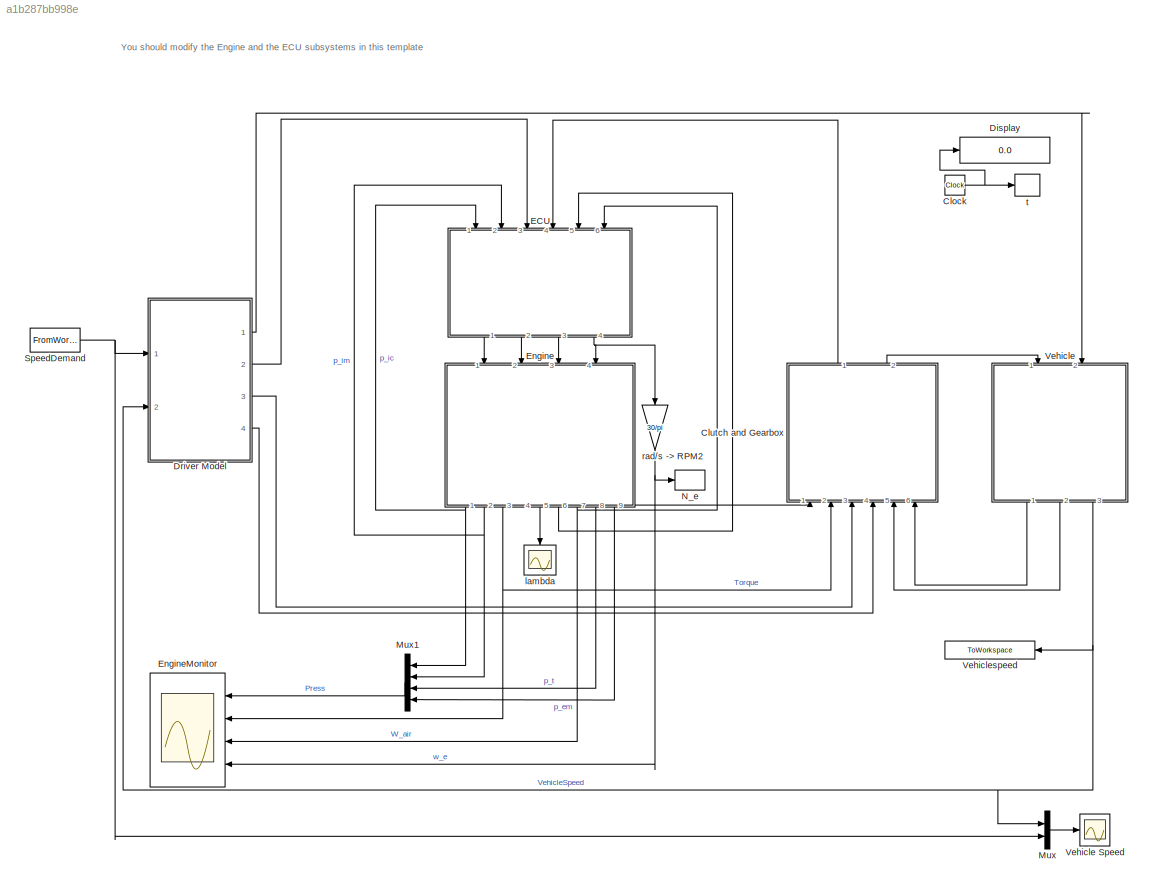
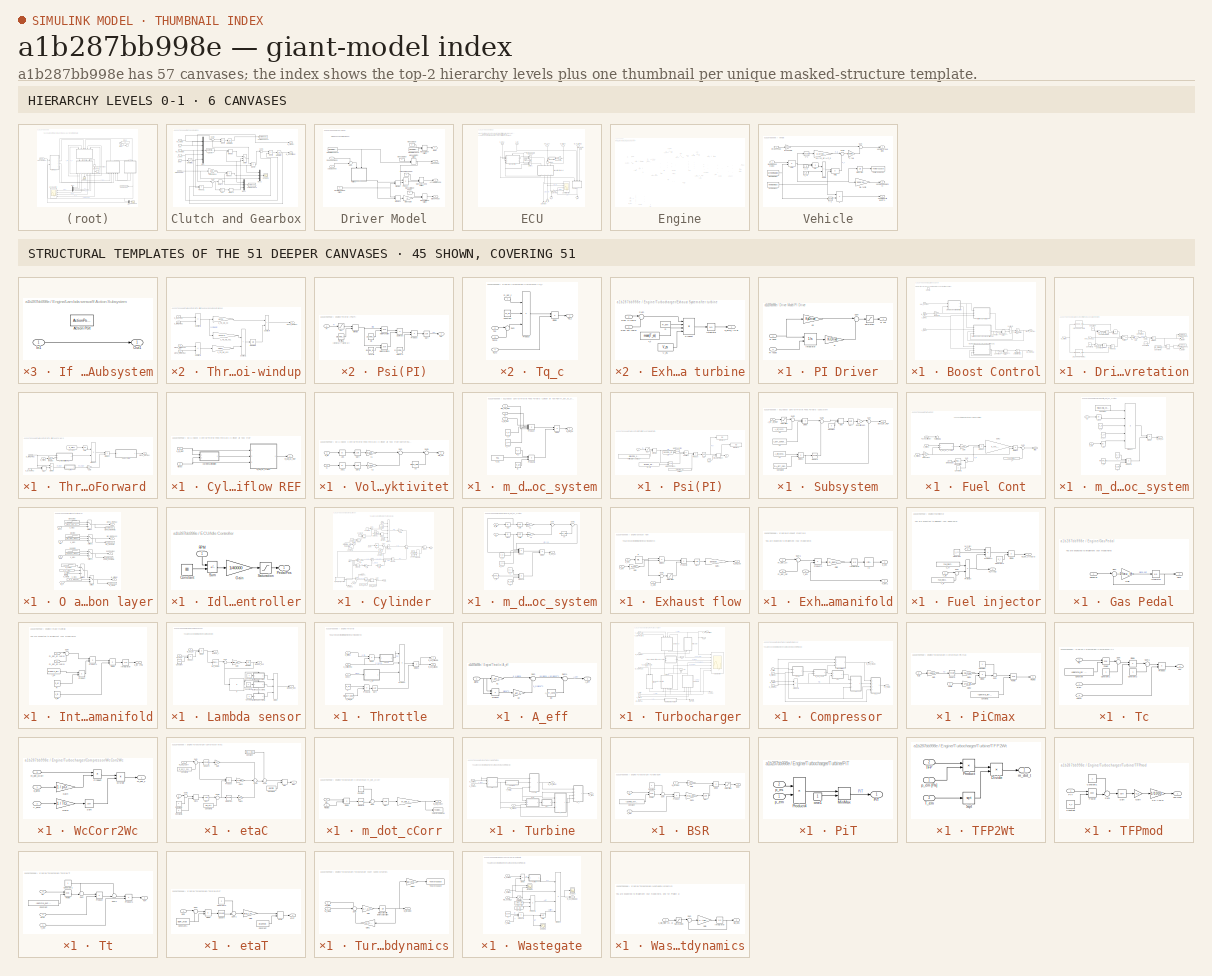
[diagram: thumbnail index - top-2 hierarchy levels (6 canvases) + 45 structural-template representatives of the remaining 51 canvases]
MODEL slx_a1b287bb998e
KIND model
CONFIG AbsTol = 1e-6
CONFIG EnableMultiTasking = on
CONFIG FixedStep = auto
CONFIG MaxStep = 0.4
CONFIG MinStep = auto
CONFIG RelTol = 1e-6
CONFIG SampleTimeConstraint = Unconstrained
CONFIG Solver = ode23tb
CONFIG SolverName = ode23tb
CONFIG StartTime = 0
CONFIG StopTime = 600
BLOCK [Clock] Clock
BLOCK [SubSystem] Clutch and Gearbox
  NameLocation = left
  Ports = [6, 2]
  RequestExecContextInheritance = off
BLOCK [Abs] Clutch and Gearbox/Abs
BLOCK [Fcn] Clutch and Gearbox/Calc Mc
  Expr = (u(1)*u(4)/(u(5)^2) + u(2)*u(3)/u(5)) / (u(2) + u(4)/(u(5)^2))
BLOCK [Inport] Clutch and Gearbox/Clutch Pedal
  Port = 3
BLOCK [Gain] Clutch and Gearbox/Friction torque
  Gain = 500
  OutDataTypeStr = Inherit: Same as input
  ParamDataTypeStr = Inherit: Same as input
  SaturateOnIntegerOverflow = on
BLOCK [Inport] Clutch and Gearbox/Gear
  Port = 4
BLOCK [Lookup] Clutch and Gearbox/Gear ratio1
  InputValues = [0:5]
  Table = [30 16 7.5 4.5 3.2 2.5]
BLOCK [Integrator] Clutch and Gearbox/Integrator
  Ports = [1, 1]
BLOCK [Integrator] Clutch and Gearbox/Integrator1
  InitialCondition = 100
  LimitOutput = on
  LowerSaturationLimit = 100
  Ports = [1, 1]
BLOCK [Inport] Clutch and Gearbox/J_e
BLOCK [Inport] Clutch and Gearbox/J_veh
  Port = 6
BLOCK [MinMax] Clutch and Gearbox/MinMax
  InputSameDT = on
  Inputs = 2
  Ports = [2, 1]
  SaturateOnIntegerOverflow = on
BLOCK [Mux] Clutch and Gearbox/Mux
  DisplayOption = bar
  Inputs = 5
  Ports = [5, 1]
BLOCK [Mux] Clutch and Gearbox/Mux1
  DisplayOption = bar
  Inputs = 3
  Ports = [3, 1]
BLOCK [Mux] Clutch and Gearbox/Mux2
  DisplayOption = bar
  Inputs = 3
  Ports = [3, 1]
BLOCK [Product] Clutch and Gearbox/Product
  InputSameDT = on
  OutDataTypeStr = Inherit: Same as first input
  Ports = [2, 1]
  SaturateOnIntegerOverflow = on
BLOCK [Product] Clutch and Gearbox/Product1
  InputSameDT = on
  OutDataTypeStr = Inherit: Same as first input
  Ports = [2, 1]
  SaturateOnIntegerOverflow = on
BLOCK [Relay] Clutch and Gearbox/Relay1
  OffOutputValue = 1
  OffSwitchValue = 1e-3
  OnOutputValue = 0
  OnSwitchValue = 10
BLOCK [Relay] Clutch and Gearbox/Relay2
  OffOutputValue = -1
  OffSwitchValue = -1e-1
  OnSwitchValue = 1e-1
BLOCK [Scope] Clutch and Gearbox/Scope3
  Floating = off
  NumInputPorts = 1
  Ports = [1]
  ScopeSpecificationString = C++SS(StrPVP('Open','off'),StrPVP('TimeRange','3.212851405622473'),StrPVP('TickLabels','OneTimeTick'),StrPVP('ShowLegends','off'),StrPVP('LimitDataPoints','on'),StrPVP('MaxDataPoints','5000'),StrPVP('SaveToWorkspace','off'),StrPVP('SaveName','ScopeData'),StrPVP('YMin','-1.88'),StrPVP('YMax','-1.81'),StrPVP('BlockParamSampleInput','off'),StrPVP('BlockParamSampleTime','-1'),StrPVP('ZoomMode','yonly'...<+589ch>
BLOCK [Sum] Clutch and Gearbox/Sum
  InputSameDT = on
  Inputs = |+-
  OutDataTypeStr = Inherit: Same as first input
  Ports = [2, 1]
  SaturateOnIntegerOverflow = on
BLOCK [Sum] Clutch and Gearbox/Sum1
  InputSameDT = on
  Inputs = |+-
  OutDataTypeStr = Inherit: Same as first input
  Ports = [2, 1]
  SaturateOnIntegerOverflow = on
BLOCK [Sum] Clutch and Gearbox/Sum2
  InputSameDT = on
  Inputs = |+-
  OutDataTypeStr = Inherit: Same as first input
  Ports = [2, 1]
  SaturateOnIntegerOverflow = on
BLOCK [Switch] Clutch and Gearbox/Switch
  Threshold = 0.5
BLOCK [ToWorkspace] Clutch and Gearbox/To Workspace
  MaxDataPoints = inf
  Ports = [1]
  SampleTime = -1
  SaveFormat = Structure With Time
  VariableName = C
BLOCK [ToWorkspace] Clutch and Gearbox/To Workspace1
  MaxDataPoints = inf
  Ports = [1]
  SampleTime = -1
  SaveFormat = Structure With Time
  VariableName = EngineSpeed
BLOCK [Inport] Clutch and Gearbox/Tq_e [Nm]
  Port = 2
BLOCK [Inport] Clutch and Gearbox/Tq_veh [Nm]
  Port = 5
BLOCK [Product] Clutch and Gearbox/w dot3
  InputSameDT = on
  Inputs = **
  OutDataTypeStr = Inherit: Same as first input
  Ports = [2, 1]
  SaturateOnIntegerOverflow = on
BLOCK [Product] Clutch and Gearbox/w dot4
  InputSameDT = on
  Inputs = */
  OutDataTypeStr = Inherit: Same as first input
  Ports = [2, 1]
  SaturateOnIntegerOverflow = on
BLOCK [Product] Clutch and Gearbox/w dot5
  InputSameDT = on
  Inputs = */
  OutDataTypeStr = Inherit: Same as first input
  Ports = [2, 1]
  SaturateOnIntegerOverflow = on
BLOCK [Outport] Clutch and Gearbox/w_e [rad//s]
BLOCK [Outport] Clutch and Gearbox/w_wheel [rad//s]
  Port = 2
BLOCK [Display] Display
  Decimation = 1
  NameLocation = top
  Ports = [1]
BLOCK [SubSystem] Driver Model
  Ports = [2, 4]
  RequestExecContextInheritance = off
BLOCK [Outport] Driver Model/Accelerator Pedal
  Port = 2
BLOCK [Inport] Driver Model/Actual speed
  Port = 2
BLOCK [Gain] Driver Model/Brake Gain
  Gain = -1
  OutDataTypeStr = Inherit: Same as input
  ParamDataTypeStr = Inherit: Same as input
  SaturateOnIntegerOverflow = on
BLOCK [Outport] Driver Model/Brake Pedal
BLOCK [Outport] Driver Model/Clutch Pedal
  Port = 3
BLOCK [FromWorkspace] Driver Model/From Workspace
  VariableName = Gear
  ZeroCross = off
BLOCK [FromWorkspace] Driver Model/From Workspace1
  OutputAfterFinalValue = Holding final value
  VariableName = Clutch
  ZeroCross = off
BLOCK [Constant] Driver Model/Gas//Brake Mode Switch
  NameLocation = top
  Value = 0
BLOCK [Outport] Driver Model/Gear
  Port = 4
BLOCK [Constant] Driver Model/Manual Brake Pedal
  NameLocation = top
  Value = 0
BLOCK [ManualSwitch] Driver Model/Manual Brake Switch
  CurrentSetting = 0
  NameLocation = top
BLOCK [Constant] Driver Model/Manual Clutch
  NameLocation = top
BLOCK [ManualSwitch] Driver Model/Manual Clutch Switch
  CurrentSetting = 0
  NameLocation = top
BLOCK [Constant] Driver Model/Manual Gas Pedal
  NameLocation = top
BLOCK [Constant] Driver Model/Manual Gear
  NameLocation = top
  Value = 3
BLOCK [ManualSwitch] Driver Model/Manual Gear Switch
  CurrentSetting = 0
  NameLocation = top
BLOCK [ManualSwitch] Driver Model/Manual acc ped Switch
  CurrentSetting = 0
  NameLocation = top
BLOCK [MinMax] Driver Model/MinMax
  Function = max
  InputSameDT = on
  Inputs = 2
  Ports = [2, 1]
  SaturateOnIntegerOverflow = on
BLOCK [MinMax] Driver Model/MinMax1
  InputSameDT = on
  Inputs = 2
  Ports = [2, 1]
  SaturateOnIntegerOverflow = on
BLOCK [SubSystem] Driver Model/PI Driver
  NameLocation = left
  Ports = [2, 1]
  RequestExecContextInheritance = off
BLOCK [Integrator] Driver Model/PI Driver/Integrator
  ExternalReset = either
  LimitOutput = on
  LowerSaturationLimit = 0
  Ports = [2, 1]
  UpperSaturationLimit = 30
BLOCK [Gain] Driver Model/PI Driver/Ki
  Gain = KiDriver
  OutDataTypeStr = Inherit: Same as input
  ParamDataTypeStr = Inherit: Same as input
  SaturateOnIntegerOverflow = on
BLOCK [Gain] Driver Model/PI Driver/Kp
  Gain = KpDriver
  OutDataTypeStr = Inherit: Same as input
  ParamDataTypeStr = Inherit: Same as input
  SaturateOnIntegerOverflow = on
BLOCK [Inport] Driver Model/PI Driver/PI input
BLOCK [Outport] Driver Model/PI Driver/PI out
BLOCK [Inport] Driver Model/PI Driver/PI reset
  Port = 2
BLOCK [Saturate] Driver Model/PI Driver/Saturation
  LowerLimit = -1
  UpperLimit = 1
BLOCK [Sum] Driver Model/PI Driver/Sum
  InputSameDT = on
  Inputs = |++
  OutDataTypeStr = Inherit: Same as first input
  Ports = [2, 1]
  SaturateOnIntegerOverflow = on
BLOCK [Product] Driver Model/Product
  InputSameDT = on
  OutDataTypeStr = Inherit: Same as first input
  Ports = [2, 1]
  SaturateOnIntegerOverflow = on
BLOCK [Inport] Driver Model/Speed demand
BLOCK [Sum] Driver Model/Sum
  InputSameDT = on
  Inputs = +-
  OutDataTypeStr = Inherit: Same as first input
  Ports = [2, 1]
  SaturateOnIntegerOverflow = on
BLOCK [SubSystem] ECU
  NameLocation = left
  Ports = [6, 4]
  RequestExecContextInheritance = off
BLOCK [SubSystem] ECU/Boost Control
  Ports = [4, 2, 1]
  RequestExecContextInheritance = off
BLOCK [Constant] ECU/Boost Control/Constant
  Value = 0
BLOCK [Constant] ECU/Boost Control/Constant1
BLOCK [SubSystem] ECU/Boost Control/Driver gas pedal interpretation
  Ports = [2, 2]
  RequestExecContextInheritance = off
BLOCK [Lookup_n-D] ECU/Boost Control/Driver gas pedal interpretation/1-D Lookup Table
  BreakpointsForDimension1 = TqEvsNe.Ne
  InternalRulePriority = Speed
  NumberOfTableDimensions = 1
  Ports = [1, 1]
  RndMeth = Simplest
  Table = TqEvsNe.TqMAX
BLOCK [Lookup_n-D] ECU/Boost Control/Driver gas pedal interpretation/1-D Lookup Table1
  BreakpointsForDimension1 = TqEvsNe.Ne
  InternalRulePriority = Speed
  NumberOfTableDimensions = 1
  Ports = [1, 1]
  RndMeth = Simplest
  Table = TqEvsNe.TqMIN
BLOCK [Sum] ECU/Boost Control/Driver gas pedal interpretation/Add3
  IconShape = rectangular
  Ports = [2, 1]
BLOCK [Constant] ECU/Boost Control/Driver gas pedal interpretation/Constant
  Value = 0.1
BLOCK [Constant] ECU/Boost Control/Driver gas pedal interpretation/Constant1
  Value = 0.9
BLOCK [Constant] ECU/Boost Control/Driver gas pedal interpretation/Constant2
  Value = 0.1
BLOCK [Constant] ECU/Boost Control/Driver gas pedal interpretation/Constant3
  Value = 0.1
BLOCK [Constant] ECU/Boost Control/Driver gas pedal interpretation/Constant4
  Value = C_P0
BLOCK [Constant] ECU/Boost Control/Driver gas pedal interpretation/Constant5
  Value = C_P1
BLOCK [Constant] ECU/Boost Control/Driver gas pedal interpretation/Constant6
  Value = dP_thrREF
BLOCK [Product] ECU/Boost Control/Driver gas pedal interpretation/Divide
  Inputs = */
  Ports = [2, 1]
BLOCK [Product] ECU/Boost Control/Driver gas pedal interpretation/Divide1
  Inputs = */
  Ports = [2, 1]
BLOCK [Product] ECU/Boost Control/Driver gas pedal interpretation/Divide2
  Inputs = */
  Ports = [2, 1]
BLOCK [Gain] ECU/Boost Control/Driver gas pedal interpretation/Gain
  Gain = 2*pi*n_r/V_D
BLOCK [Inport] ECU/Boost Control/Driver gas pedal interpretation/N_e [rpm]
  Port = 2
BLOCK [Product] ECU/Boost Control/Driver gas pedal interpretation/Product
  Ports = [2, 1]
BLOCK [Product] ECU/Boost Control/Driver gas pedal interpretation/Product1
  Ports = [2, 1]
BLOCK [Sum] ECU/Boost Control/Driver gas pedal interpretation/Sum
  Inputs = -+|
  Ports = [2, 1]
BLOCK [Sum] ECU/Boost Control/Driver gas pedal interpretation/Sum1
  Inputs = -+|
  Ports = [2, 1]
BLOCK [Sum] ECU/Boost Control/Driver gas pedal interpretation/Sum2
  Inputs = ++|
  Ports = [2, 1]
BLOCK [Switch] ECU/Boost Control/Driver gas pedal interpretation/Switch
  InputSameDT = off
  SaturateOnIntegerOverflow = off
  Threshold = 0.1
BLOCK [ToWorkspace] ECU/Boost Control/Driver gas pedal interpretation/To Workspace
  MaxDataPoints = inf
  Ports = [1]
  SampleTime = -1
  SaveFormat = Structure With Time
  VariableName = p_im_ref
BLOCK [ToWorkspace] ECU/Boost Control/Driver gas pedal interpretation/To Workspace1
  MaxDataPoints = inf
  Ports = [1]
  SampleTime = -1
  SaveFormat = Structure With Time
  VariableName = p_ic_ref
BLOCK [Outport] ECU/Boost Control/Driver gas pedal interpretation/p_ic_ref
  Port = 2
BLOCK [Outport] ECU/Boost Control/Driver gas pedal interpretation/p_im_ref
BLOCK [Inport] ECU/Boost Control/Driver gas pedal interpretation/ped_pos [0..1]
BLOCK [EnablePort] ECU/Boost Control/Enable
  Ports = []
BLOCK [Sum] ECU/Boost Control/Subtract1
  IconShape = rectangular
  Ports = [2, 1]
BLOCK [SubSystem] ECU/Boost Control/Throttle Feed Forward 
  NameLocation = top
  Ports = [3, 1]
  RequestExecContextInheritance = off
BLOCK [Constant] ECU/Boost Control/Throttle Feed Forward /Constant
  Value = R_air*T01
BLOCK [SubSystem] ECU/Boost Control/Throttle Feed Forward /Cylinder air flow REF
  Ports = [2, 1]
  RequestExecContextInheritance = off
BLOCK [Inport] ECU/Boost Control/Throttle Feed Forward /Cylinder air flow REF/N [rps]
  Port = 2
BLOCK [SubSystem] ECU/Boost Control/Throttle Feed Forward /Cylinder air flow REF/Volymetrisk effektivitet
  Ports = [2, 1]
  RequestExecContextInheritance = off
BLOCK [Inport] ECU/Boost Control/Throttle Feed Forward /Cylinder air flow REF/Volymetrisk effektivitet/ p_im
BLOCK [Abs] ECU/Boost Control/Throttle Feed Forward /Cylinder air flow REF/Volymetrisk effektivitet/Abs
  SaturateOnIntegerOverflow = off
BLOCK [Abs] ECU/Boost Control/Throttle Feed Forward /Cylinder air flow REF/Volymetrisk effektivitet/Abs1
  SaturateOnIntegerOverflow = off
BLOCK [Inport] ECU/Boost Control/Throttle Feed Forward /Cylinder air flow REF/Volymetrisk effektivitet/N
  Port = 2
BLOCK [Sqrt] ECU/Boost Control/Throttle Feed Forward /Cylinder air flow REF/Volymetrisk effektivitet/Sqrt
BLOCK [Sqrt] ECU/Boost Control/Throttle Feed Forward /Cylinder air flow REF/Volymetrisk effektivitet/Sqrt1
BLOCK [Sum] ECU/Boost Control/Throttle Feed Forward /Cylinder air flow REF/Volymetrisk effektivitet/Sum
  Inputs = |++
  Ports = [2, 1]
BLOCK [Sum] ECU/Boost Control/Throttle Feed Forward /Cylinder air flow REF/Volymetrisk effektivitet/Sum1
  Inputs = |++
  Ports = [2, 1]
BLOCK [Constant] ECU/Boost Control/Throttle Feed Forward /Cylinder air flow REF/Volymetrisk effektivitet/c0
  Value = Intake_mainfold_const(1)
BLOCK [Gain] ECU/Boost Control/Throttle Feed Forward /Cylinder air flow REF/Volymetrisk effektivitet/c1
  Gain = Intake_mainfold_const(2)
BLOCK [Gain] ECU/Boost Control/Throttle Feed Forward /Cylinder air flow REF/Volymetrisk effektivitet/c2
  Gain = Intake_mainfold_const(3)
BLOCK [Outport] ECU/Boost Control/Throttle Feed Forward /Cylinder air flow REF/Volymetrisk effektivitet/eta_vol
BLOCK [Outport] ECU/Boost Control/Throttle Feed Forward /Cylinder air flow REF/m_dot_ac_REF
BLOCK [SubSystem] ECU/Boost Control/Throttle Feed Forward /Cylinder air flow REF/m_dot_ac_system
  Ports = [3, 1]
  RequestExecContextInheritance = off
BLOCK [Product] ECU/Boost Control/Throttle Feed Forward /Cylinder air flow REF/m_dot_ac_system/Divide
  Inputs = */
  Ports = [2, 1]
BLOCK [Inport] ECU/Boost Control/Throttle Feed Forward /Cylinder air flow REF/m_dot_ac_system/Eta_vol_REF
  Port = 2
BLOCK [Inport] ECU/Boost Control/Throttle Feed Forward /Cylinder air flow REF/m_dot_ac_system/N
  Port = 3
BLOCK [Product] ECU/Boost Control/Throttle Feed Forward /Cylinder air flow REF/m_dot_ac_system/Product
  Inputs = 5
  Ports = [5, 1]
BLOCK [Product] ECU/Boost Control/Throttle Feed Forward /Cylinder air flow REF/m_dot_ac_system/Product1
  Inputs = 3
  Ports = [3, 1]
BLOCK [Constant] ECU/Boost Control/Throttle Feed Forward /Cylinder air flow REF/m_dot_ac_system/R
  Value = R_air
BLOCK [Constant] ECU/Boost Control/Throttle Feed Forward /Cylinder air flow REF/m_dot_ac_system/T_01
  Value = T01
BLOCK [Constant] ECU/Boost Control/Throttle Feed Forward /Cylinder air flow REF/m_dot_ac_system/V_d
  Value = V_d
BLOCK [Outport] ECU/Boost Control/Throttle Feed Forward /Cylinder air flow REF/m_dot_ac_system/m_dot_ac
BLOCK [Constant] ECU/Boost Control/Throttle Feed Forward /Cylinder air flow REF/m_dot_ac_system/n_cyl
  Value = n_cyl
BLOCK [Constant] ECU/Boost Control/Throttle Feed Forward /Cylinder air flow REF/m_dot_ac_system/n_r
  Value = n_r
BLOCK [Inport] ECU/Boost Control/Throttle Feed Forward /Cylinder air flow REF/m_dot_ac_system/p_im_REF
BLOCK [Inport] ECU/Boost Control/Throttle Feed Forward /Cylinder air flow REF/p_im_REF
BLOCK [Product] ECU/Boost Control/Throttle Feed Forward /Divide
  Inputs = */
  Ports = [2, 1]
BLOCK [Product] ECU/Boost Control/Throttle Feed Forward /Divide1
  Inputs = */
  Ports = [2, 1]
BLOCK [Gain] ECU/Boost Control/Throttle Feed Forward /Gain
  Gain = p01
BLOCK [MinMax] ECU/Boost Control/Throttle Feed Forward /Max
  Function = max
  Inputs = 2
  Ports = [2, 1]
BLOCK [Inport] ECU/Boost Control/Throttle Feed Forward /N_e [rpm]
  Port = 2
BLOCK [Product] ECU/Boost Control/Throttle Feed Forward /Product
  Ports = [2, 1]
BLOCK [SubSystem] ECU/Boost Control/Throttle Feed Forward /Psi(PI)
  Ports = [1, 1]
  RequestExecContextInheritance = off
BLOCK [Constant] ECU/Boost Control/Throttle Feed Forward /Psi(PI)/(g+1)//g
  Value = (gamma_air+1)/gamma_air
BLOCK [Constant] ECU/Boost Control/Throttle Feed Forward /Psi(PI)/2//g
  Value = 2/gamma_air
BLOCK [Constant] ECU/Boost Control/Throttle Feed Forward /Psi(PI)/2g//(g-1)
  Value = (2*gamma_air)/(gamma_air-1)
BLOCK [Display] ECU/Boost Control/Throttle Feed Forward /Psi(PI)/Display3
  Decimation = 1
  Ports = [1]
BLOCK [Display] ECU/Boost Control/Throttle Feed Forward /Psi(PI)/Display4
  Decimation = 1
  Ports = [1]
BLOCK [MinMax] ECU/Boost Control/Throttle Feed Forward /Psi(PI)/DivZeroProtect
  Function = max
  Inputs = 2
  Ports = [2, 1]
BLOCK [Math] ECU/Boost Control/Throttle Feed Forward /Psi(PI)/Math Function
  Operator = pow
  Ports = [2, 1]
  SignedPower = on
BLOCK [Math] ECU/Boost Control/Throttle Feed Forward /Psi(PI)/Math Function1
  NameLocation = top
  Operator = pow
  Ports = [2, 1]
  SignedPower = on
BLOCK [MinMax] ECU/Boost Control/Throttle Feed Forward /Psi(PI)/MinMax
  Function = max
  Inputs = 2
  Ports = [2, 1]
BLOCK [Inport] ECU/Boost Control/Throttle Feed Forward /Psi(PI)/PI
BLOCK [Constant] ECU/Boost Control/Throttle Feed Forward /Psi(PI)/PI critical (2//(g+1))^(g//(g-1))
  Value = (2/(gamma_air+1))^(gamma_air/(gamma_air-1))
BLOCK [Product] ECU/Boost Control/Throttle Feed Forward /Psi(PI)/Product
  Ports = [2, 1]
  RndMeth = Zero
BLOCK [Outport] ECU/Boost Control/Throttle Feed Forward /Psi(PI)/Psi
BLOCK [Sqrt] ECU/Boost Control/Throttle Feed Forward /Psi(PI)/Sqrt
  AlgorithmType = Newton-Raphson
BLOCK [Sum] ECU/Boost Control/Throttle Feed Forward /Psi(PI)/Subtract
  IconShape = rectangular
  Inputs = +-
  Ports = [2, 1]
BLOCK [Saturate] ECU/Boost Control/Throttle Feed Forward /Psi(PI)/[0,1]
  LowerLimit = 0
  UpperLimit = 1
BLOCK [Constant] ECU/Boost Control/Throttle Feed Forward /Psi(PI)/eps
  Value = eps
BLOCK [Sqrt] ECU/Boost Control/Throttle Feed Forward /Sqrt
BLOCK [SubSystem] ECU/Boost Control/Throttle Feed Forward /Subsystem
  Ports = [1, 1]
  RequestExecContextInheritance = off
BLOCK [Inport] ECU/Boost Control/Throttle Feed Forward /Subsystem/A_thr_eff_REF
BLOCK [Constant] ECU/Boost Control/Throttle Feed Forward /Subsystem/Constant
  Value = 0
BLOCK [Constant] ECU/Boost Control/Throttle Feed Forward /Subsystem/Constant2
  Value = 2*A_eff_const(3)
BLOCK [Product] ECU/Boost Control/Throttle Feed Forward /Subsystem/Divide
  Inputs = */
  Ports = [2, 1]
BLOCK [Product] ECU/Boost Control/Throttle Feed Forward /Subsystem/Divide1
  Inputs = */
  Ports = [2, 1]
BLOCK [Gain] ECU/Boost Control/Throttle Feed Forward /Subsystem/Ev byt tecken
BLOCK [MinMax] ECU/Boost Control/Throttle Feed Forward /Subsystem/Max
  Function = max
  Inputs = 2
  Ports = [2, 1]
BLOCK [Saturate] ECU/Boost Control/Throttle Feed Forward /Subsystem/Saturation
  LowerLimit = 0
  UpperLimit = A_max_wg
BLOCK [Sqrt] ECU/Boost Control/Throttle Feed Forward /Subsystem/Sqrt
BLOCK [Math] ECU/Boost Control/Throttle Feed Forward /Subsystem/Square
  Operator = square
  Ports = [1, 1]
BLOCK [Sum] ECU/Boost Control/Throttle Feed Forward /Subsystem/Sum
  Inputs = |+-
  Ports = [2, 1]
BLOCK [Sum] ECU/Boost Control/Throttle Feed Forward /Subsystem/Sum2
  Inputs = |+-
  Ports = [2, 1]
BLOCK [Sum] ECU/Boost Control/Throttle Feed Forward /Subsystem/Sum3
  Inputs = |++
  Ports = [2, 1]
BLOCK [Constant] ECU/Boost Control/Throttle Feed Forward /Subsystem/a0
  Value = A_eff_const(1)
BLOCK [Constant] ECU/Boost Control/Throttle Feed Forward /Subsystem/a1
  Value = A_eff_const(2)
BLOCK [Constant] ECU/Boost Control/Throttle Feed Forward /Subsystem/a2
  Value = A_eff_const(3)
BLOCK [Outport] ECU/Boost Control/Throttle Feed Forward /Subsystem/alpha_thr_REF
BLOCK [Outport] ECU/Boost Control/Throttle Feed Forward /alpha_thrFF [0..1]
BLOCK [Inport] ECU/Boost Control/Throttle Feed Forward /p_icACT [Pa]
  Port = 3
BLOCK [Inport] ECU/Boost Control/Throttle Feed Forward /p_imREF [Pa]
BLOCK [Gain] ECU/Boost Control/Throttle Feed Forward /rpm2rps
  Gain = 1/60
  OutDataTypeStr = Inherit: Same as input
  ParamDataTypeStr = Inherit: Same as input
  SaturateOnIntegerOverflow = on
BLOCK [SubSystem] ECU/Boost Control/Throttle Feedback including anti-windup
  NameLocation = top
  Ports = [4, 1]
  RequestExecContextInheritance = off
BLOCK [Integrator] ECU/Boost Control/Throttle Feedback including anti-windup/Integrator1
  LowerSaturationLimit = -5
  NameLocation = top
  Ports = [1, 1]
  UpperSaturationLimit = 5
BLOCK [Sum] ECU/Boost Control/Throttle Feedback including anti-windup/Subtract1
  IconShape = rectangular
  Ports = [2, 1]
BLOCK [Sum] ECU/Boost Control/Throttle Feedback including anti-windup/Subtract2
  IconShape = rectangular
  Inputs = +-
  Ports = [2, 1]
BLOCK [Sum] ECU/Boost Control/Throttle Feedback including anti-windup/Subtract3
  IconShape = rectangular
  Inputs = -+
  Ports = [2, 1]
BLOCK [Sum] ECU/Boost Control/Throttle Feedback including anti-windup/Subtract4
  IconShape = rectangular
  Ports = [2, 1]
BLOCK [Outport] ECU/Boost Control/Throttle Feedback including anti-windup/alpha_thrFB [0..1]
BLOCK [Inport] ECU/Boost Control/Throttle Feedback including anti-windup/alpha_thrREF [0..1]
  Port = 4
BLOCK [Inport] ECU/Boost Control/Throttle Feedback including anti-windup/alpha_thrREFsat [0..1]
  Port = 3
BLOCK [Inport] ECU/Boost Control/Throttle Feedback including anti-windup/p_imACT [Pa]
  Port = 2
BLOCK [Inport] ECU/Boost Control/Throttle Feedback including anti-windup/p_imREF [Pa]
BLOCK [Gain] ECU/Boost Control/Throttle Feedback including anti-windup/u_FB_wg_Kp
  Gain = KpThr
BLOCK [Gain] ECU/Boost Control/Throttle Feedback including anti-windup/u_FB_wg_Kp1
  Gain = KpThr/TiThr
BLOCK [Gain] ECU/Boost Control/Throttle Feedback including anti-windup/u_FB_wg_Kp2
  Gain = 1/TiThr
BLOCK [Saturate] ECU/Boost Control/Throttle saturation [0..1]
  LowerLimit = 0
  UpperLimit = 1
BLOCK [SubSystem] ECU/Boost Control/Waste-gate Feedback including anti-windup1
  NameLocation = top
  Ports = [4, 1]
  RequestExecContextInheritance = off
BLOCK [Integrator] ECU/Boost Control/Waste-gate Feedback including anti-windup1/Integrator1
  InitialCondition = 0.3
  NameLocation = top
  Ports = [1, 1]
BLOCK [Sum] ECU/Boost Control/Waste-gate Feedback including anti-windup1/Subtract1
  IconShape = rectangular
  Ports = [2, 1]
BLOCK [Sum] ECU/Boost Control/Waste-gate Feedback including anti-windup1/Subtract2
  IconShape = rectangular
  Inputs = +-
  Ports = [2, 1]
BLOCK [Sum] ECU/Boost Control/Waste-gate Feedback including anti-windup1/Subtract3
  IconShape = rectangular
  Inputs = +-
  Ports = [2, 1]
BLOCK [Sum] ECU/Boost Control/Waste-gate Feedback including anti-windup1/Subtract4
  IconShape = rectangular
  Ports = [2, 1]
BLOCK [Gain] ECU/Boost Control/Waste-gate Feedback including anti-windup1/Tracking
  Gain = 1/TiWg
BLOCK [Inport] ECU/Boost Control/Waste-gate Feedback including anti-windup1/p_icACT [Pa]
  NameLocation = top
  Port = 2
BLOCK [Inport] ECU/Boost Control/Waste-gate Feedback including anti-windup1/p_icREF [Pa]
  NameLocation = top
BLOCK [Gain] ECU/Boost Control/Waste-gate Feedback including anti-windup1/u_FB_wg_Integral
  Gain = KpWg/TiWg
BLOCK [Gain] ECU/Boost Control/Waste-gate Feedback including anti-windup1/u_FB_wg_Proportional
  Gain = KpWg
BLOCK [Outport] ECU/Boost Control/Waste-gate Feedback including anti-windup1/wgFB [0..1]
BLOCK [Inport] ECU/Boost Control/Waste-gate Feedback including anti-windup1/wgREF [0..1]
  Port = 4
BLOCK [Inport] ECU/Boost Control/Waste-gate Feedback including anti-windup1/wgREFsat [0..1]
  Port = 3
BLOCK [Saturate] ECU/Boost Control/Waste-gate saturation [0..1]
  LowerLimit = 0
  UpperLimit = 1
BLOCK [Outport] ECU/Boost Control/alpha_REF [0..1]
  Port = 2
BLOCK [Inport] ECU/Boost Control/p_ic [Pa]
  Port = 2
BLOCK [Inport] ECU/Boost Control/p_im [Pa]
  Port = 3
BLOCK [Inport] ECU/Boost Control/ped_pos [0..1]
  NameLocation = top
  Port = 4
BLOCK [Gain] ECU/Boost Control/rad//s -> rpm
  Gain = 30/pi
  NameLocation = top
  OutDataTypeStr = Inherit: Same as input
  ParamDataTypeStr = Inherit: Same as input
  SaturateOnIntegerOverflow = on
BLOCK [ManualSwitch] ECU/Boost Control/thr_feedback_switch
BLOCK [Inport] ECU/Boost Control/w_e [rad//s] 
BLOCK [Outport] ECU/Boost Control/wg_REF [0..1]
BLOCK [ManualSwitch] ECU/Boost Control/wg_feedback_switch
BLOCK [Scope] ECU/Control  monitor
  Floating = off
  NumInputPorts = 4
  Ports = [4]
  ScopeSpecificationString = C++SS(StrPVP('Open','off'),StrPVP('TimeRange','65              '),StrPVP('TickLabels','OneTimeTick'),StrPVP('ShowLegends','off'),StrPVP('LimitDataPoints','off'),StrPVP('MaxDataPoints','3000'),StrPVP('SaveToWorkspace','off'),StrPVP('SaveName','ScopeData17'),StrPVP('YMin','0~-25~0~0'),StrPVP('YMax','1.2e+06~250~0.175~12000'),StrPVP('BlockParamSampleInput','off'),StrPVP('BlockParamSampleTime','-1'),S...<+702ch>
BLOCK [SubSystem] ECU/Fuel Cont
  NameLocation = left
  Ports = [4, 1]
  RequestExecContextInheritance = off
BLOCK [Constant] ECU/Fuel Cont/Constant1
BLOCK [Product] ECU/Fuel Cont/Divide1
  Inputs = */
  Ports = [2, 1]
BLOCK [Gain] ECU/Fuel Cont/Gain
  Gain = 1/AFs
BLOCK [Gain] ECU/Fuel Cont/Gain2
  Gain = n_r/(n_cyl*Fuel_injection_const(1))
BLOCK [Reference] ECU/Fuel Cont/PID Controller  REF=simulink/Continuous/PID Controller
  Ports = [1, 1]
  SourceBlock = simulink/Continuous/PID Controller
  SourceProductBaseCode = SL
  SourceType = PID 1dof
BLOCK [Product] ECU/Fuel Cont/Product
  Ports = [2, 1]
BLOCK [Sum] ECU/Fuel Cont/Sum
  Inputs = |++
  Ports = [2, 1]
BLOCK [Sum] ECU/Fuel Cont/Sum1
  Inputs = |++
  Ports = [2, 1]
BLOCK [Terminator] ECU/Fuel Cont/Terminator1
BLOCK [Inport] ECU/Fuel Cont/lambdaDisc
  Port = 4
BLOCK [SubSystem] ECU/Fuel Cont/m_dot_ac_system
  Ports = [2, 1]
  RequestExecContextInheritance = off
BLOCK [Abs] ECU/Fuel Cont/m_dot_ac_system/Abs
  SaturateOnIntegerOverflow = off
BLOCK [Abs] ECU/Fuel Cont/m_dot_ac_system/Abs1
  SaturateOnIntegerOverflow = off
BLOCK [Constant] ECU/Fuel Cont/m_dot_ac_system/Constant
  Value = mean(eta_vol_model)
BLOCK [Product] ECU/Fuel Cont/m_dot_ac_system/Divide
  Inputs = */
  Ports = [2, 1]
BLOCK [Inport] ECU/Fuel Cont/m_dot_ac_system/N
  Port = 2
BLOCK [Product] ECU/Fuel Cont/m_dot_ac_system/Product
  Inputs = 5
  Ports = [5, 1]
BLOCK [Product] ECU/Fuel Cont/m_dot_ac_system/Product1
  Inputs = 3
  Ports = [3, 1]
BLOCK [Constant] ECU/Fuel Cont/m_dot_ac_system/R
  Value = R_air
BLOCK [Constant] ECU/Fuel Cont/m_dot_ac_system/T_im
  Value = mean(T_im)
BLOCK [Constant] ECU/Fuel Cont/m_dot_ac_system/V_d
  Value = V_d
BLOCK [Outport] ECU/Fuel Cont/m_dot_ac_system/m_dot_ac
BLOCK [Constant] ECU/Fuel Cont/m_dot_ac_system/n_cyl
  Value = n_cyl
BLOCK [Constant] ECU/Fuel Cont/m_dot_ac_system/n_r
  Value = n_r
BLOCK [Inport] ECU/Fuel Cont/m_dot_ac_system/p_im
BLOCK [Inport] ECU/Fuel Cont/m_dot_air [kg//s]
  Port = 3
BLOCK [Inport] ECU/Fuel Cont/p_im [Pa]
  Port = 2
BLOCK [Gain] ECU/Fuel Cont/rad//s -> RPS
  Gain = 1/2/pi
  OutDataTypeStr = Inherit: Same as input
  ParamDataTypeStr = Inherit: Same as input
  SaturateOnIntegerOverflow = on
BLOCK [Constant] ECU/Fuel Cont/t_0
  Value = Fuel_injection_const(2)
BLOCK [Outport] ECU/Fuel Cont/tinj [s]
BLOCK [Inport] ECU/Fuel Cont/w_e [rad//s]
BLOCK [Ground] ECU/Ground
BLOCK [SubSystem] ECU/I//O abstraction layer
  NameLocation = right
  Ports = [4, 4]
  RequestExecContextInheritance = off
BLOCK [Reference] ECU/I//O abstraction layer/N_e ramp  REF=simulink/Sources/Ramp
  Ports = [0, 1]
  SourceBlock = simulink/Sources/Ramp
  SourceProductBaseCode = SL
  SourceType = Ramp
BLOCK [Step] ECU/I//O abstraction layer/N_e step
  After = NEND*pi/30
  Before = NINI*pi/30
  NameLocation = top
  SampleTime = 0
  Time = NeST
BLOCK [ToWorkspace] ECU/I//O abstraction layer/Pedal_Pos to WS
  MaxDataPoints = inf
  Ports = [1]
  SampleTime = -1
  VariableName = Pedal_Pos
BLOCK [Switch] ECU/I//O abstraction layer/Switch
  Criteria = u2 > Threshold
  InputSameDT = off
  SaturateOnIntegerOverflow = off
  Threshold = 0.5
BLOCK [Switch] ECU/I//O abstraction layer/Switch1
  Criteria = u2 > Threshold
  InputSameDT = off
  SaturateOnIntegerOverflow = off
BLOCK [Switch] ECU/I//O abstraction layer/Switch2
  Criteria = u2 > Threshold
  InputSameDT = off
  SaturateOnIntegerOverflow = off
BLOCK [Switch] ECU/I//O abstraction layer/Switch3
  Criteria = u2 > Threshold
  InputSameDT = off
  SaturateOnIntegerOverflow = off
BLOCK [Switch] ECU/I//O abstraction layer/Switch4
  Criteria = u2 > Threshold
  InputSameDT = off
  SaturateOnIntegerOverflow = off
BLOCK [Inport] ECU/I//O abstraction layer/alpha
  NameLocation = top
BLOCK [Step] ECU/I//O abstraction layer/alpha step
  After = alphaEND
  Before = alphaINI
  NameLocation = top
  SampleTime = 0
  Time = alphaST
BLOCK [Outport] ECU/I//O abstraction layer/alpha_REF [0..1]
  NameLocation = top
  Port = 2
BLOCK [ToWorkspace] ECU/I//O abstraction layer/alpha_REF to WS
  MaxDataPoints = inf
  Ports = [1]
  SampleTime = -1
  VariableName = alpha_REF
BLOCK [Inport] ECU/I//O abstraction layer/ped
  NameLocation = top
  Port = 3
BLOCK [Step] ECU/I//O abstraction layer/ped step
  After = pedEND
  Before = pedINI
  NameLocation = top
  SampleTime = 0
  Time = pedST
BLOCK [Outport] ECU/I//O abstraction layer/pedPos [0..1]
  NameLocation = top
BLOCK [Constant] ECU/I//O abstraction layer/u_wg1
  Value = N_e_manual
BLOCK [Constant] ECU/I//O abstraction layer/u_wg2
  Value = alpha_REF_manual
BLOCK [Constant] ECU/I//O abstraction layer/u_wg3
  Value = wg_REF_manual
BLOCK [Constant] ECU/I//O abstraction layer/u_wg4
  Value = pedPos_manual
BLOCK [Constant] ECU/I//O abstraction layer/u_wg5
  Value = N_e_step
BLOCK [Inport] ECU/I//O abstraction layer/w_e
  NameLocation = top
  Port = 4
BLOCK [Outport] ECU/I//O abstraction layer/w_e [rad//s]
  NameLocation = top
  Port = 4
BLOCK [ToWorkspace] ECU/I//O abstraction layer/w_e to WS
  MaxDataPoints = inf
  Ports = [1]
  SampleTime = -1
  VariableName = w_e
BLOCK [Inport] ECU/I//O abstraction layer/wg
  NameLocation = top
  Port = 2
BLOCK [Step] ECU/I//O abstraction layer/wg step
  After = wgEND
  Before = wgINI
  NameLocation = top
  SampleTime = 0
  Time = wgST
BLOCK [Outport] ECU/I//O abstraction layer/wg_REF [0..100]
  NameLocation = top
  Port = 3
BLOCK [ToWorkspace] ECU/I//O abstraction layer/wg_REF to WS
  MaxDataPoints = inf
  Ports = [1]
  SampleTime = -1
  VariableName = wg_REF
BLOCK [SubSystem] ECU/Idle Controller
  Ports = [1, 1]
  RequestExecContextInheritance = off
BLOCK [Constant] ECU/Idle Controller/Constant
  Value = 800
BLOCK [Gain] ECU/Idle Controller/Gain
  Gain = 1/40000
  OutDataTypeStr = Inherit: Same as input
  ParamDataTypeStr = Inherit: Same as input
  SaturateOnIntegerOverflow = on
BLOCK [Outport] ECU/Idle Controller/PedalPos
BLOCK [Inport] ECU/Idle Controller/RPM
  NameLocation = right
BLOCK [Saturate] ECU/Idle Controller/Saturation
  LowerLimit = 0
  UpperLimit = 1
BLOCK [Sum] ECU/Idle Controller/Sum
  IconShape = rectangular
  InputSameDT = on
  Inputs = -+
  OutDataTypeStr = Inherit: Same as first input
  Ports = [2, 1]
  SaturateOnIntegerOverflow = on
BLOCK [MinMax] ECU/MinMax
  Function = max
  InputSameDT = on
  Inputs = 2
  NameLocation = right
  Ports = [2, 1]
  SaturateOnIntegerOverflow = on
BLOCK [Switch] ECU/Switch
  Criteria = u2 > Threshold
  InputSameDT = off
  SaturateOnIntegerOverflow = off
BLOCK [Switch] ECU/Switch1
  Criteria = u2 > Threshold
  InputSameDT = off
  SaturateOnIntegerOverflow = off
BLOCK [Outport] ECU/alpha_ref
  NameLocation = right
  Port = 3
BLOCK [Inport] ECU/lambdaDisc
  NameLocation = right
  Port = 5
BLOCK [Inport] ECU/m_dot_air [kg//s]
  NameLocation = right
  Port = 6
BLOCK [Inport] ECU/p_ic [Pa]
  NameLocation = right
BLOCK [Inport] ECU/p_im
  NameLocation = right
  Port = 2
BLOCK [Inport] ECU/ped_pos
  NameLocation = right
  Port = 3
BLOCK [Gain] ECU/rad//s -> RPM
  Gain = 30/pi
  OutDataTypeStr = Inherit: Same as input
  ParamDataTypeStr = Inherit: Same as input
  SaturateOnIntegerOverflow = on
BLOCK [Gain] ECU/rad//s -> RPM1
  Gain = 30/pi
  OutDataTypeStr = Inherit: Same as input
  ParamDataTypeStr = Inherit: Same as input
  SaturateOnIntegerOverflow = on
BLOCK [Outport] ECU/t_inj
  NameLocation = left
BLOCK [Constant] ECU/u_boost
  Value = Boost_control
BLOCK [Outport] ECU/w_e
  NameLocation = right
  Port = 4
BLOCK [Inport] ECU/w_e [rad//s]
  NameLocation = left
  Port = 4
BLOCK [Outport] ECU/wg_ref
  NameLocation = right
  Port = 2
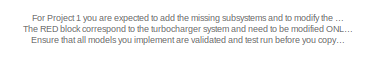
[diagram: Engine - part 1/4, top left region]
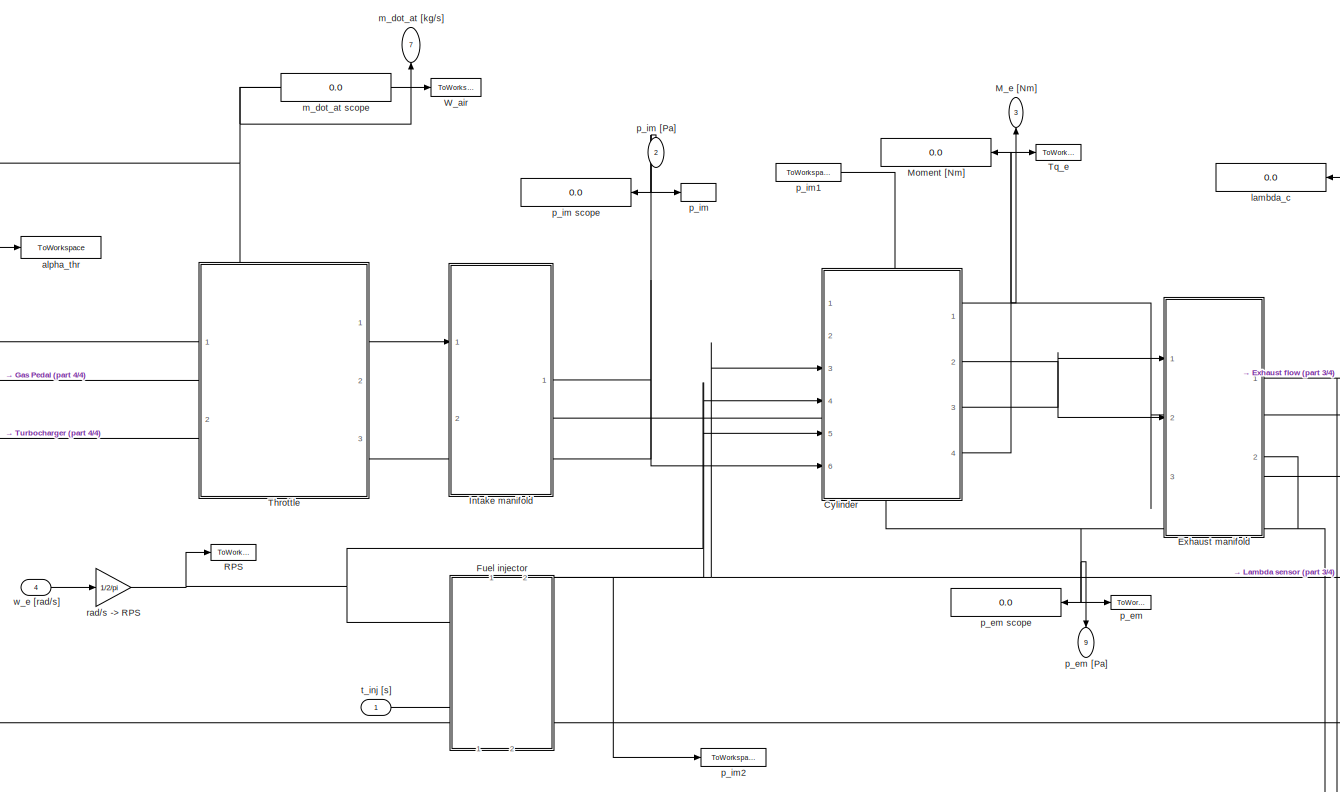
[diagram: Engine - part 2/4, central region]
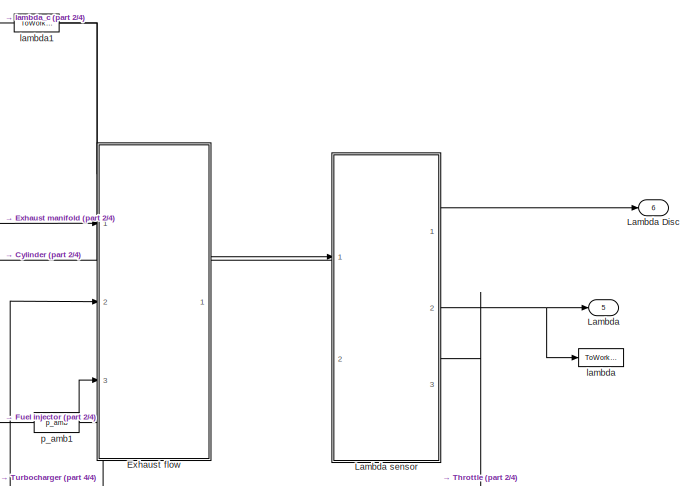
[diagram: Engine - part 3/4, middle right region]
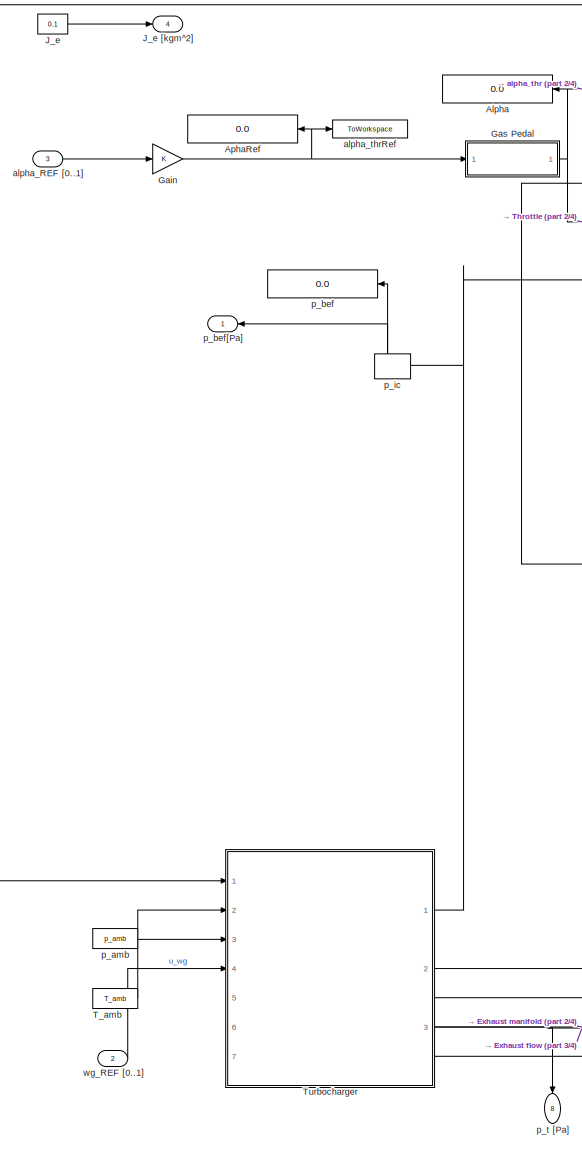
[diagram: Engine - part 4/4, left side, full height]
BLOCK [SubSystem] Engine
  NameLocation = left
  Ports = [4, 9]
  RequestExecContextInheritance = off
BLOCK [Display] Engine/Alpha
  Decimation = 1
  Ports = [1]
BLOCK [Display] Engine/AphaRef
  Decimation = 1
  Ports = [1]
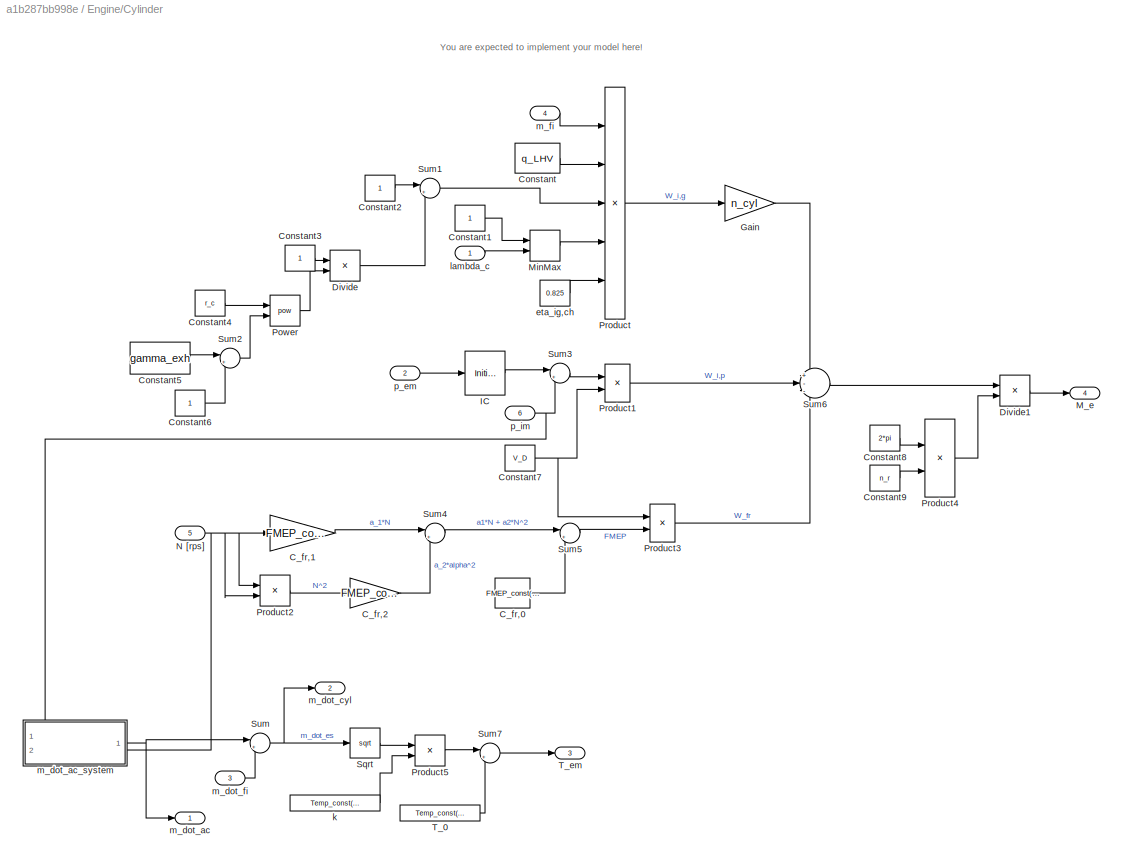
BLOCK [SubSystem] Engine/Cylinder
  NameLocation = top
  PortSchema = {"entries":[{"content":{"sides":[{"content":{"connectorIds":["Out2","Out3","In1","Out4"]},"type":"ConnectorPlacement.EquallySpacedRectSide","uuid":"c6ff6295-f90b-4986-ac7a-70e0bce22d1f"},{"content":{"connectorIds":["In3","In4","In5","In6","Out1"],"side":"RIGHT"},"type":"ConnectorPlacement.EquallySpacedRectSide","uuid":"f8bbf01b-018f-4b58-b1b8-37d8ef2a501b"},{"content":{"connectorIds":["In2"],"side...<+436ch>
  Ports = [6, 4]
  RequestExecContextInheritance = off
BLOCK [Constant] Engine/Cylinder/C_fr,0
  Value = FMEP_const(1)
BLOCK [Gain] Engine/Cylinder/C_fr,1
  Gain = FMEP_const(2)*60/1000
BLOCK [Gain] Engine/Cylinder/C_fr,2
  Gain = FMEP_const(3)*(60^2)/(1000^2)
BLOCK [Constant] Engine/Cylinder/Constant
  Value = q_LHV
BLOCK [Constant] Engine/Cylinder/Constant1
BLOCK [Constant] Engine/Cylinder/Constant2
BLOCK [Constant] Engine/Cylinder/Constant3
BLOCK [Constant] Engine/Cylinder/Constant4
  Value = r_c
BLOCK [Constant] Engine/Cylinder/Constant5
  Value = gamma_exh
BLOCK [Constant] Engine/Cylinder/Constant6
BLOCK [Constant] Engine/Cylinder/Constant7
  Value = V_D
BLOCK [Constant] Engine/Cylinder/Constant8
  Value = 2*pi
BLOCK [Constant] Engine/Cylinder/Constant9
  Value = n_r
BLOCK [Product] Engine/Cylinder/Divide
  Inputs = */
  Ports = [2, 1]
BLOCK [Product] Engine/Cylinder/Divide1
  Inputs = */
  Ports = [2, 1]
BLOCK [Gain] Engine/Cylinder/Gain
  Gain = n_cyl
BLOCK [InitialCondition] Engine/Cylinder/IC
  Value = 1.1e5
BLOCK [Outport] Engine/Cylinder/M_e
  Port = 4
BLOCK [MinMax] Engine/Cylinder/MinMax
  Inputs = 2
  Ports = [2, 1]
BLOCK [Inport] Engine/Cylinder/N [rps]
  Port = 5
BLOCK [Math] Engine/Cylinder/Power
  Operator = pow
  Ports = [2, 1]
BLOCK [Product] Engine/Cylinder/Product
  Inputs = 5
  Ports = [5, 1]
BLOCK [Product] Engine/Cylinder/Product1
  Ports = [2, 1]
BLOCK [Product] Engine/Cylinder/Product2
  Ports = [2, 1]
BLOCK [Product] Engine/Cylinder/Product3
  Ports = [2, 1]
BLOCK [Product] Engine/Cylinder/Product4
  Ports = [2, 1]
BLOCK [Product] Engine/Cylinder/Product5
  Ports = [2, 1]
BLOCK [Sqrt] Engine/Cylinder/Sqrt
BLOCK [Sum] Engine/Cylinder/Sum
  Inputs = |++
  Ports = [2, 1]
BLOCK [Sum] Engine/Cylinder/Sum1
  Inputs = |+-
  Ports = [2, 1]
BLOCK [Sum] Engine/Cylinder/Sum2
  Inputs = |+-
  Ports = [2, 1]
BLOCK [Sum] Engine/Cylinder/Sum3
  Inputs = |+-
  Ports = [2, 1]
BLOCK [Sum] Engine/Cylinder/Sum4
  Inputs = |++
  Ports = [2, 1]
BLOCK [Sum] Engine/Cylinder/Sum5
  Inputs = |++
  Ports = [2, 1]
BLOCK [Sum] Engine/Cylinder/Sum6
  Inputs = +--
  Ports = [3, 1]
BLOCK [Sum] Engine/Cylinder/Sum7
  Inputs = |++
  Ports = [2, 1]
BLOCK [Constant] Engine/Cylinder/T_0
  Value = Temp_const(1)
BLOCK [Outport] Engine/Cylinder/T_em
  Port = 3
BLOCK [Constant] Engine/Cylinder/eta_ig,ch
  Value = 0.825
BLOCK [Constant] Engine/Cylinder/k
  Value = Temp_const(2)
BLOCK [Inport] Engine/Cylinder/lambda_c
BLOCK [Outport] Engine/Cylinder/m_dot_ac
BLOCK [SubSystem] Engine/Cylinder/m_dot_ac_system
  PortSchema = {"entries":[{"content":{"sides":[{"content":{"connectorIds":[]},"type":"ConnectorPlacement.EquallySpacedRectSide","uuid":"ecdbb782-eef7-477e-bb82-5ebf032163a3"},{"content":{"connectorIds":["Out1"],"side":"RIGHT"},"type":"ConnectorPlacement.EquallySpacedRectSide","uuid":"4b5fba5e-4300-4916-aa15-d3f6c61d9689"},{"content":{"connectorIds":["In1","In2"],"side":"TOP"},"type":"ConnectorPlacement.EquallyS...<+248ch>
  Ports = [2, 1]
  RequestExecContextInheritance = off
BLOCK [Abs] Engine/Cylinder/m_dot_ac_system/Abs
  SaturateOnIntegerOverflow = off
BLOCK [Abs] Engine/Cylinder/m_dot_ac_system/Abs1
  SaturateOnIntegerOverflow = off
BLOCK [Product] Engine/Cylinder/m_dot_ac_system/Divide
  Inputs = */
  Ports = [2, 1]
BLOCK [Inport] Engine/Cylinder/m_dot_ac_system/N
  Port = 2
BLOCK [Product] Engine/Cylinder/m_dot_ac_system/Product
  Inputs = 5
  Ports = [5, 1]
BLOCK [Product] Engine/Cylinder/m_dot_ac_system/Product1
  Inputs = 3
  Ports = [3, 1]
BLOCK [Constant] Engine/Cylinder/m_dot_ac_system/R
  Value = R_air
BLOCK [Sqrt] Engine/Cylinder/m_dot_ac_system/Sqrt
BLOCK [Sqrt] Engine/Cylinder/m_dot_ac_system/Sqrt1
BLOCK [Sum] Engine/Cylinder/m_dot_ac_system/Sum
  Inputs = |++
  Ports = [2, 1]
BLOCK [Sum] Engine/Cylinder/m_dot_ac_system/Sum1
  Inputs = |++
  Ports = [2, 1]
BLOCK [Constant] Engine/Cylinder/m_dot_ac_system/T_im
  Value = mean(T_im)
BLOCK [Constant] Engine/Cylinder/m_dot_ac_system/V_d
  Value = V_d
BLOCK [Constant] Engine/Cylinder/m_dot_ac_system/c0
  Value = Intake_mainfold_const(1)
BLOCK [Gain] Engine/Cylinder/m_dot_ac_system/c1
  Gain = Intake_mainfold_const(2)
BLOCK [Gain] Engine/Cylinder/m_dot_ac_system/c2
  Gain = Intake_mainfold_const(3)
BLOCK [Outport] Engine/Cylinder/m_dot_ac_system/m_dot_ac
BLOCK [Constant] Engine/Cylinder/m_dot_ac_system/n_cyl
  Value = n_cyl
BLOCK [Constant] Engine/Cylinder/m_dot_ac_system/n_r
  Value = n_r
BLOCK [Inport] Engine/Cylinder/m_dot_ac_system/p_im
BLOCK [Outport] Engine/Cylinder/m_dot_cyl
  Port = 2
BLOCK [Inport] Engine/Cylinder/m_dot_fi
  Port = 3
BLOCK [Inport] Engine/Cylinder/m_fi
  Port = 4
BLOCK [Inport] Engine/Cylinder/p_em
  Port = 2
BLOCK [Inport] Engine/Cylinder/p_im
  Port = 6
BLOCK [SubSystem] Engine/Exhaust flow
  NameLocation = top
  PortSchema = {"entries":[{"content":{"sides":[{"content":{"connectorIds":["In1","Out1","In2","In3"]},"type":"ConnectorPlacement.EquallySpacedRectSide","uuid":"f06335af-0d46-453e-89a7-85820e5b30b4"},{"content":{"connectorIds":[],"side":"RIGHT"},"type":"ConnectorPlacement.EquallySpacedRectSide","uuid":"1980f551-ae72-440d-afc1-b2b6b725f391"},{"content":{"connectorIds":[],"side":"TOP"},"type":"ConnectorPlacement.E...<+255ch>
  Ports = [3, 1]
  RequestExecContextInheritance = off
BLOCK [Product] Engine/Exhaust flow/Divide1
  Inputs = */
  Ports = [2, 1]
BLOCK [Gain] Engine/Exhaust flow/Gain
  Gain = R_exh
BLOCK [Gain] Engine/Exhaust flow/Gain1
  Gain = Exhaust_flow_const
BLOCK [InitialCondition] Engine/Exhaust flow/IC
  Value = 1.1e5
BLOCK [Product] Engine/Exhaust flow/Product2
  Ports = [2, 1]
BLOCK [Saturate] Engine/Exhaust flow/Saturation
  LowerLimit = 0
  UpperLimit = 1000000
BLOCK [Sqrt] Engine/Exhaust flow/Sqrt
BLOCK [Sum] Engine/Exhaust flow/Sum1
  Inputs = |+-
  Ports = [2, 1]
BLOCK [Inport] Engine/Exhaust flow/T_em
BLOCK [Outport] Engine/Exhaust flow/m_dot_cat
BLOCK [Inport] Engine/Exhaust flow/p_amb
  Port = 3
BLOCK [Inport] Engine/Exhaust flow/p_em
  Port = 2
BLOCK [SubSystem] Engine/Exhaust manifold
  NameLocation = top
  PortSchema = {"entries":[{"content":{"sides":[{"content":{"connectorIds":["In1","In2"]},"type":"ConnectorPlacement.EquallySpacedRectSide","uuid":"ecdbb782-eef7-477e-bb82-5ebf032163a3"},{"content":{"connectorIds":["Out1","In3","Out2"],"side":"RIGHT"},"type":"ConnectorPlacement.EquallySpacedRectSide","uuid":"4b5fba5e-4300-4916-aa15-d3f6c61d9689"},{"content":{"connectorIds":[],"side":"TOP"},"type":"ConnectorPlace...<+261ch>
  Ports = [3, 2]
  RequestExecContextInheritance = off
BLOCK [Gain] Engine/Exhaust manifold/Gain
  Gain = R_exh/V_em
BLOCK [InitialCondition] Engine/Exhaust manifold/IC
  Value = 1.1e5
BLOCK [Integrator] Engine/Exhaust manifold/Integrator
  InitialCondition = 1.1e5
  Ports = [1, 1]
BLOCK [Product] Engine/Exhaust manifold/Product3
  Ports = [2, 1]
BLOCK [Sum] Engine/Exhaust manifold/Sum1
  Inputs = |+-
  Ports = [2, 1]
BLOCK [Inport] Engine/Exhaust manifold/T_em
BLOCK [Outport] Engine/Exhaust manifold/T_em1
BLOCK [Inport] Engine/Exhaust manifold/m_dot_cat
  Port = 3
BLOCK [Inport] Engine/Exhaust manifold/m_dot_cyl
  Port = 2
BLOCK [Outport] Engine/Exhaust manifold/p_em
  Port = 2
BLOCK [SubSystem] Engine/Fuel injector
  NameLocation = left
  PortSchema = {"entries":[{"content":{"sides":[{"content":{"connectorIds":[]},"type":"ConnectorPlacement.EquallySpacedRectSide","uuid":"c6ff6295-f90b-4986-ac7a-70e0bce22d1f"},{"content":{"connectorIds":[],"side":"RIGHT"},"type":"ConnectorPlacement.EquallySpacedRectSide","uuid":"f8bbf01b-018f-4b58-b1b8-37d8ef2a501b"},{"content":{"connectorIds":["In1","In2"],"side":"TOP"},"type":"ConnectorPlacement.EquallySpacedR...<+399ch>
  Ports = [2, 2]
  RequestExecContextInheritance = off
BLOCK [Constant] Engine/Fuel injector/Constant
  Value = n_cyl
BLOCK [Constant] Engine/Fuel injector/Constant1
  Value = n_r
BLOCK [Product] Engine/Fuel injector/Divide
  Inputs = */
  Ports = [2, 1]
BLOCK [Inport] Engine/Fuel injector/N [rps]
  NameLocation = top
  Port = 2
BLOCK [Product] Engine/Fuel injector/Product
  Ports = [2, 1]
BLOCK [Product] Engine/Fuel injector/Product1
  Inputs = 3
  Ports = [3, 1]
BLOCK [Sum] Engine/Fuel injector/Sum
  Inputs = |+-
  Ports = [2, 1]
BLOCK [Constant] Engine/Fuel injector/c_fi
  Value = Fuel_injection_const(1)
BLOCK [Outport] Engine/Fuel injector/m_dot_fi [kg//s]
BLOCK [Outport] Engine/Fuel injector/m_fi [kg]
  Port = 2
BLOCK [Constant] Engine/Fuel injector/t_0
  Value = Fuel_injection_const(2)
BLOCK [Inport] Engine/Fuel injector/t_inj
BLOCK [Gain] Engine/Gain
BLOCK [SubSystem] Engine/Gas Pedal
  NameLocation = top
  Ports = [1, 1]
  RequestExecContextInheritance = off
BLOCK [Outport] Engine/Gas Pedal/Alpha
BLOCK [Inport] Engine/Gas Pedal/AlphaRef
BLOCK [Gain] Engine/Gas Pedal/Gain
  Gain = 1/tau_th
BLOCK [Integrator] Engine/Gas Pedal/Integrator
  Ports = [1, 1]
BLOCK [Sum] Engine/Gas Pedal/Sum
  Inputs = |+-
  Ports = [2, 1]
BLOCK [SubSystem] Engine/Intake manifold
  NameLocation = top
  PortSchema = {"entries":[{"content":{"sides":[{"content":{"connectorIds":["In1"]},"type":"ConnectorPlacement.EquallySpacedRectSide","uuid":"c4e4d620-2bcc-4db0-9055-5904ec1a58a9"},{"content":{"connectorIds":["In2","Out1"],"side":"RIGHT"},"type":"ConnectorPlacement.EquallySpacedRectSide","uuid":"7abafa54-675f-4448-8d24-7b3f9f41fe2d"},{"content":{"connectorIds":[],"side":"TOP"},"type":"ConnectorPlacement.EquallyS...<+248ch>
  Ports = [2, 1]
  RequestExecContextInheritance = off
BLOCK [Product] Engine/Intake manifold/Divide
  Inputs = */
  Ports = [2, 1]
BLOCK [Integrator] Engine/Intake manifold/Integrator
  InitialCondition = 15818
  Ports = [1, 1]
BLOCK [Product] Engine/Intake manifold/Product
  Ports = [2, 1]
BLOCK [Product] Engine/Intake manifold/Product1
  Ports = [2, 1]
BLOCK [Constant] Engine/Intake manifold/R
  Value = R_air
BLOCK [Sum] Engine/Intake manifold/Sum
  Inputs = |+-
  Ports = [2, 1]
  SaturateOnIntegerOverflow = on
BLOCK [Constant] Engine/Intake manifold/T_im
  Value = mean(T_im)
BLOCK [Constant] Engine/Intake manifold/V_im
  Value = V_im
BLOCK [Inport] Engine/Intake manifold/m_dot_ac [kg//s]
  Port = 2
BLOCK [Inport] Engine/Intake manifold/m_dot_at [kg//s]
BLOCK [Outport] Engine/Intake manifold/p_im [Pa]
BLOCK [Constant] Engine/J_e
  Value = 0.1
BLOCK [Outport] Engine/J_e [kgm^2]
  Port = 4
BLOCK [Outport] Engine/Lambda
  Port = 5
BLOCK [Outport] Engine/Lambda Disc
  Port = 6
BLOCK [SubSystem] Engine/Lambda sensor
  NameLocation = top
  PortSchema = {"entries":[{"content":{"sides":[{"content":{"connectorIds":["Out3","In1"]},"type":"ConnectorPlacement.EquallySpacedRectSide","uuid":"d39da2a0-5083-429f-b2a5-f3c55751e588"},{"content":{"connectorIds":["Out1","Out2","In2"],"side":"RIGHT"},"type":"ConnectorPlacement.EquallySpacedRectSide","uuid":"7673ed93-c321-42ef-ae67-bddda5587c96"},{"content":{"connectorIds":[],"side":"TOP"},"type":"ConnectorPlac...<+262ch>
  Ports = [2, 3]
  RequestExecContextInheritance = off
BLOCK [Constant] Engine/Lambda sensor/Constant
  Value = AFs
BLOCK [Constant] Engine/Lambda sensor/Constant1
BLOCK [Constant] Engine/Lambda sensor/Constant2
  Value = -1
BLOCK [Constant] Engine/Lambda sensor/Constant3
  Value = 0
BLOCK [Product] Engine/Lambda sensor/Divide
  Inputs = */
  Ports = [2, 1]
BLOCK [Gain] Engine/Lambda sensor/Gain
  Gain = 1/tau_mix
BLOCK [If] Engine/Lambda sensor/If
  ElseIfExpressions = u1 == 1, u1 < 1
  IfExpression = u1 > 1
  Ports = [1, 3]
  ShowElse = off
BLOCK [SubSystem] Engine/Lambda sensor/If Action Subsystem
  Ports = [1, 1, 0, 0, 0, 0, 0, 1]
  RequestExecContextInheritance = off
  TreatAsAtomicUnit = on
BLOCK [ActionPort] Engine/Lambda sensor/If Action Subsystem/Action Port
  ActionPortLabel = if(u1 > 1)
BLOCK [Inport] Engine/Lambda sensor/If Action Subsystem/In1
BLOCK [Outport] Engine/Lambda sensor/If Action Subsystem/Out1
BLOCK [SubSystem] Engine/Lambda sensor/If Action Subsystem1
  Ports = [1, 1, 0, 0, 0, 0, 0, 1]
  RequestExecContextInheritance = off
  TreatAsAtomicUnit = on
BLOCK [ActionPort] Engine/Lambda sensor/If Action Subsystem1/Action Port
  ActionPortLabel = elseif(u1 == 1)
BLOCK [Inport] Engine/Lambda sensor/If Action Subsystem1/In1
BLOCK [Outport] Engine/Lambda sensor/If Action Subsystem1/Out1
BLOCK [SubSystem] Engine/Lambda sensor/If Action Subsystem2
  Ports = [1, 1, 0, 0, 0, 0, 0, 1]
  RequestExecContextInheritance = off
  TreatAsAtomicUnit = on
BLOCK [ActionPort] Engine/Lambda sensor/If Action Subsystem2/Action Port
  ActionPortLabel = elseif( u1 < 1)
BLOCK [Inport] Engine/Lambda sensor/If Action Subsystem2/In1
BLOCK [Outport] Engine/Lambda sensor/If Action Subsystem2/Out1
BLOCK [Integrator] Engine/Lambda sensor/Integrator
  InitialCondition = 1
  Ports = [1, 1]
BLOCK [Merge] Engine/Lambda sensor/Merge
  Inputs = 3
  Ports = [3, 1]
BLOCK [Product] Engine/Lambda sensor/Product
  Ports = [2, 1]
BLOCK [Sum] Engine/Lambda sensor/Sum
  Inputs = |+-
  Ports = [2, 1]
BLOCK [Outport] Engine/Lambda sensor/lambda_c
  Port = 3
BLOCK [Outport] Engine/Lambda sensor/lambda_disc
BLOCK [Outport] Engine/Lambda sensor/lambda_exh
  Port = 2
BLOCK [Inport] Engine/Lambda sensor/m_dot_at
  Port = 2
BLOCK [Inport] Engine/Lambda sensor/m_dot_fi
BLOCK [TransportDelay] Engine/Lambda sensor/tau_d delay
  DelayTime = tau_d
  Ports = [1, 1]
BLOCK [Outport] Engine/M_e [Nm]
  NameLocation = right
  Port = 3
BLOCK [Display] Engine/Moment [Nm]
  Decimation = 1
  Ports = [1]
BLOCK [ToWorkspace] Engine/RPS
  MaxDataPoints = inf
  NameLocation = top
  Ports = [1]
  SampleTime = -1
  VariableName = RPS
BLOCK [Constant] Engine/T_amb
  Value = T_amb
BLOCK [SubSystem] Engine/Throttle 
  NameLocation = top
  PortSchema = {"entries":[{"content":{"sides":[{"content":{"connectorIds":["Out2"]},"type":"ConnectorPlacement.EquallySpacedRectSide","uuid":"c928f7f6-9f01-47f3-9bc0-46ff39781eb1"},{"content":{"connectorIds":["In2","In3","Out1"],"side":"RIGHT"},"type":"ConnectorPlacement.EquallySpacedRectSide","uuid":"8dd06eba-1f93-4a48-ba14-c22296a753f6"},{"content":{"connectorIds":[],"side":"TOP"},"type":"ConnectorPlacement.E...<+404ch>
  Ports = [3, 2]
  RequestExecContextInheritance = off
BLOCK [SubSystem] Engine/Throttle /A_eff
  Ports = [1, 1]
  RequestExecContextInheritance = off
BLOCK [Outport] Engine/Throttle /A_eff/A_eff
BLOCK [Product] Engine/Throttle /A_eff/Product
  Ports = [2, 1]
BLOCK [Sum] Engine/Throttle /A_eff/Sum
  Inputs = |++
  Ports = [2, 1]
BLOCK [Sum] Engine/Throttle /A_eff/Sum1
  Inputs = |++
  Ports = [2, 1]
BLOCK [Constant] Engine/Throttle /A_eff/a0
  Value = A_eff_const(1)
BLOCK [Gain] Engine/Throttle /A_eff/a1
  Gain = A_eff_const(2)
BLOCK [Gain] Engine/Throttle /A_eff/a2
  Gain = A_eff_const(3)
BLOCK [Inport] Engine/Throttle /A_eff/alpha
BLOCK [Product] Engine/Throttle /Divide
  Inputs = */
  Ports = [2, 1]
BLOCK [Product] Engine/Throttle /Divide1
  Inputs = */
  Ports = [2, 1]
BLOCK [Product] Engine/Throttle /Product
  Inputs = 3
  Ports = [3, 1]
BLOCK [Product] Engine/Throttle /Product1
  Ports = [2, 1]
BLOCK [SubSystem] Engine/Throttle /Psi(PI)
  Ports = [1, 1]
  RequestExecContextInheritance = off
BLOCK [Constant] Engine/Throttle /Psi(PI)/(g+1)//g
  Value = (gamma_air+1)/gamma_air
BLOCK [Constant] Engine/Throttle /Psi(PI)/2//g
  Value = 2/gamma_air
BLOCK [Constant] Engine/Throttle /Psi(PI)/2g//(g-1)
  Value = (2*gamma_air)/(gamma_air-1)
BLOCK [Math] Engine/Throttle /Psi(PI)/Math Function
  Operator = pow
  Ports = [2, 1]
  SignedPower = on
BLOCK [Math] Engine/Throttle /Psi(PI)/Math Function1
  Operator = pow
  Ports = [2, 1]
  SignedPower = on
BLOCK [MinMax] Engine/Throttle /Psi(PI)/MinMax
  Function = max
  Inputs = 2
  Ports = [2, 1]
BLOCK [Inport] Engine/Throttle /Psi(PI)/PI
BLOCK [Constant] Engine/Throttle /Psi(PI)/PI critical (2//(g+1))^(g//(g-1))
  Value = (2/(gamma_air+1))^(gamma_air/(gamma_air-1))
BLOCK [Product] Engine/Throttle /Psi(PI)/Product
  Ports = [2, 1]
  RndMeth = Zero
BLOCK [Outport] Engine/Throttle /Psi(PI)/Psi
BLOCK [Sqrt] Engine/Throttle /Psi(PI)/Sqrt
  AlgorithmType = Newton-Raphson
BLOCK [Sum] Engine/Throttle /Psi(PI)/Subtract
  IconShape = rectangular
  Inputs = +-
  Ports = [2, 1]
BLOCK [Saturate] Engine/Throttle /Psi(PI)/[0,1]
  LowerLimit = 0
  UpperLimit = 1
BLOCK [Constant] Engine/Throttle /R
  Value = R_air
BLOCK [Sqrt] Engine/Throttle /Sqrt
BLOCK [Constant] Engine/Throttle /T_bef_thr
  Value = mean(T_bef_thr)
BLOCK [Outport] Engine/Throttle /m_dot_at [kg//s]
  Port = 2
BLOCK [Outport] Engine/Throttle /m_dot_at [kg//s]1
BLOCK [Inport] Engine/Throttle /p_bef,thr [Pa]
  Port = 3
BLOCK [Inport] Engine/Throttle /p_im [Pa]
BLOCK [Inport] Engine/Throttle /pos [-]
  Port = 2
BLOCK [ToWorkspace] Engine/Tq_e
  MaxDataPoints = inf
  NameLocation = top
  Ports = [1]
  SampleTime = -1
  VariableName = Tq_e
BLOCK [SubSystem] Engine/Turbocharger
  PortSchema = {"entries":[{"content":{"sides":[{"content":{"connectorIds":["In1","In2","In3","In4"]},"type":"ConnectorPlacement.EquallySpacedRectSide","uuid":"86731332-f34d-46da-85bd-bb4bed14e334"},{"content":{"connectorIds":["Out1","In5","In6","In7","Out2","Out3"],"side":"RIGHT"},"type":"ConnectorPlacement.EquallySpacedRectSide","uuid":"d31b5450-3593-487b-907f-2875749d4d92"},{"content":{"connectorIds":[],"side...<+292ch>
  Ports = [7, 3]
  RequestExecContextInheritance = off
BLOCK [Sum] Engine/Turbocharger/Add
  IconShape = rectangular
  NameLocation = right
  Ports = [2, 1]
BLOCK [SubSystem] Engine/Turbocharger/Compressor
  NameLocation = right
  Ports = [4, 2]
  RequestExecContextInheritance = off
BLOCK [SubSystem] Engine/Turbocharger/Compressor/PiCmax
  Ports = [2, 1]
  RequestExecContextInheritance = off
BLOCK [Constant] Engine/Turbocharger/Compressor/PiCmax/Constant
BLOCK [Constant] Engine/Turbocharger/Compressor/PiCmax/Constant1
  Value = (gamma_air) / (gamma_air - 1)
BLOCK [Product] Engine/Turbocharger/Compressor/PiCmax/Divide
  Inputs = */
  Ports = [2, 1]
BLOCK [Gain] Engine/Turbocharger/Compressor/PiCmax/Gain
  Gain = rComp
BLOCK [Gain] Engine/Turbocharger/Compressor/PiCmax/Gain1
  Gain = Psi_max
BLOCK [Gain] Engine/Turbocharger/Compressor/PiCmax/Gain2
  Gain = 2*cp_air
BLOCK [Outport] Engine/Turbocharger/Compressor/PiCmax/PiCmax
BLOCK [Math] Engine/Turbocharger/Compressor/PiCmax/Power
  Operator = pow
  Ports = [2, 1]
BLOCK [Math] Engine/Turbocharger/Compressor/PiCmax/Square
  Operator = square
  Ports = [1, 1]
BLOCK [Sum] Engine/Turbocharger/Compressor/PiCmax/Sum
  Inputs = ++|
  Ports = [2, 1]
BLOCK [Inport] Engine/Turbocharger/Compressor/PiCmax/Tamb
BLOCK [Inport] Engine/Turbocharger/Compressor/PiCmax/w_tc
  Port = 2
BLOCK [Product] Engine/Turbocharger/Compressor/Product4
  Inputs = */
  Ports = [2, 1]
  RndMeth = Zero
BLOCK [Inport] Engine/Turbocharger/Compressor/T_af [K]
  Port = 2
BLOCK [SubSystem] Engine/Turbocharger/Compressor/Tc
  Ports = [3, 1]
  RequestExecContextInheritance = off
BLOCK [Constant] Engine/Turbocharger/Compressor/Tc/Constant
  Value = (gamma_air - 1) / gamma_air
BLOCK [Constant] Engine/Turbocharger/Compressor/Tc/Constant1
BLOCK [Constant] Engine/Turbocharger/Compressor/Tc/Constant2
BLOCK [Product] Engine/Turbocharger/Compressor/Tc/Divide
  Inputs = */
  Ports = [2, 1]
BLOCK [Inport] Engine/Turbocharger/Compressor/Tc/PiC
  Port = 2
BLOCK [Math] Engine/Turbocharger/Compressor/Tc/Power
  Operator = pow
  Ports = [2, 1]
BLOCK [Product] Engine/Turbocharger/Compressor/Tc/Product
  Ports = [2, 1]
BLOCK [Sum] Engine/Turbocharger/Compressor/Tc/Sum
  Inputs = |+-
  Ports = [2, 1]
BLOCK [Sum] Engine/Turbocharger/Compressor/Tc/Sum1
  Inputs = |++
  Ports = [2, 1]
BLOCK [Outport] Engine/Turbocharger/Compressor/Tc/T02
BLOCK [Inport] Engine/Turbocharger/Compressor/Tc/Tamb
  Port = 3
BLOCK [Inport] Engine/Turbocharger/Compressor/Tc/etaC
BLOCK [SubSystem] Engine/Turbocharger/Compressor/Tq_c
  Ports = [4, 1]
  RequestExecContextInheritance = off
BLOCK [Outport] Engine/Turbocharger/Compressor/Tq_c [Nm]
BLOCK [Constant] Engine/Turbocharger/Compressor/Tq_c/Constant
  Value = cp_air
BLOCK [Product] Engine/Turbocharger/Compressor/Tq_c/Divide
  Inputs = */
  Ports = [2, 1]
BLOCK [Product] Engine/Turbocharger/Compressor/Tq_c/Product
  Inputs = 3
  Ports = [3, 1]
BLOCK [Sum] Engine/Turbocharger/Compressor/Tq_c/Sum
  Inputs = |+-
  Ports = [2, 1]
BLOCK [Inport] Engine/Turbocharger/Compressor/Tq_c/T02
  Port = 2
BLOCK [Inport] Engine/Turbocharger/Compressor/Tq_c/Tamb
  Port = 3
BLOCK [Outport] Engine/Turbocharger/Compressor/Tq_c/Tq_c
BLOCK [Inport] Engine/Turbocharger/Compressor/Tq_c/m_dot_c
BLOCK [Inport] Engine/Turbocharger/Compressor/Tq_c/w_tc
  Port = 4
BLOCK [SubSystem] Engine/Turbocharger/Compressor/WcCorr2Wc
  Ports = [3, 1]
  RequestExecContextInheritance = off
BLOCK [Product] Engine/Turbocharger/Compressor/WcCorr2Wc/Divide
  Inputs = */
  Ports = [2, 1]
BLOCK [Gain] Engine/Turbocharger/Compressor/WcCorr2Wc/Gain
  Gain = 1 / pCref
BLOCK [Gain] Engine/Turbocharger/Compressor/WcCorr2Wc/Gain1
  Gain = 1 / TCref
BLOCK [Product] Engine/Turbocharger/Compressor/WcCorr2Wc/Product
  Ports = [2, 1]
BLOCK [Sqrt] Engine/Turbocharger/Compressor/WcCorr2Wc/Sqrt
BLOCK [Inport] Engine/Turbocharger/Compressor/WcCorr2Wc/T_amb
  Port = 2
BLOCK [Outport] Engine/Turbocharger/Compressor/WcCorr2Wc/m_dot_c
BLOCK [Inport] Engine/Turbocharger/Compressor/WcCorr2Wc/m_dot_cCorr
  Port = 3
BLOCK [Inport] Engine/Turbocharger/Compressor/WcCorr2Wc/p_amb
BLOCK [SubSystem] Engine/Turbocharger/Compressor/etaC
  Ports = [2, 1]
  RequestExecContextInheritance = off
BLOCK [Constant] Engine/Turbocharger/Compressor/etaC/Constant
  Value = eta_c_max
BLOCK [Constant] Engine/Turbocharger/Compressor/etaC/Constant1
  Value = m_dot_c_Corr_at
BLOCK [Constant] Engine/Turbocharger/Compressor/etaC/Constant2
BLOCK [Constant] Engine/Turbocharger/Compressor/etaC/Constant3
  Value = PiC_at - 1
BLOCK [Constant] Engine/Turbocharger/Compressor/etaC/Constant4
  Value = etaCmin
BLOCK [Constant] Engine/Turbocharger/Compressor/etaC/Constant5
  Value = 0
BLOCK [Gain] Engine/Turbocharger/Compressor/etaC/Gain
  Gain = Q11
BLOCK [Gain] Engine/Turbocharger/Compressor/etaC/Gain1
  Gain = Q22
BLOCK [Gain] Engine/Turbocharger/Compressor/etaC/Gain2
  Gain = 2*Q12
BLOCK [MinMax] Engine/Turbocharger/Compressor/etaC/Max
  Function = max
  Inputs = 2
  Ports = [2, 1]
BLOCK [MinMax] Engine/Turbocharger/Compressor/etaC/Max1
  Function = max
  Inputs = 2
  Ports = [2, 1]
BLOCK [Inport] Engine/Turbocharger/Compressor/etaC/PiC
  Port = 2
BLOCK [Product] Engine/Turbocharger/Compressor/etaC/Product
  Ports = [2, 1]
BLOCK [Sqrt] Engine/Turbocharger/Compressor/etaC/Sqrt
BLOCK [Math] Engine/Turbocharger/Compressor/etaC/Square
  Operator = square
  Ports = [1, 1]
BLOCK [Math] Engine/Turbocharger/Compressor/etaC/Square1
  Operator = square
  Ports = [1, 1]
BLOCK [Sum] Engine/Turbocharger/Compressor/etaC/Sum
  Inputs = |+-
  Ports = [2, 1]
BLOCK [Sum] Engine/Turbocharger/Compressor/etaC/Sum1
  Inputs = |+-
  Ports = [2, 1]
BLOCK [Sum] Engine/Turbocharger/Compressor/etaC/Sum2
  Inputs = |+-
  Ports = [2, 1]
BLOCK [Sum] Engine/Turbocharger/Compressor/etaC/Sum3
  Inputs = +++
  Ports = [3, 1]
BLOCK [Sum] Engine/Turbocharger/Compressor/etaC/Sum4
  Inputs = +-|
  Ports = [2, 1]
BLOCK [Outport] Engine/Turbocharger/Compressor/etaC/etaC
BLOCK [Inport] Engine/Turbocharger/Compressor/etaC/m_dot_cCorr
BLOCK [Outport] Engine/Turbocharger/Compressor/m_dot_c [kg//s]
  Port = 2
BLOCK [SubSystem] Engine/Turbocharger/Compressor/m_dot_cCorr
  Ports = [2, 1]
  RequestExecContextInheritance = off
BLOCK [Constant] Engine/Turbocharger/Compressor/m_dot_cCorr/Constant
BLOCK [Product] Engine/Turbocharger/Compressor/m_dot_cCorr/Divide
  Inputs = */
  Ports = [2, 1]
BLOCK [Gain] Engine/Turbocharger/Compressor/m_dot_cCorr/Gain
  Gain = m_dot_cCorr_max
BLOCK [Inport] Engine/Turbocharger/Compressor/m_dot_cCorr/PiC
  Port = 2
BLOCK [Inport] Engine/Turbocharger/Compressor/m_dot_cCorr/PiCmax
BLOCK [Sqrt] Engine/Turbocharger/Compressor/m_dot_cCorr/Sqrt
BLOCK [Math] Engine/Turbocharger/Compressor/m_dot_cCorr/Square
  Operator = square
  Ports = [1, 1]
BLOCK [Sum] Engine/Turbocharger/Compressor/m_dot_cCorr/Sum
  Inputs = +-|
  Ports = [2, 1]
BLOCK [ToWorkspace] Engine/Turbocharger/Compressor/m_dot_cCorr/To Workspace1
  MaxDataPoints = inf
  Ports = [1]
  SampleTime = -1
  VariableName = m_dot_cCorr
BLOCK [Outport] Engine/Turbocharger/Compressor/m_dot_cCorr/m_dot_cCorr
BLOCK [Inport] Engine/Turbocharger/Compressor/p_amb [Pa]
BLOCK [Inport] Engine/Turbocharger/Compressor/p_ic [Pa]
  Port = 3
BLOCK [Inport] Engine/Turbocharger/Compressor/w_tc [rad//s]
  Port = 4
BLOCK [SubSystem] Engine/Turbocharger/Exhaust System after turbine
  NameLocation = right
  Ports = [2, 1]
  RequestExecContextInheritance = off
BLOCK [Inport] Engine/Turbocharger/Exhaust System after turbine/Flow in [kg//s]
  Port = 2
BLOCK [Inport] Engine/Turbocharger/Exhaust System after turbine/Flow out [kg//s]
BLOCK [Integrator] Engine/Turbocharger/Exhaust System after turbine/Integrator
  InitialCondition = 103e3
  Ports = [1, 1]
BLOCK [Product] Engine/Turbocharger/Exhaust System after turbine/Product
  Inputs = ***/
  OutDataTypeStr = Inherit: Same as first input
  Ports = [4, 1]
  SaturateOnIntegerOverflow = on
BLOCK [Constant] Engine/Turbocharger/Exhaust System after turbine/R
  Value = R_exh
BLOCK [Sum] Engine/Turbocharger/Exhaust System after turbine/Sum
  Inputs = |+-
  Ports = [2, 1]
  SaturateOnIntegerOverflow = on
BLOCK [Constant] Engine/Turbocharger/Exhaust System after turbine/T_t
  Value = mean(T_es)
BLOCK [Constant] Engine/Turbocharger/Exhaust System after turbine/V_es
  Value = V_es
BLOCK [Outport] Engine/Turbocharger/Exhaust System after turbine/p_es=p_t [Pa]
BLOCK [SubSystem] Engine/Turbocharger/Intercooler
  NameLocation = right
  Ports = [2, 1]
  RequestExecContextInheritance = off
BLOCK [Inport] Engine/Turbocharger/Intercooler/Flow  out [kg//s]
  Port = 2
BLOCK [Inport] Engine/Turbocharger/Intercooler/Flow in [kg//s]
BLOCK [Integrator] Engine/Turbocharger/Intercooler/Integrator
  InitialCondition = p_amb
  LowerSaturationLimit = 0
  Ports = [1, 1]
BLOCK [Product] Engine/Turbocharger/Intercooler/Product
  Inputs = ***/
  OutDataTypeStr = Inherit: Same as first input
  Ports = [4, 1]
  SaturateOnIntegerOverflow = on
BLOCK [Constant] Engine/Turbocharger/Intercooler/R
  Value = R_air
BLOCK [Sum] Engine/Turbocharger/Intercooler/Sum
  Inputs = |+-
  Ports = [2, 1]
  SaturateOnIntegerOverflow = on
BLOCK [Constant] Engine/Turbocharger/Intercooler/T_ic
  Value = mean(T_ic)
BLOCK [Constant] Engine/Turbocharger/Intercooler/V_ic
  Value = V_ic
BLOCK [Outport] Engine/Turbocharger/Intercooler/p_ic [Pa]
BLOCK [Inport] Engine/Turbocharger/P_amb=p_af [Pa] 
  Port = 2
BLOCK [Inport] Engine/Turbocharger/T_amb=T_af [K]
  NameLocation = top
  Port = 3
BLOCK [Inport] Engine/Turbocharger/T_em [K]
  NameLocation = top
  Port = 6
BLOCK [SubSystem] Engine/Turbocharger/Turbine
  NameLocation = right
  Ports = [4, 2]
  RequestExecContextInheritance = off
BLOCK [SubSystem] Engine/Turbocharger/Turbine/BSR
  Ports = [3, 1]
  RequestExecContextInheritance = off
BLOCK [Outport] Engine/Turbocharger/Turbine/BSR/BSR
BLOCK [Constant] Engine/Turbocharger/Turbine/BSR/Constant
  Value = (gamma_exh - 1) / gamma_exh
BLOCK [Constant] Engine/Turbocharger/Turbine/BSR/Constant1
BLOCK [Product] Engine/Turbocharger/Turbine/BSR/Divide
  Inputs = */
  Ports = [2, 1]
BLOCK [Gain] Engine/Turbocharger/Turbine/BSR/Gain
  Gain = rTurb
BLOCK [Gain] Engine/Turbocharger/Turbine/BSR/Gain1
  Gain = 2*cp_exh
BLOCK [Inport] Engine/Turbocharger/Turbine/BSR/PiT
  Port = 2
BLOCK [Math] Engine/Turbocharger/Turbine/BSR/Power
  Operator = pow
  Ports = [2, 1]
BLOCK [Product] Engine/Turbocharger/Turbine/BSR/Product
  Ports = [2, 1]
BLOCK [Saturate] Engine/Turbocharger/Turbine/BSR/Saturation
  LowerLimit = 0.1
  UpperLimit = 1
BLOCK [Sqrt] Engine/Turbocharger/Turbine/BSR/Sqrt
BLOCK [Sum] Engine/Turbocharger/Turbine/BSR/Sum
  Inputs = +-|
  Ports = [2, 1]
BLOCK [Inport] Engine/Turbocharger/Turbine/BSR/T_em
BLOCK [Inport] Engine/Turbocharger/Turbine/BSR/w_tc [rad//s]
  Port = 3
BLOCK [SubSystem] Engine/Turbocharger/Turbine/PiT
  Ports = [2, 1]
  RequestExecContextInheritance = off
BLOCK [MinMax] Engine/Turbocharger/Turbine/PiT/MinMax
  Inputs = 2
  Ports = [2, 1]
BLOCK [Outport] Engine/Turbocharger/Turbine/PiT/PiT
BLOCK [Product] Engine/Turbocharger/Turbine/PiT/Product4
  Inputs = */
  Ports = [2, 1]
  RndMeth = Zero
BLOCK [Constant] Engine/Turbocharger/Turbine/PiT/one1
BLOCK [Inport] Engine/Turbocharger/Turbine/PiT/p_em
BLOCK [Inport] Engine/Turbocharger/Turbine/PiT/p_es
  Port = 2
BLOCK [SubSystem] Engine/Turbocharger/Turbine/TFP2Wt
  Ports = [3, 1]
  RequestExecContextInheritance = off
BLOCK [Product] Engine/Turbocharger/Turbine/TFP2Wt/Divide
  Inputs = */
  Ports = [2, 1]
BLOCK [Product] Engine/Turbocharger/Turbine/TFP2Wt/Product
  Ports = [2, 1]
BLOCK [Sqrt] Engine/Turbocharger/Turbine/TFP2Wt/Sqrt
BLOCK [Inport] Engine/Turbocharger/Turbine/TFP2Wt/TFP
  Port = 2
BLOCK [Inport] Engine/Turbocharger/Turbine/TFP2Wt/T_em
  Port = 3
BLOCK [Outport] Engine/Turbocharger/Turbine/TFP2Wt/m_dot_t
BLOCK [Inport] Engine/Turbocharger/Turbine/TFP2Wt/p_em [Pa]
BLOCK [SubSystem] Engine/Turbocharger/Turbine/TFPmod
  Ports = [1, 1]
  RequestExecContextInheritance = off
BLOCK [Constant] Engine/Turbocharger/Turbine/TFPmod/Constant
  Value = k_1
BLOCK [Constant] Engine/Turbocharger/Turbine/TFPmod/Constant1
BLOCK [Gain] Engine/Turbocharger/Turbine/TFPmod/Gain
  Gain = k_0
BLOCK [Gain] Engine/Turbocharger/Turbine/TFPmod/Pa -> kPa
  Gain = 1/1000
BLOCK [Inport] Engine/Turbocharger/Turbine/TFPmod/PiT
BLOCK [Math] Engine/Turbocharger/Turbine/TFPmod/Power
  Operator = pow
  Ports = [2, 1]
BLOCK [Sqrt] Engine/Turbocharger/Turbine/TFPmod/Sqrt
BLOCK [Sum] Engine/Turbocharger/Turbine/TFPmod/Sum
  Inputs = +-|
  Ports = [2, 1]
BLOCK [Outport] Engine/Turbocharger/Turbine/TFPmod/TFPmod
BLOCK [Inport] Engine/Turbocharger/Turbine/T_em [K]
  Port = 4
BLOCK [SubSystem] Engine/Turbocharger/Turbine/Tq_t
  Ports = [4, 1]
  RequestExecContextInheritance = off
BLOCK [Outport] Engine/Turbocharger/Turbine/Tq_t [Nm]
BLOCK [Constant] Engine/Turbocharger/Turbine/Tq_t/Constant
  Value = cp_exh
BLOCK [Product] Engine/Turbocharger/Turbine/Tq_t/Divide
  Inputs = */
  Ports = [2, 1]
BLOCK [Product] Engine/Turbocharger/Turbine/Tq_t/Product
  Inputs = 3
  Ports = [3, 1]
BLOCK [Sum] Engine/Turbocharger/Turbine/Tq_t/Sum
  Inputs = |+-
  Ports = [2, 1]
BLOCK [Inport] Engine/Turbocharger/Turbine/Tq_t/T04
  Port = 3
BLOCK [Inport] Engine/Turbocharger/Turbine/Tq_t/T_em
  Port = 2
BLOCK [Outport] Engine/Turbocharger/Turbine/Tq_t/Tq_t
BLOCK [Inport] Engine/Turbocharger/Turbine/Tq_t/m_dot_t
BLOCK [Inport] Engine/Turbocharger/Turbine/Tq_t/w_tc
  Port = 4
BLOCK [SubSystem] Engine/Turbocharger/Turbine/Tt
  Ports = [3, 1]
  RequestExecContextInheritance = off
BLOCK [Constant] Engine/Turbocharger/Turbine/Tt/Constant
  Value = (gamma_exh - 1) / gamma_exh
BLOCK [Constant] Engine/Turbocharger/Turbine/Tt/Constant1
BLOCK [Inport] Engine/Turbocharger/Turbine/Tt/PiT
  Port = 3
BLOCK [Math] Engine/Turbocharger/Turbine/Tt/Power
  Operator = pow
  Ports = [2, 1]
BLOCK [Product] Engine/Turbocharger/Turbine/Tt/Product
  Ports = [2, 1]
BLOCK [Product] Engine/Turbocharger/Turbine/Tt/Product1
  Ports = [2, 1]
BLOCK [Sum] Engine/Turbocharger/Turbine/Tt/Sum
  Inputs = +-|
  Ports = [2, 1]
BLOCK [Sum] Engine/Turbocharger/Turbine/Tt/Sum1
  Inputs = +-|
  Ports = [2, 1]
BLOCK [Outport] Engine/Turbocharger/Turbine/Tt/T04
BLOCK [Inport] Engine/Turbocharger/Turbine/Tt/T_em
BLOCK [Inport] Engine/Turbocharger/Turbine/Tt/etaT
  Port = 2
BLOCK [SubSystem] Engine/Turbocharger/Turbine/etaT
  Ports = [1, 1]
  RequestExecContextInheritance = off
BLOCK [Inport] Engine/Turbocharger/Turbine/etaT/BSR
BLOCK [Constant] Engine/Turbocharger/Turbine/etaT/Constant
  Value = etaTmin
BLOCK [Constant] Engine/Turbocharger/Turbine/etaT/Constant1
  Value = BSR_max
BLOCK [Constant] Engine/Turbocharger/Turbine/etaT/Constant2
BLOCK [Product] Engine/Turbocharger/Turbine/etaT/Divide
  Inputs = */
  Ports = [2, 1]
BLOCK [Gain] Engine/Turbocharger/Turbine/etaT/Gain
  Gain = eta_t_max
BLOCK [MinMax] Engine/Turbocharger/Turbine/etaT/Max
  Function = max
  Inputs = 2
  Ports = [2, 1]
BLOCK [Math] Engine/Turbocharger/Turbine/etaT/Square
  Operator = square
  Ports = [1, 1]
BLOCK [Sum] Engine/Turbocharger/Turbine/etaT/Sum
  Inputs = |+-
  Ports = [2, 1]
BLOCK [Sum] Engine/Turbocharger/Turbine/etaT/Sum1
  Inputs = +-|
  Ports = [2, 1]
BLOCK [Outport] Engine/Turbocharger/Turbine/etaT/etaT
BLOCK [Outport] Engine/Turbocharger/Turbine/m_dot_t [kg//s]
  Port = 2
BLOCK [Inport] Engine/Turbocharger/Turbine/p_em [Pa]
  NameLocation = top
  Port = 2
BLOCK [Inport] Engine/Turbocharger/Turbine/p_es [Pa] 
BLOCK [Inport] Engine/Turbocharger/Turbine/w_tc [rad//s]
  Port = 3
BLOCK [Scope] Engine/Turbocharger/Turbo Monitor
  Floating = off
  NumInputPorts = 7
  Ports = [7]
  ScopeSpecificationString = C++SS(StrPVP('Open','off'),StrPVP('TimeRange','60              '),StrPVP('TickLabels','OneTimeTick'),StrPVP('ShowLegends','on'),StrPVP('LimitDataPoints','off'),StrPVP('MaxDataPoints','5000'),StrPVP('SaveToWorkspace','off'),StrPVP('SaveName','ScopeData6'),StrPVP('YMin','100000~-1.73472e-18~2000~-1~0.0025~102500~825'),StrPVP('YMax','190000~0.045~12000~1~0.025~103200~1000'),StrPVP('BlockParamSampleIn...<+833ch>
BLOCK [SubSystem] Engine/Turbocharger/Turbocharger shaft speed dynamics
  Ports = [2, 1]
  RequestExecContextInheritance = off
BLOCK [Gain] Engine/Turbocharger/Turbocharger shaft speed dynamics/Gain
  Gain = 1 / J_tc
BLOCK [Gain] Engine/Turbocharger/Turbocharger shaft speed dynamics/Gain1
  Gain = c_tc_fric
BLOCK [Gain] Engine/Turbocharger/Turbocharger shaft speed dynamics/Gain2
  Gain = 60/(2*pi)
BLOCK [Integrator] Engine/Turbocharger/Turbocharger shaft speed dynamics/Integrator with lower saturation
  InitialCondition = 25e3/30*pi
  LimitOutput = on
  LowerSaturationLimit = 5e3 /  30 * pi
  Ports = [1, 1]
BLOCK [Sum] Engine/Turbocharger/Turbocharger shaft speed dynamics/Sum
  Inputs = +--
  Ports = [3, 1]
BLOCK [ToWorkspace] Engine/Turbocharger/Turbocharger shaft speed dynamics/To Workspace
  FixptAsFi = on
  MaxDataPoints = inf
  Ports = [1]
  SampleTime = -1
  VariableName = turbo_speed
BLOCK [Inport] Engine/Turbocharger/Turbocharger shaft speed dynamics/Tq_c [Nm]
BLOCK [Inport] Engine/Turbocharger/Turbocharger shaft speed dynamics/Tq_t [Nm]
  Port = 2
BLOCK [Outport] Engine/Turbocharger/Turbocharger shaft speed dynamics/w_tc [rad//s]
BLOCK [SubSystem] Engine/Turbocharger/Wastegate
  NameLocation = right
  Ports = [4, 1]
  RequestExecContextInheritance = off
BLOCK [SubSystem] Engine/Turbocharger/Wastegate dynamics
  Ports = [1, 1]
  RequestExecContextInheritance = off
BLOCK [Gain] Engine/Turbocharger/Wastegate dynamics/Gain
  Gain = 1 / tau_wg
BLOCK [Integrator] Engine/Turbocharger/Wastegate dynamics/Integrator
  Ports = [1, 1]
BLOCK [Saturate] Engine/Turbocharger/Wastegate dynamics/Saturation
  LowerLimit = 0
  UpperLimit = 1
BLOCK [Sum] Engine/Turbocharger/Wastegate dynamics/Sum
  Inputs = |+-
  Ports = [2, 1]
BLOCK [Inport] Engine/Turbocharger/Wastegate dynamics/u_wg_REF [0..1]
BLOCK [Outport] Engine/Turbocharger/Wastegate dynamics/wg_pos
BLOCK [Constant] Engine/Turbocharger/Wastegate/A_max_wg
  Value = A_max_wg
BLOCK [Constant] Engine/Turbocharger/Wastegate/Cd_wg
  Value = Cd_wg
BLOCK [Product] Engine/Turbocharger/Wastegate/Divide
  Inputs = */
  Ports = [2, 1]
BLOCK [Product] Engine/Turbocharger/Wastegate/Divide1
  Inputs = ***/
  Ports = [4, 1]
BLOCK [Product] Engine/Turbocharger/Wastegate/Product1
  Inputs = 3
  Ports = [3, 1]
  RndMeth = Zero
BLOCK [Product] Engine/Turbocharger/Wastegate/Product2
  Ports = [2, 1]
  RndMeth = Zero
BLOCK [SubSystem] Engine/Turbocharger/Wastegate/Psi(PI)
  Ports = [1, 1]
  RequestExecContextInheritance = off
BLOCK [Constant] Engine/Turbocharger/Wastegate/Psi(PI)/(g+1)//g
  Value = (gamma_air+1)/gamma_air
BLOCK [Constant] Engine/Turbocharger/Wastegate/Psi(PI)/2//g
  Value = 2/gamma_air
BLOCK [Constant] Engine/Turbocharger/Wastegate/Psi(PI)/2g//(g-1)
  Value = (2*gamma_air)/(gamma_air-1)
BLOCK [Math] Engine/Turbocharger/Wastegate/Psi(PI)/Math Function
  Operator = pow
  Ports = [2, 1]
  SignedPower = on
BLOCK [Math] Engine/Turbocharger/Wastegate/Psi(PI)/Math Function1
  Operator = pow
  Ports = [2, 1]
  SignedPower = on
BLOCK [MinMax] Engine/Turbocharger/Wastegate/Psi(PI)/MinMax
  Function = max
  Inputs = 2
  Ports = [2, 1]
BLOCK [Inport] Engine/Turbocharger/Wastegate/Psi(PI)/PI
BLOCK [Constant] Engine/Turbocharger/Wastegate/Psi(PI)/PI critical (2//(g+1))^(g//(g-1))
  Value = (2/(gamma_air+1))^(gamma_air/(gamma_air-1))
BLOCK [Product] Engine/Turbocharger/Wastegate/Psi(PI)/Product
  Ports = [2, 1]
  RndMeth = Zero
BLOCK [Outport] Engine/Turbocharger/Wastegate/Psi(PI)/Psi
BLOCK [Sqrt] Engine/Turbocharger/Wastegate/Psi(PI)/Sqrt
  AlgorithmType = Newton-Raphson
BLOCK [Sum] Engine/Turbocharger/Wastegate/Psi(PI)/Subtract
  IconShape = rectangular
  Inputs = +-
  Ports = [2, 1]
BLOCK [Saturate] Engine/Turbocharger/Wastegate/Psi(PI)/[0,1]
  LowerLimit = 0
  UpperLimit = 1
BLOCK [Constant] Engine/Turbocharger/Wastegate/R
  Value = R_exh
BLOCK [Saturate] Engine/Turbocharger/Wastegate/Saturation
  LowerLimit = 0
  UpperLimit = 1
BLOCK [Scope] Engine/Turbocharger/Wastegate/Scope1
  Floating = off
  NumInputPorts = 2
  Ports = [2]
  ScopeSpecificationString = C++SS(StrPVP('Open','off'),StrPVP('TimeRange','auto'),StrPVP('TickLabels','OneTimeTick'),StrPVP('ShowLegends','off'),StrPVP('LimitDataPoints','off'),StrPVP('MaxDataPoints','5000'),StrPVP('SaveToWorkspace','off'),StrPVP('SaveName','ScopeData3'),StrPVP('YMin','1~1'),StrPVP('YMax','10~10'),StrPVP('BlockParamSampleInput','off'),StrPVP('BlockParamSampleTime','-1'),StrPVP('ZoomMode','on'),StrPVP('Grid',...<+604ch>
BLOCK [Scope] Engine/Turbocharger/Wastegate/Scope2
  Floating = off
  NumInputPorts = 1
  Ports = [1]
  ScopeSpecificationString = Simulink.scopes.TimeScopeBlockCfg('CurrentConfiguration', extmgr.ConfigurationSet(extmgr.Configuration('Core','General UI',true,'FigureColor',[0.156862745098039 0.156862745098039 0.156862745098039]),extmgr.Configuration('Core','Source UI',true),extmgr.Configuration('Sources','WiredSimulink',true,'DataLoggingVariableName','ScopeData11','DataLoggingSaveFormat','StructureWithTime','DataLoggingDecimat...<+2805ch>
BLOCK [Scope] Engine/Turbocharger/Wastegate/Scope3
  Floating = off
  NumInputPorts = 1
  Ports = [1]
  ScopeSpecificationString = Simulink.scopes.TimeScopeBlockCfg('CurrentConfiguration', extmgr.ConfigurationSet(extmgr.Configuration('Core','General UI',true,'FigureColor',[0.156862745098039 0.156862745098039 0.156862745098039]),extmgr.Configuration('Core','Source UI',true),extmgr.Configuration('Sources','WiredSimulink',true,'DataLoggingVariableName','ScopeData12','DataLoggingSaveFormat','StructureWithTime','DataLoggingDecimat...<+2727ch>
BLOCK [Sqrt] Engine/Turbocharger/Wastegate/Sqrt
  AlgorithmType = Newton-Raphson
BLOCK [Inport] Engine/Turbocharger/Wastegate/T_em [K]
  Port = 4
BLOCK [Outport] Engine/Turbocharger/Wastegate/m_dot_wg [kg//s]
BLOCK [Inport] Engine/Turbocharger/Wastegate/p_em [Pa]
  Port = 3
BLOCK [Inport] Engine/Turbocharger/Wastegate/p_es [Pa]
BLOCK [Inport] Engine/Turbocharger/Wastegate/wg_pos [0..1]
  Port = 2
BLOCK [Inport] Engine/Turbocharger/m_dot_es [kg//s]
  Port = 7
BLOCK [Outport] Engine/Turbocharger/m_dot_t+m_dot_wg [kg//s]
  NameLocation = top
  Port = 2
BLOCK [Inport] Engine/Turbocharger/m_dot_th [kg//s]
BLOCK [Inport] Engine/Turbocharger/p_em [Pa]
  Port = 5
BLOCK [Outport] Engine/Turbocharger/p_es [Pa]
  Port = 3
BLOCK [ToWorkspace] Engine/Turbocharger/p_ic
  MaxDataPoints = inf
  Ports = [1]
  SampleTime = -1
  VariableName = p_ic
BLOCK [Outport] Engine/Turbocharger/p_ic=p_bef,thr [Pa]
BLOCK [ToWorkspace] Engine/Turbocharger/w_tc
  MaxDataPoints = inf
  Ports = [1]
  SampleTime = -1
  VariableName = w_tc
BLOCK [Inport] Engine/Turbocharger/wg_REF [0..1]
  Port = 4
BLOCK [ToWorkspace] Engine/Turbocharger/wg_pos
  MaxDataPoints = inf
  Ports = [1]
  SampleTime = -1
  VariableName = wg_pos
BLOCK [ToWorkspace] Engine/W_air
  MaxDataPoints = inf
  Ports = [1]
  SampleTime = -1
  VariableName = m_dot_air
BLOCK [Inport] Engine/alpha_REF [0..1]
  Port = 3
BLOCK [ToWorkspace] Engine/alpha_thr
  MaxDataPoints = inf
  NameLocation = top
  Ports = [1]
  SampleTime = -1
  VariableName = alpha_thr
BLOCK [ToWorkspace] Engine/alpha_thrRef
  MaxDataPoints = inf
  Ports = [1]
  SampleTime = -1
  VariableName = alpha_ref
BLOCK [ToWorkspace] Engine/lambda
  MaxDataPoints = inf
  NameLocation = top
  Ports = [1]
  SampleTime = -1
  VariableName = lambda
BLOCK [ToWorkspace] Engine/lambda1
  MaxDataPoints = inf
  NameLocation = top
  Ports = [1]
  SampleTime = -1
  VariableName = lambda_cyl
BLOCK [Display] Engine/lambda_c
  Decimation = 1
  Ports = [1]
BLOCK [Outport] Engine/m_dot_at [kg//s]
  NameLocation = right
  Port = 7
BLOCK [Display] Engine/m_dot_at scope
  Decimation = 1
  Ports = [1]
BLOCK [Constant] Engine/p_amb
  Value = p_amb
BLOCK [Constant] Engine/p_amb1
  Value = p_amb
BLOCK [Display] Engine/p_bef
  Decimation = 1
  Ports = [1]
BLOCK [Outport] Engine/p_bef[Pa]
  NameLocation = top
BLOCK [ToWorkspace] Engine/p_em
  MaxDataPoints = inf
  Ports = [1]
  SampleTime = -1
  VariableName = p_em
BLOCK [Outport] Engine/p_em  [Pa]
  NameLocation = right
  Port = 9
BLOCK [Display] Engine/p_em scope
  Decimation = 1
  Ports = [1]
BLOCK [ToWorkspace] Engine/p_ic
  MaxDataPoints = inf
  NameLocation = right
  Ports = [1]
  SampleTime = -1
  VariableName = p_bef
BLOCK [ToWorkspace] Engine/p_im
  MaxDataPoints = inf
  NameLocation = top
  Ports = [1]
  SampleTime = -1
  VariableName = p_im
BLOCK [Outport] Engine/p_im [Pa]
  NameLocation = right
  Port = 2
BLOCK [Display] Engine/p_im scope
  Decimation = 1
  Ports = [1]
BLOCK [ToWorkspace] Engine/p_im1
  MaxDataPoints = inf
  NameLocation = top
  Ports = [1]
  SampleTime = -1
  VariableName = m_dot_ac
BLOCK [ToWorkspace] Engine/p_im2
  MaxDataPoints = inf
  NameLocation = top
  Ports = [1]
  SampleTime = -1
  VariableName = m_dot_fi
BLOCK [Outport] Engine/p_t [Pa]
  NameLocation = left
  Port = 8
BLOCK [Gain] Engine/rad//s -> RPS
  Gain = 1/2/pi
  OutDataTypeStr = Inherit: Same as input
  ParamDataTypeStr = Inherit: Same as input
  SaturateOnIntegerOverflow = on
BLOCK [Inport] Engine/t_inj [s]
BLOCK [Inport] Engine/w_e [rad//s]
  Port = 4
BLOCK [Inport] Engine/wg_REF [0..1]
  Port = 2
BLOCK [Scope] EngineMonitor
  Floating = off
  NameLocation = top
  NumInputPorts = 4
  Ports = [4]
  ScopeSpecificationString = Simulink.scopes.TimeScopeBlockCfg('CurrentConfiguration', extmgr.ConfigurationSet(extmgr.Configuration('Core','General UI',true,'FigureColor',[0.156862745098039 0.156862745098039 0.156862745098039]),extmgr.Configuration('Core','Source UI',true),extmgr.Configuration('Sources','WiredSimulink',true,'DataLoggingMaxPoints','3000','DataLoggingVariableName','ScopeData1','DataLoggingSaveFormat','Structure...<+6543ch>
BLOCK [Mux] Mux
  DisplayOption = bar
  Inputs = 2
  Ports = [2, 1]
BLOCK [Mux] Mux1
  DisplayOption = bar
  NameLocation = top
  Ports = [4, 1]
BLOCK [ToWorkspace] N_e
  MaxDataPoints = inf
  Ports = [1]
  SampleTime = -1
  VariableName = N_e
BLOCK [FromWorkspace] SpeedDemand
  VariableName = Speed
  ZeroCross = off
BLOCK [SubSystem] Vehicle
  NameLocation = right
  Ports = [2, 3]
  RequestExecContextInheritance = off
BLOCK [Scope] Vehicle Speed
  Floating = off
  NumInputPorts = 1
  Ports = [1]
  ScopeSpecificationString = Simulink.scopes.TimeScopeBlockCfg('CurrentConfiguration', extmgr.ConfigurationSet(extmgr.Configuration('Core','General UI',true,'FigureColor',[0.156862745098039 0.156862745098039 0.156862745098039]),extmgr.Configuration('Core','Source UI',true),extmgr.Configuration('Sources','WiredSimulink',true,'DataLoggingMaxPoints','3000','DataLoggingSaveFormat','StructureWithTime','DataLoggingDecimation','1','...<+2888ch>
BLOCK [Gain] Vehicle/0.5*rho_air*A*C_d
  Gain = 0.5*rho_air*C_d*VehicleArea
  OutDataTypeStr = Inherit: Same as input
  ParamDataTypeStr = Inherit: Same as input
  SaturateOnIntegerOverflow = on
BLOCK [Gain] Vehicle/Brake Gain
  Gain = 30000
  OutDataTypeStr = Inherit: Same as input
  ParamDataTypeStr = Inherit: Same as input
  SaturateOnIntegerOverflow = on
BLOCK [Inport] Vehicle/Brake Pedal
  Port = 2
BLOCK [Gain] Vehicle/F -> M1
  Gain = WheelRadius
  OutDataTypeStr = Inherit: Same as input
  ParamDataTypeStr = Inherit: Same as input
  SaturateOnIntegerOverflow = on
BLOCK [Integrator] Vehicle/Integrator
  Ports = [1, 1]
BLOCK [Product] Vehicle/J
  OutDataTypeStr = Inherit: Same as first input
  Ports = [2, 1]
  SaturateOnIntegerOverflow = on
BLOCK [Sum] Vehicle/Sum
  Inputs = |++
  Ports = [2, 1]
  SaturateOnIntegerOverflow = on
BLOCK [Sum] Vehicle/Sum1
  IconShape = rectangular
  Ports = [2, 1]
  SaturateOnIntegerOverflow = on
BLOCK [Sum] Vehicle/Sum2
  Inputs = |++
  Ports = [2, 1]
  SaturateOnIntegerOverflow = on
BLOCK [ToWorkspace] Vehicle/To Workspace1
  MaxDataPoints = inf
  Ports = [1]
  SampleTime = -1
  VariableName = VehicleDistance
BLOCK [Outport] Vehicle/Vehicle Inertia [kgm^2]
BLOCK [Constant] Vehicle/Vehicle Mass
  Value = VehicleMass
BLOCK [Outport] Vehicle/Vehicle Speed[km//h]
  Port = 3
BLOCK [Outport] Vehicle/Vehicle Torque [Nm]
  Port = 2
BLOCK [Constant] Vehicle/Wheel Radius
  Value = WheelRadius
BLOCK [Inport] Vehicle/Wheel Speed [rad//s]
BLOCK [Constant] Vehicle/c_r1
  Value = c_r1
BLOCK [Constant] Vehicle/c_r2
  Value = c_r2
BLOCK [Gain] Vehicle/m//s -> km//h
  Gain = 3600/1000
  OutDataTypeStr = Inherit: Same as input
  ParamDataTypeStr = Inherit: Same as input
  SaturateOnIntegerOverflow = on
BLOCK [Product] Vehicle/mult
  OutDataTypeStr = Inherit: Same as first input
  Ports = [2, 1]
  SaturateOnIntegerOverflow = on
BLOCK [Product] Vehicle/mult1
  OutDataTypeStr = Inherit: Same as first input
  Ports = [2, 1]
  SaturateOnIntegerOverflow = on
BLOCK [Math] Vehicle/r^2
  Operator = square
  Ports = [1, 1]
  SignedPower = on
BLOCK [Product] Vehicle/v [m//s]
  OutDataTypeStr = Inherit: Same as first input
  Ports = [2, 1]
  SaturateOnIntegerOverflow = on
BLOCK [Math] Vehicle/v^2
  Operator = square
  Ports = [1, 1]
  SignedPower = on
BLOCK [ToWorkspace] Vehiclespeed
  MaxDataPoints = inf
  Ports = [1]
  SampleTime = -1
  VariableName = VehicleSpeed
BLOCK [Scope] lambda
  Floating = off
  NameLocation = right
  NumInputPorts = 1
  Ports = [1]
  ScopeSpecificationString = C++SS(StrPVP('Open','off'),StrPVP('TimeRange','600'),StrPVP('TickLabels','OneTimeTick'),StrPVP('ShowLegends','off'),StrPVP('LimitDataPoints','off'),StrPVP('MaxDataPoints','3000'),StrPVP('SaveToWorkspace','off'),StrPVP('SaveName','ScopeData2'),StrPVP('YMin','-0.175'),StrPVP('YMax','0'),StrPVP('BlockParamSampleInput','off'),StrPVP('BlockParamSampleTime','-1'),StrPVP('ZoomMode','on'),StrPVP('Grid','o...<+571ch>
BLOCK [Gain] rad//s -> RPM2
  Gain = 30/pi
  NameLocation = right
  OutDataTypeStr = Inherit: Same as input
  ParamDataTypeStr = Inherit: Same as input
  SaturateOnIntegerOverflow = on
BLOCK [ToWorkspace] t
  MaxDataPoints = inf
  Ports = [1]
  SampleTime = -1
  VariableName = t
ANNOTATION (root): You should modify the Engine and the ECU subsystems in this template
ANNOTATION Driver Model: Simple Non-Linear Driver Model
ANNOTATION ECU: The Boost control block is not enabled in Project 1. It will require some subsystems to be implemented once you are working with Project 2. You are expected to implement the Fuel controller block for Project 1.
ANNOTATION ECU/Boost Control: For Project 2 , the diver gas pedal interpretation and the throttle feed forward blocks need to be implemented.
ANNOTATION ECU/Fuel Cont: You have to implement here your fuel controller
ANNOTATION Engine: For Project 1 you are expected to add the missing subsystems and to modify the BLUE ones. The RED block correspond to the turbocharger system and need to be modified ONLY for Project 2. Ensure that all models you implement are validated and test run before you copy them to this template.
ANNOTATION Engine/Cylinder: You are expected to implement your model here!
ANNOTATION Engine/Exhaust flow: You are expected to implement your model here!
ANNOTATION Engine/Exhaust manifold: You are expected to implement your model here!
ANNOTATION Engine/Fuel injector: You are expected to implement your model here!
ANNOTATION Engine/Gas Pedal: You are expected to implement your model here!
ANNOTATION Engine/Intake manifold: You are expected to implement your model here!
ANNOTATION Engine/Lambda sensor: You are expected to implement your model here!
ANNOTATION Engine/Throttle : You are expected to implement your model here!
ANNOTATION Engine/Turbocharger/Compressor: You are expected to implement your model here, only for Project 2!
ANNOTATION Engine/Turbocharger/Turbine: You are expected to implement your model here, only for Project 2!
ANNOTATION Engine/Turbocharger/Wastegate: You are expected to implement your model here, only for Project 2!
ANNOTATION Engine/Turbocharger/Wastegate dynamics: You are expected to implement your model here, only for Project 2!
NET Clock:1 -> Display:1, t:1
LINE Clutch and Gearbox/Abs:1 -> Clutch and Gearbox/Relay1:1
LINE Clutch and Gearbox/Calc Mc:1 -> Clutch and Gearbox/MinMax:1
NET Clutch and Gearbox/Clutch Pedal:1 -> Clutch and Gearbox/Friction torque:1, Clutch and Gearbox/Mux2:3
LINE Clutch and Gearbox/Friction torque:1 -> Clutch and Gearbox/Product:1
NET Clutch and Gearbox/Gear ratio1:1 -> Clutch and Gearbox/Mux2:1, Clutch and Gearbox/Mux:5, Clutch and Gearbox/Product1:2, Clutch and Gearbox/w dot3:2
LINE Clutch and Gearbox/Gear:1 -> Clutch and Gearbox/Gear ratio1:1
NET Clutch and Gearbox/Integrator1:1 -> Clutch and Gearbox/Sum:1, Clutch and Gearbox/To Workspace1:1, Clutch and Gearbox/w_e [rad//s]:1
NET Clutch and Gearbox/Integrator:1 -> Clutch and Gearbox/Product1:1, Clutch and Gearbox/w_wheel [rad//s]:1
NET Clutch and Gearbox/J_e:1 -> Clutch and Gearbox/Mux:2, Clutch and Gearbox/w dot4:2
NET Clutch and Gearbox/J_veh:1 -> Clutch and Gearbox/Mux:4, Clutch and Gearbox/w dot5:2
LINE Clutch and Gearbox/MinMax:1 -> Clutch and Gearbox/Switch:1
LINE Clutch and Gearbox/Mux1:1 -> Clutch and Gearbox/To Workspace:1
LINE Clutch and Gearbox/Mux2:1 -> Clutch and Gearbox/Scope3:1
LINE Clutch and Gearbox/Mux:1 -> Clutch and Gearbox/Calc Mc:1
LINE Clutch and Gearbox/Product1:1 -> Clutch and Gearbox/Sum:2
NET Clutch and Gearbox/Product:1 -> Clutch and Gearbox/MinMax:2, Clutch and Gearbox/Mux1:1, Clutch and Gearbox/Mux2:2, Clutch and Gearbox/Switch:3
NET Clutch and Gearbox/Relay1:1 -> Clutch and Gearbox/Mux1:3, Clutch and Gearbox/Switch:2
NET Clutch and Gearbox/Relay2:1 -> Clutch and Gearbox/Mux1:2, Clutch and Gearbox/Product:2
LINE Clutch and Gearbox/Sum1:1 -> Clutch and Gearbox/w dot5:1
LINE Clutch and Gearbox/Sum2:1 -> Clutch and Gearbox/w dot4:1
NET Clutch and Gearbox/Sum:1 -> Clutch and Gearbox/Abs:1, Clutch and Gearbox/Relay2:1
NET Clutch and Gearbox/Switch:1 -> Clutch and Gearbox/Sum2:2, Clutch and Gearbox/w dot3:1
NET Clutch and Gearbox/Tq_e [Nm]:1 -> Clutch and Gearbox/Mux:1, Clutch and Gearbox/Sum2:1
NET Clutch and Gearbox/Tq_veh [Nm]:1 -> Clutch and Gearbox/Mux:3, Clutch and Gearbox/Sum1:2
LINE Clutch and Gearbox/w dot3:1 -> Clutch and Gearbox/Sum1:1
LINE Clutch and Gearbox/w dot4:1 -> Clutch and Gearbox/Integrator1:1
LINE Clutch and Gearbox/w dot5:1 -> Clutch and Gearbox/Integrator:1
LINE Clutch and Gearbox:1 -> ECU:4
LINE Clutch and Gearbox:2 -> Vehicle:1
LINE Driver Model/Actual speed:1 -> Driver Model/Sum:2
LINE Driver Model/Brake Gain:1 -> Driver Model/Manual Brake Switch:2
NET Driver Model/From Workspace1:1 -> Driver Model/Manual Clutch Switch:2, Driver Model/PI Driver:2
LINE Driver Model/From Workspace:1 -> Driver Model/Manual Gear Switch:2
NET Driver Model/Gas//Brake Mode Switch:1 -> Driver Model/MinMax1:1, Driver Model/MinMax:2
LINE Driver Model/Manual Brake Pedal:1 -> Driver Model/Manual Brake Switch:1
LINE Driver Model/Manual Brake Switch:1 -> Driver Model/Brake Pedal:1
NET Driver Model/Manual Clutch Switch:1 -> Driver Model/Clutch Pedal:1, Driver Model/Product:1
LINE Driver Model/Manual Clutch:1 -> Driver Model/Manual Clutch Switch:1
LINE Driver Model/Manual Gas Pedal:1 -> Driver Model/Manual acc ped Switch:1
LINE Driver Model/Manual Gear Switch:1 -> Driver Model/Gear:1
LINE Driver Model/Manual Gear:1 -> Driver Model/Manual Gear Switch:1
LINE Driver Model/Manual acc ped Switch:1 -> Driver Model/Accelerator Pedal:1
LINE Driver Model/MinMax1:1 -> Driver Model/Brake Gain:1
LINE Driver Model/MinMax:1 -> Driver Model/Product:2
LINE Driver Model/PI Driver/Integrator:1 -> Driver Model/PI Driver/Ki:1
LINE Driver Model/PI Driver/Ki:1 -> Driver Model/PI Driver/Sum:2
LINE Driver Model/PI Driver/Kp:1 -> Driver Model/PI Driver/Sum:1
NET Driver Model/PI Driver/PI input:1 -> Driver Model/PI Driver/Integrator:1, Driver Model/PI Driver/Kp:1
LINE Driver Model/PI Driver/PI reset:1 -> Driver Model/PI Driver/Integrator:2
LINE Driver Model/PI Driver/Saturation:1 -> Driver Model/PI Driver/PI out:1
LINE Driver Model/PI Driver/Sum:1 -> Driver Model/PI Driver/Saturation:1
NET Driver Model/PI Driver:1 -> Driver Model/MinMax1:2, Driver Model/MinMax:1
LINE Driver Model/Product:1 -> Driver Model/Manual acc ped Switch:2
LINE Driver Model/Speed demand:1 -> Driver Model/Sum:1
LINE Driver Model/Sum:1 -> Driver Model/PI Driver:1
LINE Driver Model:1 -> Vehicle:2
LINE Driver Model:2 -> ECU:3
LINE Driver Model:3 -> Clutch and Gearbox:3
LINE Driver Model:4 -> Clutch and Gearbox:4
LINE ECU/Boost Control/Constant1:1 -> ECU/Boost Control/wg_feedback_switch:2
LINE ECU/Boost Control/Constant:1 -> ECU/Boost Control/thr_feedback_switch:2
LINE ECU/Boost Control/Driver gas pedal interpretation/1-D Lookup Table1:1 -> ECU/Boost Control/Driver gas pedal interpretation/Product1:2
LINE ECU/Boost Control/Driver gas pedal interpretation/1-D Lookup Table:1 -> ECU/Boost Control/Driver gas pedal interpretation/Product:1
NET ECU/Boost Control/Driver gas pedal interpretation/Add3:1 -> ECU/Boost Control/Driver gas pedal interpretation/To Workspace1:1, ECU/Boost Control/Driver gas pedal interpretation/p_ic_ref:1
LINE ECU/Boost Control/Driver gas pedal interpretation/Constant1:1 -> ECU/Boost Control/Driver gas pedal interpretation/Divide:2
LINE ECU/Boost Control/Driver gas pedal interpretation/Constant2:1 -> ECU/Boost Control/Driver gas pedal interpretation/Sum1:2
LINE ECU/Boost Control/Driver gas pedal interpretation/Constant3:1 -> ECU/Boost Control/Driver gas pedal interpretation/Divide1:2
LINE ECU/Boost Control/Driver gas pedal interpretation/Constant4:1 -> ECU/Boost Control/Driver gas pedal interpretation/Sum2:1
LINE ECU/Boost Control/Driver gas pedal interpretation/Constant5:1 -> ECU/Boost Control/Driver gas pedal interpretation/Divide2:2
LINE ECU/Boost Control/Driver gas pedal interpretation/Constant6:1 -> ECU/Boost Control/Driver gas pedal interpretation/Add3:2
LINE ECU/Boost Control/Driver gas pedal interpretation/Constant:1 -> ECU/Boost Control/Driver gas pedal interpretation/Sum:1
LINE ECU/Boost Control/Driver gas pedal interpretation/Divide1:1 -> ECU/Boost Control/Driver gas pedal interpretation/Product1:1
NET ECU/Boost Control/Driver gas pedal interpretation/Divide2:1 -> ECU/Boost Control/Driver gas pedal interpretation/Add3:1, ECU/Boost Control/Driver gas pedal interpretation/To Workspace:1, ECU/Boost Control/Driver gas pedal interpretation/p_im_ref:1
LINE ECU/Boost Control/Driver gas pedal interpretation/Divide:1 -> ECU/Boost Control/Driver gas pedal interpretation/Product:2
LINE ECU/Boost Control/Driver gas pedal interpretation/Gain:1 -> ECU/Boost Control/Driver gas pedal interpretation/Sum2:2
NET ECU/Boost Control/Driver gas pedal interpretation/N_e [rpm]:1 -> ECU/Boost Control/Driver gas pedal interpretation/1-D Lookup Table1:1, ECU/Boost Control/Driver gas pedal interpretation/1-D Lookup Table:1
LINE ECU/Boost Control/Driver gas pedal interpretation/Product1:1 -> ECU/Boost Control/Driver gas pedal interpretation/Switch:3
LINE ECU/Boost Control/Driver gas pedal interpretation/Product:1 -> ECU/Boost Control/Driver gas pedal interpretation/Switch:1
LINE ECU/Boost Control/Driver gas pedal interpretation/Sum1:1 -> ECU/Boost Control/Driver gas pedal interpretation/Divide1:1
LINE ECU/Boost Control/Driver gas pedal interpretation/Sum2:1 -> ECU/Boost Control/Driver gas pedal interpretation/Divide2:1
LINE ECU/Boost Control/Driver gas pedal interpretation/Sum:1 -> ECU/Boost Control/Driver gas pedal interpretation/Divide:1
LINE ECU/Boost Control/Driver gas pedal interpretation/Switch:1 -> ECU/Boost Control/Driver gas pedal interpretation/Gain:1
NET ECU/Boost Control/Driver gas pedal interpretation/ped_pos [0..1]:1 -> ECU/Boost Control/Driver gas pedal interpretation/Sum1:1, ECU/Boost Control/Driver gas pedal interpretation/Sum:2, ECU/Boost Control/Driver gas pedal interpretation/Switch:2
NET ECU/Boost Control/Driver gas pedal interpretation:1 -> ECU/Boost Control/Throttle Feed Forward :1, ECU/Boost Control/Throttle Feedback including anti-windup:1
LINE ECU/Boost Control/Driver gas pedal interpretation:2 -> ECU/Boost Control/Waste-gate Feedback including anti-windup1:1
NET ECU/Boost Control/Subtract1:1 -> ECU/Boost Control/Throttle Feedback including anti-windup:4, ECU/Boost Control/Throttle saturation [0..1]:1
LINE ECU/Boost Control/Throttle Feed Forward /Constant:1 -> ECU/Boost Control/Throttle Feed Forward /Sqrt:1
NET ECU/Boost Control/Throttle Feed Forward /Cylinder air flow REF/N [rps]:1 -> ECU/Boost Control/Throttle Feed Forward /Cylinder air flow REF/Volymetrisk effektivitet:2, ECU/Boost Control/Throttle Feed Forward /Cylinder air flow REF/m_dot_ac_system:3
LINE ECU/Boost Control/Throttle Feed Forward /Cylinder air flow REF/Volymetrisk effektivitet/ p_im:1 -> ECU/Boost Control/Throttle Feed Forward /Cylinder air flow REF/Volymetrisk effektivitet/Abs:1
LINE ECU/Boost Control/Throttle Feed Forward /Cylinder air flow REF/Volymetrisk effektivitet/Abs1:1 -> ECU/Boost Control/Throttle Feed Forward /Cylinder air flow REF/Volymetrisk effektivitet/Sqrt1:1
LINE ECU/Boost Control/Throttle Feed Forward /Cylinder air flow REF/Volymetrisk effektivitet/Abs:1 -> ECU/Boost Control/Throttle Feed Forward /Cylinder air flow REF/Volymetrisk effektivitet/Sqrt:1
LINE ECU/Boost Control/Throttle Feed Forward /Cylinder air flow REF/Volymetrisk effektivitet/N:1 -> ECU/Boost Control/Throttle Feed Forward /Cylinder air flow REF/Volymetrisk effektivitet/Abs1:1
LINE ECU/Boost Control/Throttle Feed Forward /Cylinder air flow REF/Volymetrisk effektivitet/Sqrt1:1 -> ECU/Boost Control/Throttle Feed Forward /Cylinder air flow REF/Volymetrisk effektivitet/c2:1
LINE ECU/Boost Control/Throttle Feed Forward /Cylinder air flow REF/Volymetrisk effektivitet/Sqrt:1 -> ECU/Boost Control/Throttle Feed Forward /Cylinder air flow REF/Volymetrisk effektivitet/c1:1
LINE ECU/Boost Control/Throttle Feed Forward /Cylinder air flow REF/Volymetrisk effektivitet/Sum1:1 -> ECU/Boost Control/Throttle Feed Forward /Cylinder air flow REF/Volymetrisk effektivitet/eta_vol:1
LINE ECU/Boost Control/Throttle Feed Forward /Cylinder air flow REF/Volymetrisk effektivitet/Sum:1 -> ECU/Boost Control/Throttle Feed Forward /Cylinder air flow REF/Volymetrisk effektivitet/Sum1:1
LINE ECU/Boost Control/Throttle Feed Forward /Cylinder air flow REF/Volymetrisk effektivitet/c0:1 -> ECU/Boost Control/Throttle Feed Forward /Cylinder air flow REF/Volymetrisk effektivitet/Sum1:2
LINE ECU/Boost Control/Throttle Feed Forward /Cylinder air flow REF/Volymetrisk effektivitet/c1:1 -> ECU/Boost Control/Throttle Feed Forward /Cylinder air flow REF/Volymetrisk effektivitet/Sum:1
LINE ECU/Boost Control/Throttle Feed Forward /Cylinder air flow REF/Volymetrisk effektivitet/c2:1 -> ECU/Boost Control/Throttle Feed Forward /Cylinder air flow REF/Volymetrisk effektivitet/Sum:2
LINE ECU/Boost Control/Throttle Feed Forward /Cylinder air flow REF/Volymetrisk effektivitet:1 -> ECU/Boost Control/Throttle Feed Forward /Cylinder air flow REF/m_dot_ac_system:2
LINE ECU/Boost Control/Throttle Feed Forward /Cylinder air flow REF/m_dot_ac_system/Divide:1 -> ECU/Boost Control/Throttle Feed Forward /Cylinder air flow REF/m_dot_ac_system/m_dot_ac:1
LINE ECU/Boost Control/Throttle Feed Forward /Cylinder air flow REF/m_dot_ac_system/Eta_vol_REF:1 -> ECU/Boost Control/Throttle Feed Forward /Cylinder air flow REF/m_dot_ac_system/Product:5
LINE ECU/Boost Control/Throttle Feed Forward /Cylinder air flow REF/m_dot_ac_system/N:1 -> ECU/Boost Control/Throttle Feed Forward /Cylinder air flow REF/m_dot_ac_system/Product:2
LINE ECU/Boost Control/Throttle Feed Forward /Cylinder air flow REF/m_dot_ac_system/Product1:1 -> ECU/Boost Control/Throttle Feed Forward /Cylinder air flow REF/m_dot_ac_system/Divide:2
LINE ECU/Boost Control/Throttle Feed Forward /Cylinder air flow REF/m_dot_ac_system/Product:1 -> ECU/Boost Control/Throttle Feed Forward /Cylinder air flow REF/m_dot_ac_system/Divide:1
LINE ECU/Boost Control/Throttle Feed Forward /Cylinder air flow REF/m_dot_ac_system/R:1 -> ECU/Boost Control/Throttle Feed Forward /Cylinder air flow REF/m_dot_ac_system/Product1:3
LINE ECU/Boost Control/Throttle Feed Forward /Cylinder air flow REF/m_dot_ac_system/T_01:1 -> ECU/Boost Control/Throttle Feed Forward /Cylinder air flow REF/m_dot_ac_system/Product1:2
LINE ECU/Boost Control/Throttle Feed Forward /Cylinder air flow REF/m_dot_ac_system/V_d:1 -> ECU/Boost Control/Throttle Feed Forward /Cylinder air flow REF/m_dot_ac_system/Product:3
LINE ECU/Boost Control/Throttle Feed Forward /Cylinder air flow REF/m_dot_ac_system/n_cyl:1 -> ECU/Boost Control/Throttle Feed Forward /Cylinder air flow REF/m_dot_ac_system/Product:4
LINE ECU/Boost Control/Throttle Feed Forward /Cylinder air flow REF/m_dot_ac_system/n_r:1 -> ECU/Boost Control/Throttle Feed Forward /Cylinder air flow REF/m_dot_ac_system/Product1:1
LINE ECU/Boost Control/Throttle Feed Forward /Cylinder air flow REF/m_dot_ac_system/p_im_REF:1 -> ECU/Boost Control/Throttle Feed Forward /Cylinder air flow REF/m_dot_ac_system/Product:1
LINE ECU/Boost Control/Throttle Feed Forward /Cylinder air flow REF/m_dot_ac_system:1 -> ECU/Boost Control/Throttle Feed Forward /Cylinder air flow REF/m_dot_ac_REF:1
NET ECU/Boost Control/Throttle Feed Forward /Cylinder air flow REF/p_im_REF:1 -> ECU/Boost Control/Throttle Feed Forward /Cylinder air flow REF/Volymetrisk effektivitet:1, ECU/Boost Control/Throttle Feed Forward /Cylinder air flow REF/m_dot_ac_system:1
LINE ECU/Boost Control/Throttle Feed Forward /Cylinder air flow REF:1 -> ECU/Boost Control/Throttle Feed Forward /Product:2
LINE ECU/Boost Control/Throttle Feed Forward /Divide1:1 -> ECU/Boost Control/Throttle Feed Forward /Subsystem:1
LINE ECU/Boost Control/Throttle Feed Forward /Divide:1 -> ECU/Boost Control/Throttle Feed Forward /Psi(PI):1
LINE ECU/Boost Control/Throttle Feed Forward /Gain:1 -> ECU/Boost Control/Throttle Feed Forward /Divide1:2
LINE ECU/Boost Control/Throttle Feed Forward /Max:1 -> ECU/Boost Control/Throttle Feed Forward /Divide:2
LINE ECU/Boost Control/Throttle Feed Forward /N_e [rpm]:1 -> ECU/Boost Control/Throttle Feed Forward /rpm2rps:1
LINE ECU/Boost Control/Throttle Feed Forward /Product:1 -> ECU/Boost Control/Throttle Feed Forward /Divide1:1
LINE ECU/Boost Control/Throttle Feed Forward /Psi(PI)/(g+1)//g:1 -> ECU/Boost Control/Throttle Feed Forward /Psi(PI)/Math Function1:2
LINE ECU/Boost Control/Throttle Feed Forward /Psi(PI)/2//g:1 -> ECU/Boost Control/Throttle Feed Forward /Psi(PI)/Math Function:2
LINE ECU/Boost Control/Throttle Feed Forward /Psi(PI)/2g//(g-1):1 -> ECU/Boost Control/Throttle Feed Forward /Psi(PI)/Product:2
NET ECU/Boost Control/Throttle Feed Forward /Psi(PI)/DivZeroProtect:1 -> ECU/Boost Control/Throttle Feed Forward /Psi(PI)/Display4:1, ECU/Boost Control/Throttle Feed Forward /Psi(PI)/Psi:1
LINE ECU/Boost Control/Throttle Feed Forward /Psi(PI)/Math Function1:1 -> ECU/Boost Control/Throttle Feed Forward /Psi(PI)/Subtract:2
LINE ECU/Boost Control/Throttle Feed Forward /Psi(PI)/Math Function:1 -> ECU/Boost Control/Throttle Feed Forward /Psi(PI)/Subtract:1
NET ECU/Boost Control/Throttle Feed Forward /Psi(PI)/MinMax:1 -> ECU/Boost Control/Throttle Feed Forward /Psi(PI)/Math Function1:1, ECU/Boost Control/Throttle Feed Forward /Psi(PI)/Math Function:1
LINE ECU/Boost Control/Throttle Feed Forward /Psi(PI)/PI critical (2//(g+1))^(g//(g-1)):1 -> ECU/Boost Control/Throttle Feed Forward /Psi(PI)/MinMax:2
LINE ECU/Boost Control/Throttle Feed Forward /Psi(PI)/PI:1 -> ECU/Boost Control/Throttle Feed Forward /Psi(PI)/[0,1]:1
LINE ECU/Boost Control/Throttle Feed Forward /Psi(PI)/Product:1 -> ECU/Boost Control/Throttle Feed Forward /Psi(PI)/Sqrt:1
NET ECU/Boost Control/Throttle Feed Forward /Psi(PI)/Sqrt:1 -> ECU/Boost Control/Throttle Feed Forward /Psi(PI)/Display3:1, ECU/Boost Control/Throttle Feed Forward /Psi(PI)/DivZeroProtect:1
LINE ECU/Boost Control/Throttle Feed Forward /Psi(PI)/Subtract:1 -> ECU/Boost Control/Throttle Feed Forward /Psi(PI)/Product:1
LINE ECU/Boost Control/Throttle Feed Forward /Psi(PI)/[0,1]:1 -> ECU/Boost Control/Throttle Feed Forward /Psi(PI)/MinMax:1
LINE ECU/Boost Control/Throttle Feed Forward /Psi(PI)/eps:1 -> ECU/Boost Control/Throttle Feed Forward /Psi(PI)/DivZeroProtect:2
LINE ECU/Boost Control/Throttle Feed Forward /Psi(PI):1 -> ECU/Boost Control/Throttle Feed Forward /Gain:1
LINE ECU/Boost Control/Throttle Feed Forward /Sqrt:1 -> ECU/Boost Control/Throttle Feed Forward /Product:1
LINE ECU/Boost Control/Throttle Feed Forward /Subsystem/A_thr_eff_REF:1 -> ECU/Boost Control/Throttle Feed Forward /Subsystem/Saturation:1
LINE ECU/Boost Control/Throttle Feed Forward /Subsystem/Constant2:1 -> ECU/Boost Control/Throttle Feed Forward /Subsystem/Divide1:2
LINE ECU/Boost Control/Throttle Feed Forward /Subsystem/Constant:1 -> ECU/Boost Control/Throttle Feed Forward /Subsystem/Max:2
NET ECU/Boost Control/Throttle Feed Forward /Subsystem/Divide1:1 -> ECU/Boost Control/Throttle Feed Forward /Subsystem/Square:1, ECU/Boost Control/Throttle Feed Forward /Subsystem/Sum:2
LINE ECU/Boost Control/Throttle Feed Forward /Subsystem/Divide:1 -> ECU/Boost Control/Throttle Feed Forward /Subsystem/Sum3:1
LINE ECU/Boost Control/Throttle Feed Forward /Subsystem/Ev byt tecken:1 -> ECU/Boost Control/Throttle Feed Forward /Subsystem/Sum:1
LINE ECU/Boost Control/Throttle Feed Forward /Subsystem/Max:1 -> ECU/Boost Control/Throttle Feed Forward /Subsystem/Sqrt:1
LINE ECU/Boost Control/Throttle Feed Forward /Subsystem/Saturation:1 -> ECU/Boost Control/Throttle Feed Forward /Subsystem/Sum2:1
LINE ECU/Boost Control/Throttle Feed Forward /Subsystem/Sqrt:1 -> ECU/Boost Control/Throttle Feed Forward /Subsystem/Ev byt tecken:1
LINE ECU/Boost Control/Throttle Feed Forward /Subsystem/Square:1 -> ECU/Boost Control/Throttle Feed Forward /Subsystem/Sum3:2
LINE ECU/Boost Control/Throttle Feed Forward /Subsystem/Sum2:1 -> ECU/Boost Control/Throttle Feed Forward /Subsystem/Divide:1
LINE ECU/Boost Control/Throttle Feed Forward /Subsystem/Sum3:1 -> ECU/Boost Control/Throttle Feed Forward /Subsystem/Max:1
LINE ECU/Boost Control/Throttle Feed Forward /Subsystem/Sum:1 -> ECU/Boost Control/Throttle Feed Forward /Subsystem/alpha_thr_REF:1
LINE ECU/Boost Control/Throttle Feed Forward /Subsystem/a0:1 -> ECU/Boost Control/Throttle Feed Forward /Subsystem/Sum2:2
LINE ECU/Boost Control/Throttle Feed Forward /Subsystem/a1:1 -> ECU/Boost Control/Throttle Feed Forward /Subsystem/Divide1:1
LINE ECU/Boost Control/Throttle Feed Forward /Subsystem/a2:1 -> ECU/Boost Control/Throttle Feed Forward /Subsystem/Divide:2
LINE ECU/Boost Control/Throttle Feed Forward /Subsystem:1 -> ECU/Boost Control/Throttle Feed Forward /alpha_thrFF [0..1]:1
LINE ECU/Boost Control/Throttle Feed Forward /p_icACT [Pa]:1 -> ECU/Boost Control/Throttle Feed Forward /Max:2
NET ECU/Boost Control/Throttle Feed Forward /p_imREF [Pa]:1 -> ECU/Boost Control/Throttle Feed Forward /Cylinder air flow REF:1, ECU/Boost Control/Throttle Feed Forward /Divide:1, ECU/Boost Control/Throttle Feed Forward /Max:1
LINE ECU/Boost Control/Throttle Feed Forward /rpm2rps:1 -> ECU/Boost Control/Throttle Feed Forward /Cylinder air flow REF:2
LINE ECU/Boost Control/Throttle Feed Forward :1 -> ECU/Boost Control/Subtract1:1
LINE ECU/Boost Control/Throttle Feedback including anti-windup/Integrator1:1 -> ECU/Boost Control/Throttle Feedback including anti-windup/Subtract4:2
LINE ECU/Boost Control/Throttle Feedback including anti-windup/Subtract1:1 -> ECU/Boost Control/Throttle Feedback including anti-windup/Integrator1:1
LINE ECU/Boost Control/Throttle Feedback including anti-windup/Subtract2:1 -> ECU/Boost Control/Throttle Feedback including anti-windup/u_FB_wg_Kp2:1
NET ECU/Boost Control/Throttle Feedback including anti-windup/Subtract3:1 -> ECU/Boost Control/Throttle Feedback including anti-windup/u_FB_wg_Kp1:1, ECU/Boost Control/Throttle Feedback including anti-windup/u_FB_wg_Kp:1
LINE ECU/Boost Control/Throttle Feedback including anti-windup/Subtract4:1 -> ECU/Boost Control/Throttle Feedback including anti-windup/alpha_thrFB [0..1]:1
LINE ECU/Boost Control/Throttle Feedback including anti-windup/alpha_thrREF [0..1]:1 -> ECU/Boost Control/Throttle Feedback including anti-windup/Subtract2:2
LINE ECU/Boost Control/Throttle Feedback including anti-windup/alpha_thrREFsat [0..1]:1 -> ECU/Boost Control/Throttle Feedback including anti-windup/Subtract2:1
LINE ECU/Boost Control/Throttle Feedback including anti-windup/p_imACT [Pa]:1 -> ECU/Boost Control/Throttle Feedback including anti-windup/Subtract3:1
LINE ECU/Boost Control/Throttle Feedback including anti-windup/p_imREF [Pa]:1 -> ECU/Boost Control/Throttle Feedback including anti-windup/Subtract3:2
LINE ECU/Boost Control/Throttle Feedback including anti-windup/u_FB_wg_Kp1:1 -> ECU/Boost Control/Throttle Feedback including anti-windup/Subtract1:1
LINE ECU/Boost Control/Throttle Feedback including anti-windup/u_FB_wg_Kp2:1 -> ECU/Boost Control/Throttle Feedback including anti-windup/Subtract1:2
LINE ECU/Boost Control/Throttle Feedback including anti-windup/u_FB_wg_Kp:1 -> ECU/Boost Control/Throttle Feedback including anti-windup/Subtract4:1
LINE ECU/Boost Control/Throttle Feedback including anti-windup:1 -> ECU/Boost Control/thr_feedback_switch:1
NET ECU/Boost Control/Throttle saturation [0..1]:1 -> ECU/Boost Control/Throttle Feedback including anti-windup:3, ECU/Boost Control/alpha_REF [0..1]:1
LINE ECU/Boost Control/Waste-gate Feedback including anti-windup1/Integrator1:1 -> ECU/Boost Control/Waste-gate Feedback including anti-windup1/Subtract4:2
LINE ECU/Boost Control/Waste-gate Feedback including anti-windup1/Subtract1:1 -> ECU/Boost Control/Waste-gate Feedback including anti-windup1/Integrator1:1
LINE ECU/Boost Control/Waste-gate Feedback including anti-windup1/Subtract2:1 -> ECU/Boost Control/Waste-gate Feedback including anti-windup1/Tracking:1
NET ECU/Boost Control/Waste-gate Feedback including anti-windup1/Subtract3:1 -> ECU/Boost Control/Waste-gate Feedback including anti-windup1/u_FB_wg_Integral:1, ECU/Boost Control/Waste-gate Feedback including anti-windup1/u_FB_wg_Proportional:1
LINE ECU/Boost Control/Waste-gate Feedback including anti-windup1/Subtract4:1 -> ECU/Boost Control/Waste-gate Feedback including anti-windup1/wgFB [0..1]:1
LINE ECU/Boost Control/Waste-gate Feedback including anti-windup1/Tracking:1 -> ECU/Boost Control/Waste-gate Feedback including anti-windup1/Subtract1:2
LINE ECU/Boost Control/Waste-gate Feedback including anti-windup1/p_icACT [Pa]:1 -> ECU/Boost Control/Waste-gate Feedback including anti-windup1/Subtract3:1
LINE ECU/Boost Control/Waste-gate Feedback including anti-windup1/p_icREF [Pa]:1 -> ECU/Boost Control/Waste-gate Feedback including anti-windup1/Subtract3:2
LINE ECU/Boost Control/Waste-gate Feedback including anti-windup1/u_FB_wg_Integral:1 -> ECU/Boost Control/Waste-gate Feedback including anti-windup1/Subtract1:1
LINE ECU/Boost Control/Waste-gate Feedback including anti-windup1/u_FB_wg_Proportional:1 -> ECU/Boost Control/Waste-gate Feedback including anti-windup1/Subtract4:1
LINE ECU/Boost Control/Waste-gate Feedback including anti-windup1/wgREF [0..1]:1 -> ECU/Boost Control/Waste-gate Feedback including anti-windup1/Subtract2:2
LINE ECU/Boost Control/Waste-gate Feedback including anti-windup1/wgREFsat [0..1]:1 -> ECU/Boost Control/Waste-gate Feedback including anti-windup1/Subtract2:1
NET ECU/Boost Control/Waste-gate Feedback including anti-windup1:1 -> ECU/Boost Control/Waste-gate Feedback including anti-windup1:4, ECU/Boost Control/wg_feedback_switch:1
NET ECU/Boost Control/Waste-gate saturation [0..1]:1 -> ECU/Boost Control/Waste-gate Feedback including anti-windup1:3, ECU/Boost Control/wg_REF [0..1]:1
NET ECU/Boost Control/p_ic [Pa]:1 -> ECU/Boost Control/Throttle Feed Forward :3, ECU/Boost Control/Waste-gate Feedback including anti-windup1:2
LINE ECU/Boost Control/p_im [Pa]:1 -> ECU/Boost Control/Throttle Feedback including anti-windup:2
LINE ECU/Boost Control/ped_pos [0..1]:1 -> ECU/Boost Control/Driver gas pedal interpretation:1
NET ECU/Boost Control/rad//s -> rpm:1 -> ECU/Boost Control/Driver gas pedal interpretation:2, ECU/Boost Control/Throttle Feed Forward :2
LINE ECU/Boost Control/thr_feedback_switch:1 -> ECU/Boost Control/Subtract1:2
LINE ECU/Boost Control/w_e [rad//s] :1 -> ECU/Boost Control/rad//s -> rpm:1
LINE ECU/Boost Control/wg_feedback_switch:1 -> ECU/Boost Control/Waste-gate saturation [0..1]:1
LINE ECU/Boost Control:1 -> ECU/Switch:1
LINE ECU/Boost Control:2 -> ECU/Switch1:1
LINE ECU/Fuel Cont/Constant1:1 -> ECU/Fuel Cont/Sum:2
LINE ECU/Fuel Cont/Divide1:1 -> ECU/Fuel Cont/Sum1:1
LINE ECU/Fuel Cont/Gain2:1 -> ECU/Fuel Cont/Divide1:1
LINE ECU/Fuel Cont/Gain:1 -> ECU/Fuel Cont/Product:1
LINE ECU/Fuel Cont/PID Controller:1 -> ECU/Fuel Cont/Sum:1
LINE ECU/Fuel Cont/Product:1 -> ECU/Fuel Cont/Gain2:1
LINE ECU/Fuel Cont/Sum1:1 -> ECU/Fuel Cont/tinj [s]:1
LINE ECU/Fuel Cont/Sum:1 -> ECU/Fuel Cont/Product:2
LINE ECU/Fuel Cont/lambdaDisc:1 -> ECU/Fuel Cont/PID Controller:1
LINE ECU/Fuel Cont/m_dot_ac_system/Abs1:1 -> ECU/Fuel Cont/m_dot_ac_system/Product:2
LINE ECU/Fuel Cont/m_dot_ac_system/Abs:1 -> ECU/Fuel Cont/m_dot_ac_system/Product:5
LINE ECU/Fuel Cont/m_dot_ac_system/Constant:1 -> ECU/Fuel Cont/m_dot_ac_system/Product:1
LINE ECU/Fuel Cont/m_dot_ac_system/Divide:1 -> ECU/Fuel Cont/m_dot_ac_system/m_dot_ac:1
LINE ECU/Fuel Cont/m_dot_ac_system/N:1 -> ECU/Fuel Cont/m_dot_ac_system/Abs1:1
LINE ECU/Fuel Cont/m_dot_ac_system/Product1:1 -> ECU/Fuel Cont/m_dot_ac_system/Divide:2
LINE ECU/Fuel Cont/m_dot_ac_system/Product:1 -> ECU/Fuel Cont/m_dot_ac_system/Divide:1
LINE ECU/Fuel Cont/m_dot_ac_system/R:1 -> ECU/Fuel Cont/m_dot_ac_system/Product1:3
LINE ECU/Fuel Cont/m_dot_ac_system/T_im:1 -> ECU/Fuel Cont/m_dot_ac_system/Product1:2
LINE ECU/Fuel Cont/m_dot_ac_system/V_d:1 -> ECU/Fuel Cont/m_dot_ac_system/Product:3
LINE ECU/Fuel Cont/m_dot_ac_system/n_cyl:1 -> ECU/Fuel Cont/m_dot_ac_system/Product:4
LINE ECU/Fuel Cont/m_dot_ac_system/n_r:1 -> ECU/Fuel Cont/m_dot_ac_system/Product1:1
LINE ECU/Fuel Cont/m_dot_ac_system/p_im:1 -> ECU/Fuel Cont/m_dot_ac_system/Abs:1
LINE ECU/Fuel Cont/m_dot_ac_system:1 -> ECU/Fuel Cont/Gain:1
LINE ECU/Fuel Cont/m_dot_air [kg//s]:1 -> ECU/Fuel Cont/Terminator1:1
LINE ECU/Fuel Cont/p_im [Pa]:1 -> ECU/Fuel Cont/m_dot_ac_system:1
NET ECU/Fuel Cont/rad//s -> RPS:1 -> ECU/Fuel Cont/Divide1:2, ECU/Fuel Cont/m_dot_ac_system:2
LINE ECU/Fuel Cont/t_0:1 -> ECU/Fuel Cont/Sum1:2
LINE ECU/Fuel Cont/w_e [rad//s]:1 -> ECU/Fuel Cont/rad//s -> RPS:1
NET ECU/Fuel Cont:1 -> ECU/Control  monitor:3, ECU/t_inj:1
LINE ECU/Ground:1 -> ECU/Switch:3
LINE ECU/I//O abstraction layer/N_e ramp:1 -> ECU/I//O abstraction layer/Switch4:3
LINE ECU/I//O abstraction layer/N_e step:1 -> ECU/I//O abstraction layer/Switch4:1
NET ECU/I//O abstraction layer/Switch1:1 -> ECU/I//O abstraction layer/alpha_REF [0..1]:1, ECU/I//O abstraction layer/alpha_REF to WS:1
NET ECU/I//O abstraction layer/Switch2:1 -> ECU/I//O abstraction layer/wg_REF [0..100]:1, ECU/I//O abstraction layer/wg_REF to WS:1
NET ECU/I//O abstraction layer/Switch3:1 -> ECU/I//O abstraction layer/Pedal_Pos to WS:1, ECU/I//O abstraction layer/pedPos [0..1]:1
LINE ECU/I//O abstraction layer/Switch4:1 -> ECU/I//O abstraction layer/Switch:1
NET ECU/I//O abstraction layer/Switch:1 -> ECU/I//O abstraction layer/w_e [rad//s]:1, ECU/I//O abstraction layer/w_e to WS:1
LINE ECU/I//O abstraction layer/alpha step:1 -> ECU/I//O abstraction layer/Switch1:1
LINE ECU/I//O abstraction layer/alpha:1 -> ECU/I//O abstraction layer/Switch1:3
LINE ECU/I//O abstraction layer/ped step:1 -> ECU/I//O abstraction layer/Switch3:1
LINE ECU/I//O abstraction layer/ped:1 -> ECU/I//O abstraction layer/Switch3:3
LINE ECU/I//O abstraction layer/u_wg1:1 -> ECU/I//O abstraction layer/Switch:2
LINE ECU/I//O abstraction layer/u_wg2:1 -> ECU/I//O abstraction layer/Switch1:2
LINE ECU/I//O abstraction layer/u_wg3:1 -> ECU/I//O abstraction layer/Switch2:2
LINE ECU/I//O abstraction layer/u_wg4:1 -> ECU/I//O abstraction layer/Switch3:2
LINE ECU/I//O abstraction layer/u_wg5:1 -> ECU/I//O abstraction layer/Switch4:2
LINE ECU/I//O abstraction layer/w_e:1 -> ECU/I//O abstraction layer/Switch:3
LINE ECU/I//O abstraction layer/wg step:1 -> ECU/I//O abstraction layer/Switch2:1
LINE ECU/I//O abstraction layer/wg:1 -> ECU/I//O abstraction layer/Switch2:3
NET ECU/I//O abstraction layer:1 -> ECU/Boost Control:4, ECU/Switch1:3
NET ECU/I//O abstraction layer:2 -> ECU/Control  monitor:1, ECU/alpha_ref:1
NET ECU/I//O abstraction layer:3 -> ECU/Control  monitor:2, ECU/wg_ref:1
NET ECU/I//O abstraction layer:4 -> ECU/Boost Control:1, ECU/Fuel Cont:1, ECU/rad//s -> RPM1:1, ECU/w_e:1
LINE ECU/Idle Controller/Constant:1 -> ECU/Idle Controller/Sum:2
LINE ECU/Idle Controller/Gain:1 -> ECU/Idle Controller/Saturation:1
LINE ECU/Idle Controller/RPM:1 -> ECU/Idle Controller/Sum:1
LINE ECU/Idle Controller/Saturation:1 -> ECU/Idle Controller/PedalPos:1
LINE ECU/Idle Controller/Sum:1 -> ECU/Idle Controller/Gain:1
LINE ECU/Idle Controller:1 -> ECU/MinMax:2
LINE ECU/MinMax:1 -> ECU/I//O abstraction layer:3
LINE ECU/Switch1:1 -> ECU/I//O abstraction layer:1
LINE ECU/Switch:1 -> ECU/I//O abstraction layer:2
LINE ECU/lambdaDisc:1 -> ECU/Fuel Cont:4
LINE ECU/m_dot_air [kg//s]:1 -> ECU/Fuel Cont:3
LINE ECU/p_ic [Pa]:1 -> ECU/Boost Control:2
NET ECU/p_im:1 -> ECU/Boost Control:3, ECU/Fuel Cont:2
LINE ECU/ped_pos:1 -> ECU/MinMax:1
LINE ECU/rad//s -> RPM1:1 -> ECU/Control  monitor:4
LINE ECU/rad//s -> RPM:1 -> ECU/Idle Controller:1
NET ECU/u_boost:1 -> ECU/Boost Control:enable, ECU/Switch1:2, ECU/Switch:2
NET ECU/w_e [rad//s]:1 -> ECU/I//O abstraction layer:4, ECU/rad//s -> RPM:1
LINE ECU:1 -> Engine:1
LINE ECU:2 -> Engine:2
LINE ECU:3 -> Engine:3
NET ECU:4 -> Engine:4, rad//s -> RPM2:1
LINE Engine/Cylinder/C_fr,0:1 -> Engine/Cylinder/Sum5:2
LINE Engine/Cylinder/C_fr,1:1 -> Engine/Cylinder/Sum4:1
LINE Engine/Cylinder/C_fr,2:1 -> Engine/Cylinder/Sum4:2
LINE Engine/Cylinder/Constant1:1 -> Engine/Cylinder/MinMax:1
LINE Engine/Cylinder/Constant2:1 -> Engine/Cylinder/Sum1:1
LINE Engine/Cylinder/Constant3:1 -> Engine/Cylinder/Divide:1
LINE Engine/Cylinder/Constant4:1 -> Engine/Cylinder/Power:1
LINE Engine/Cylinder/Constant5:1 -> Engine/Cylinder/Sum2:1
LINE Engine/Cylinder/Constant6:1 -> Engine/Cylinder/Sum2:2
NET Engine/Cylinder/Constant7:1 -> Engine/Cylinder/Product1:2, Engine/Cylinder/Product3:1
LINE Engine/Cylinder/Constant8:1 -> Engine/Cylinder/Product4:1
LINE Engine/Cylinder/Constant9:1 -> Engine/Cylinder/Product4:2
LINE Engine/Cylinder/Constant:1 -> Engine/Cylinder/Product:2
LINE Engine/Cylinder/Divide1:1 -> Engine/Cylinder/M_e:1
LINE Engine/Cylinder/Divide:1 -> Engine/Cylinder/Sum1:2
LINE Engine/Cylinder/Gain:1 -> Engine/Cylinder/Sum6:1
LINE Engine/Cylinder/IC:1 -> Engine/Cylinder/Sum3:1
LINE Engine/Cylinder/MinMax:1 -> Engine/Cylinder/Product:4
NET Engine/Cylinder/N [rps]:1 -> Engine/Cylinder/C_fr,1:1, Engine/Cylinder/Product2:1, Engine/Cylinder/Product2:2, Engine/Cylinder/m_dot_ac_system:2
LINE Engine/Cylinder/Power:1 -> Engine/Cylinder/Divide:2
LINE Engine/Cylinder/Product1:1 -> Engine/Cylinder/Sum6:2
LINE Engine/Cylinder/Product2:1 -> Engine/Cylinder/C_fr,2:1
LINE Engine/Cylinder/Product3:1 -> Engine/Cylinder/Sum6:3
LINE Engine/Cylinder/Product4:1 -> Engine/Cylinder/Divide1:2
LINE Engine/Cylinder/Product5:1 -> Engine/Cylinder/Sum7:1
LINE Engine/Cylinder/Product:1 -> Engine/Cylinder/Gain:1
LINE Engine/Cylinder/Sqrt:1 -> Engine/Cylinder/Product5:1
LINE Engine/Cylinder/Sum1:1 -> Engine/Cylinder/Product:3
LINE Engine/Cylinder/Sum2:1 -> Engine/Cylinder/Power:2
LINE Engine/Cylinder/Sum3:1 -> Engine/Cylinder/Product1:1
LINE Engine/Cylinder/Sum4:1 -> Engine/Cylinder/Sum5:1
LINE Engine/Cylinder/Sum5:1 -> Engine/Cylinder/Product3:2
LINE Engine/Cylinder/Sum6:1 -> Engine/Cylinder/Divide1:1
LINE Engine/Cylinder/Sum7:1 -> Engine/Cylinder/T_em:1
NET Engine/Cylinder/Sum:1 -> Engine/Cylinder/Sqrt:1, Engine/Cylinder/m_dot_cyl:1
LINE Engine/Cylinder/T_0:1 -> Engine/Cylinder/Sum7:2
LINE Engine/Cylinder/eta_ig,ch:1 -> Engine/Cylinder/Product:5
LINE Engine/Cylinder/k:1 -> Engine/Cylinder/Product5:2
LINE Engine/Cylinder/lambda_c:1 -> Engine/Cylinder/MinMax:2
NET Engine/Cylinder/m_dot_ac_system/Abs1:1 -> Engine/Cylinder/m_dot_ac_system/Product:2, Engine/Cylinder/m_dot_ac_system/Sqrt1:1
NET Engine/Cylinder/m_dot_ac_system/Abs:1 -> Engine/Cylinder/m_dot_ac_system/Product:5, Engine/Cylinder/m_dot_ac_system/Sqrt:1
LINE Engine/Cylinder/m_dot_ac_system/Divide:1 -> Engine/Cylinder/m_dot_ac_system/m_dot_ac:1
LINE Engine/Cylinder/m_dot_ac_system/N:1 -> Engine/Cylinder/m_dot_ac_system/Abs1:1
LINE Engine/Cylinder/m_dot_ac_system/Product1:1 -> Engine/Cylinder/m_dot_ac_system/Divide:2
LINE Engine/Cylinder/m_dot_ac_system/Product:1 -> Engine/Cylinder/m_dot_ac_system/Divide:1
LINE Engine/Cylinder/m_dot_ac_system/R:1 -> Engine/Cylinder/m_dot_ac_system/Product1:3
LINE Engine/Cylinder/m_dot_ac_system/Sqrt1:1 -> Engine/Cylinder/m_dot_ac_system/c2:1
LINE Engine/Cylinder/m_dot_ac_system/Sqrt:1 -> Engine/Cylinder/m_dot_ac_system/c1:1
LINE Engine/Cylinder/m_dot_ac_system/Sum1:1 -> Engine/Cylinder/m_dot_ac_system/Product:1
LINE Engine/Cylinder/m_dot_ac_system/Sum:1 -> Engine/Cylinder/m_dot_ac_system/Sum1:1
LINE Engine/Cylinder/m_dot_ac_system/T_im:1 -> Engine/Cylinder/m_dot_ac_system/Product1:2
LINE Engine/Cylinder/m_dot_ac_system/V_d:1 -> Engine/Cylinder/m_dot_ac_system/Product:3
LINE Engine/Cylinder/m_dot_ac_system/c0:1 -> Engine/Cylinder/m_dot_ac_system/Sum1:2
LINE Engine/Cylinder/m_dot_ac_system/c1:1 -> Engine/Cylinder/m_dot_ac_system/Sum:1
LINE Engine/Cylinder/m_dot_ac_system/c2:1 -> Engine/Cylinder/m_dot_ac_system/Sum:2
LINE Engine/Cylinder/m_dot_ac_system/n_cyl:1 -> Engine/Cylinder/m_dot_ac_system/Product:4
LINE Engine/Cylinder/m_dot_ac_system/n_r:1 -> Engine/Cylinder/m_dot_ac_system/Product1:1
LINE Engine/Cylinder/m_dot_ac_system/p_im:1 -> Engine/Cylinder/m_dot_ac_system/Abs:1
NET Engine/Cylinder/m_dot_ac_system:1 -> Engine/Cylinder/Sum:1, Engine/Cylinder/m_dot_ac:1
LINE Engine/Cylinder/m_dot_fi:1 -> Engine/Cylinder/Sum:2
LINE Engine/Cylinder/m_fi:1 -> Engine/Cylinder/Product:1
LINE Engine/Cylinder/p_em:1 -> Engine/Cylinder/IC:1
NET Engine/Cylinder/p_im:1 -> Engine/Cylinder/Sum3:2, Engine/Cylinder/m_dot_ac_system:1
NET Engine/Cylinder:1 -> Engine/Intake manifold:2, Engine/p_im1:1
LINE Engine/Cylinder:2 -> Engine/Exhaust manifold:2
LINE Engine/Cylinder:3 -> Engine/Exhaust manifold:1
NET Engine/Cylinder:4 -> Engine/M_e [Nm]:1, Engine/Moment [Nm]:1, Engine/Tq_e:1
LINE Engine/Exhaust flow/Divide1:1 -> Engine/Exhaust flow/Product2:1
LINE Engine/Exhaust flow/Gain1:1 -> Engine/Exhaust flow/m_dot_cat:1
LINE Engine/Exhaust flow/Gain:1 -> Engine/Exhaust flow/Divide1:2
NET Engine/Exhaust flow/IC:1 -> Engine/Exhaust flow/Divide1:1, Engine/Exhaust flow/Sum1:1
LINE Engine/Exhaust flow/Product2:1 -> Engine/Exhaust flow/Sqrt:1
LINE Engine/Exhaust flow/Saturation:1 -> Engine/Exhaust flow/Product2:2
LINE Engine/Exhaust flow/Sqrt:1 -> Engine/Exhaust flow/Gain1:1
LINE Engine/Exhaust flow/Sum1:1 -> Engine/Exhaust flow/Saturation:1
LINE Engine/Exhaust flow/T_em:1 -> Engine/Exhaust flow/Gain:1
LINE Engine/Exhaust flow/p_amb:1 -> Engine/Exhaust flow/Sum1:2
LINE Engine/Exhaust flow/p_em:1 -> Engine/Exhaust flow/IC:1
LINE Engine/Exhaust flow:1 -> Engine/Turbocharger:7
LINE Engine/Exhaust manifold/Gain:1 -> Engine/Exhaust manifold/Integrator:1
LINE Engine/Exhaust manifold/IC:1 -> Engine/Exhaust manifold/p_em:1
LINE Engine/Exhaust manifold/Integrator:1 -> Engine/Exhaust manifold/IC:1
LINE Engine/Exhaust manifold/Product3:1 -> Engine/Exhaust manifold/Gain:1
LINE Engine/Exhaust manifold/Sum1:1 -> Engine/Exhaust manifold/Product3:1
NET Engine/Exhaust manifold/T_em:1 -> Engine/Exhaust manifold/Product3:2, Engine/Exhaust manifold/T_em1:1
LINE Engine/Exhaust manifold/m_dot_cat:1 -> Engine/Exhaust manifold/Sum1:2
LINE Engine/Exhaust manifold/m_dot_cyl:1 -> Engine/Exhaust manifold/Sum1:1
NET Engine/Exhaust manifold:1 -> Engine/Exhaust flow:1, Engine/Turbocharger:6
NET Engine/Exhaust manifold:2 -> Engine/Cylinder:2, Engine/Turbocharger:5, Engine/p_em  [Pa]:1, Engine/p_em scope:1, Engine/p_em:1
LINE Engine/Fuel injector/Constant1:1 -> Engine/Fuel injector/Divide:2
LINE Engine/Fuel injector/Constant:1 -> Engine/Fuel injector/Product1:2
LINE Engine/Fuel injector/Divide:1 -> Engine/Fuel injector/m_dot_fi [kg//s]:1
LINE Engine/Fuel injector/N [rps]:1 -> Engine/Fuel injector/Product1:1
LINE Engine/Fuel injector/Product1:1 -> Engine/Fuel injector/Divide:1
NET Engine/Fuel injector/Product:1 -> Engine/Fuel injector/Product1:3, Engine/Fuel injector/m_fi [kg]:1
LINE Engine/Fuel injector/Sum:1 -> Engine/Fuel injector/Product:2
LINE Engine/Fuel injector/c_fi:1 -> Engine/Fuel injector/Product:1
LINE Engine/Fuel injector/t_0:1 -> Engine/Fuel injector/Sum:2
LINE Engine/Fuel injector/t_inj:1 -> Engine/Fuel injector/Sum:1
NET Engine/Fuel injector:1 -> Engine/Cylinder:3, Engine/Lambda sensor:1, Engine/p_im2:1
LINE Engine/Fuel injector:2 -> Engine/Cylinder:4
NET Engine/Gain:1 -> Engine/AphaRef:1, Engine/Gas Pedal:1, Engine/alpha_thrRef:1
LINE Engine/Gas Pedal/AlphaRef:1 -> Engine/Gas Pedal/Sum:1
LINE Engine/Gas Pedal/Gain:1 -> Engine/Gas Pedal/Integrator:1
NET Engine/Gas Pedal/Integrator:1 -> Engine/Gas Pedal/Alpha:1, Engine/Gas Pedal/Sum:2
LINE Engine/Gas Pedal/Sum:1 -> Engine/Gas Pedal/Gain:1
NET Engine/Gas Pedal:1 -> Engine/Alpha:1, Engine/Throttle :2, Engine/alpha_thr:1
LINE Engine/Intake manifold/Divide:1 -> Engine/Intake manifold/Integrator:1
LINE Engine/Intake manifold/Integrator:1 -> Engine/Intake manifold/p_im [Pa]:1
LINE Engine/Intake manifold/Product1:1 -> Engine/Intake manifold/Divide:1
LINE Engine/Intake manifold/Product:1 -> Engine/Intake manifold/Product1:2
LINE Engine/Intake manifold/R:1 -> Engine/Intake manifold/Product:2
LINE Engine/Intake manifold/Sum:1 -> Engine/Intake manifold/Product1:1
LINE Engine/Intake manifold/T_im:1 -> Engine/Intake manifold/Product:1
LINE Engine/Intake manifold/V_im:1 -> Engine/Intake manifold/Divide:2
LINE Engine/Intake manifold/m_dot_ac [kg//s]:1 -> Engine/Intake manifold/Sum:2
LINE Engine/Intake manifold/m_dot_at [kg//s]:1 -> Engine/Intake manifold/Sum:1
NET Engine/Intake manifold:1 -> Engine/Cylinder:6, Engine/Throttle :1, Engine/p_im [Pa]:1, Engine/p_im scope:1, Engine/p_im:1
LINE Engine/J_e:1 -> Engine/J_e [kgm^2]:1
LINE Engine/Lambda sensor/Constant1:1 -> Engine/Lambda sensor/If Action Subsystem:1
LINE Engine/Lambda sensor/Constant2:1 -> Engine/Lambda sensor/If Action Subsystem2:1
LINE Engine/Lambda sensor/Constant3:1 -> Engine/Lambda sensor/If Action Subsystem1:1
LINE Engine/Lambda sensor/Constant:1 -> Engine/Lambda sensor/Product:2
NET Engine/Lambda sensor/Divide:1 -> Engine/Lambda sensor/lambda_c:1, Engine/Lambda sensor/tau_d delay:1
LINE Engine/Lambda sensor/Gain:1 -> Engine/Lambda sensor/Integrator:1
LINE Engine/Lambda sensor/If Action Subsystem/In1:1 -> Engine/Lambda sensor/If Action Subsystem/Out1:1
LINE Engine/Lambda sensor/If Action Subsystem1/In1:1 -> Engine/Lambda sensor/If Action Subsystem1/Out1:1
LINE Engine/Lambda sensor/If Action Subsystem1:1 -> Engine/Lambda sensor/Merge:2
LINE Engine/Lambda sensor/If Action Subsystem2/In1:1 -> Engine/Lambda sensor/If Action Subsystem2/Out1:1
LINE Engine/Lambda sensor/If Action Subsystem2:1 -> Engine/Lambda sensor/Merge:3
LINE Engine/Lambda sensor/If Action Subsystem:1 -> Engine/Lambda sensor/Merge:1
LINE Engine/Lambda sensor/If:1 -> Engine/Lambda sensor/If Action Subsystem:ifaction
LINE Engine/Lambda sensor/If:2 -> Engine/Lambda sensor/If Action Subsystem1:ifaction
LINE Engine/Lambda sensor/If:3 -> Engine/Lambda sensor/If Action Subsystem2:ifaction
NET Engine/Lambda sensor/Integrator:1 -> Engine/Lambda sensor/If:1, Engine/Lambda sensor/Sum:2, Engine/Lambda sensor/lambda_exh:1
LINE Engine/Lambda sensor/Merge:1 -> Engine/Lambda sensor/lambda_disc:1
LINE Engine/Lambda sensor/Product:1 -> Engine/Lambda sensor/Divide:2
LINE Engine/Lambda sensor/Sum:1 -> Engine/Lambda sensor/Gain:1
LINE Engine/Lambda sensor/m_dot_at:1 -> Engine/Lambda sensor/Divide:1
LINE Engine/Lambda sensor/m_dot_fi:1 -> Engine/Lambda sensor/Product:1
LINE Engine/Lambda sensor/tau_d delay:1 -> Engine/Lambda sensor/Sum:1
LINE Engine/Lambda sensor:1 -> Engine/Lambda Disc:1
NET Engine/Lambda sensor:2 -> Engine/Lambda:1, Engine/lambda:1
NET Engine/Lambda sensor:3 -> Engine/Cylinder:1, Engine/lambda1:1, Engine/lambda_c:1
LINE Engine/T_amb:1 -> Engine/Turbocharger:3
LINE Engine/Throttle /A_eff/Product:1 -> Engine/Throttle /A_eff/a2:1
LINE Engine/Throttle /A_eff/Sum1:1 -> Engine/Throttle /A_eff/A_eff:1
LINE Engine/Throttle /A_eff/Sum:1 -> Engine/Throttle /A_eff/Sum1:1
LINE Engine/Throttle /A_eff/a0:1 -> Engine/Throttle /A_eff/Sum1:2
LINE Engine/Throttle /A_eff/a1:1 -> Engine/Throttle /A_eff/Sum:1
LINE Engine/Throttle /A_eff/a2:1 -> Engine/Throttle /A_eff/Sum:2
NET Engine/Throttle /A_eff/alpha:1 -> Engine/Throttle /A_eff/Product:1, Engine/Throttle /A_eff/Product:2, Engine/Throttle /A_eff/a1:1
LINE Engine/Throttle /A_eff:1 -> Engine/Throttle /Product:3
NET Engine/Throttle /Divide1:1 -> Engine/Throttle /m_dot_at [kg//s]1:1, Engine/Throttle /m_dot_at [kg//s]:1
LINE Engine/Throttle /Divide:1 -> Engine/Throttle /Psi(PI):1
LINE Engine/Throttle /Product1:1 -> Engine/Throttle /Sqrt:1
LINE Engine/Throttle /Product:1 -> Engine/Throttle /Divide1:1
LINE Engine/Throttle /Psi(PI)/(g+1)//g:1 -> Engine/Throttle /Psi(PI)/Math Function1:2
LINE Engine/Throttle /Psi(PI)/2//g:1 -> Engine/Throttle /Psi(PI)/Math Function:2
LINE Engine/Throttle /Psi(PI)/2g//(g-1):1 -> Engine/Throttle /Psi(PI)/Product:2
LINE Engine/Throttle /Psi(PI)/Math Function1:1 -> Engine/Throttle /Psi(PI)/Subtract:2
LINE Engine/Throttle /Psi(PI)/Math Function:1 -> Engine/Throttle /Psi(PI)/Subtract:1
NET Engine/Throttle /Psi(PI)/MinMax:1 -> Engine/Throttle /Psi(PI)/Math Function1:1, Engine/Throttle /Psi(PI)/Math Function:1
LINE Engine/Throttle /Psi(PI)/PI critical (2//(g+1))^(g//(g-1)):1 -> Engine/Throttle /Psi(PI)/MinMax:2
LINE Engine/Throttle /Psi(PI)/PI:1 -> Engine/Throttle /Psi(PI)/[0,1]:1
LINE Engine/Throttle /Psi(PI)/Product:1 -> Engine/Throttle /Psi(PI)/Sqrt:1
LINE Engine/Throttle /Psi(PI)/Sqrt:1 -> Engine/Throttle /Psi(PI)/Psi:1
LINE Engine/Throttle /Psi(PI)/Subtract:1 -> Engine/Throttle /Psi(PI)/Product:1
LINE Engine/Throttle /Psi(PI)/[0,1]:1 -> Engine/Throttle /Psi(PI)/MinMax:1
LINE Engine/Throttle /Psi(PI):1 -> Engine/Throttle /Product:1
LINE Engine/Throttle /R:1 -> Engine/Throttle /Product1:1
LINE Engine/Throttle /Sqrt:1 -> Engine/Throttle /Divide1:2
LINE Engine/Throttle /T_bef_thr:1 -> Engine/Throttle /Product1:2
NET Engine/Throttle /p_bef,thr [Pa]:1 -> Engine/Throttle /Divide:2, Engine/Throttle /Product:2
LINE Engine/Throttle /p_im [Pa]:1 -> Engine/Throttle /Divide:1
LINE Engine/Throttle /pos [-]:1 -> Engine/Throttle /A_eff:1
LINE Engine/Throttle :1 -> Engine/Lambda sensor:2
NET Engine/Throttle :2 -> Engine/Intake manifold:1, Engine/Turbocharger:1, Engine/W_air:1, Engine/m_dot_at [kg//s]:1, Engine/m_dot_at scope:1
NET Engine/Turbocharger/Add:1 -> Engine/Turbocharger/Exhaust System after turbine:2, Engine/Turbocharger/m_dot_t+m_dot_wg [kg//s]:1
LINE Engine/Turbocharger/Compressor/PiCmax/Constant1:1 -> Engine/Turbocharger/Compressor/PiCmax/Power:2
LINE Engine/Turbocharger/Compressor/PiCmax/Constant:1 -> Engine/Turbocharger/Compressor/PiCmax/Sum:1
LINE Engine/Turbocharger/Compressor/PiCmax/Divide:1 -> Engine/Turbocharger/Compressor/PiCmax/Sum:2
LINE Engine/Turbocharger/Compressor/PiCmax/Gain1:1 -> Engine/Turbocharger/Compressor/PiCmax/Divide:1
LINE Engine/Turbocharger/Compressor/PiCmax/Gain2:1 -> Engine/Turbocharger/Compressor/PiCmax/Divide:2
LINE Engine/Turbocharger/Compressor/PiCmax/Gain:1 -> Engine/Turbocharger/Compressor/PiCmax/Square:1
LINE Engine/Turbocharger/Compressor/PiCmax/Power:1 -> Engine/Turbocharger/Compressor/PiCmax/PiCmax:1
LINE Engine/Turbocharger/Compressor/PiCmax/Square:1 -> Engine/Turbocharger/Compressor/PiCmax/Gain1:1
LINE Engine/Turbocharger/Compressor/PiCmax/Sum:1 -> Engine/Turbocharger/Compressor/PiCmax/Power:1
LINE Engine/Turbocharger/Compressor/PiCmax/Tamb:1 -> Engine/Turbocharger/Compressor/PiCmax/Gain2:1
LINE Engine/Turbocharger/Compressor/PiCmax/w_tc:1 -> Engine/Turbocharger/Compressor/PiCmax/Gain:1
LINE Engine/Turbocharger/Compressor/PiCmax:1 -> Engine/Turbocharger/Compressor/m_dot_cCorr:1
NET Engine/Turbocharger/Compressor/Product4:1 -> Engine/Turbocharger/Compressor/Tc:2, Engine/Turbocharger/Compressor/etaC:2, Engine/Turbocharger/Compressor/m_dot_cCorr:2
NET Engine/Turbocharger/Compressor/T_af [K]:1 -> Engine/Turbocharger/Compressor/PiCmax:1, Engine/Turbocharger/Compressor/Tc:3, Engine/Turbocharger/Compressor/Tq_c:3, Engine/Turbocharger/Compressor/WcCorr2Wc:2
LINE Engine/Turbocharger/Compressor/Tc/Constant1:1 -> Engine/Turbocharger/Compressor/Tc/Sum:2
LINE Engine/Turbocharger/Compressor/Tc/Constant2:1 -> Engine/Turbocharger/Compressor/Tc/Sum1:2
LINE Engine/Turbocharger/Compressor/Tc/Constant:1 -> Engine/Turbocharger/Compressor/Tc/Power:2
LINE Engine/Turbocharger/Compressor/Tc/Divide:1 -> Engine/Turbocharger/Compressor/Tc/Sum1:1
LINE Engine/Turbocharger/Compressor/Tc/PiC:1 -> Engine/Turbocharger/Compressor/Tc/Power:1
LINE Engine/Turbocharger/Compressor/Tc/Power:1 -> Engine/Turbocharger/Compressor/Tc/Sum:1
LINE Engine/Turbocharger/Compressor/Tc/Product:1 -> Engine/Turbocharger/Compressor/Tc/T02:1
LINE Engine/Turbocharger/Compressor/Tc/Sum1:1 -> Engine/Turbocharger/Compressor/Tc/Product:1
LINE Engine/Turbocharger/Compressor/Tc/Sum:1 -> Engine/Turbocharger/Compressor/Tc/Divide:1
LINE Engine/Turbocharger/Compressor/Tc/Tamb:1 -> Engine/Turbocharger/Compressor/Tc/Product:2
LINE Engine/Turbocharger/Compressor/Tc/etaC:1 -> Engine/Turbocharger/Compressor/Tc/Divide:2
LINE Engine/Turbocharger/Compressor/Tc:1 -> Engine/Turbocharger/Compressor/Tq_c:2
LINE Engine/Turbocharger/Compressor/Tq_c/Constant:1 -> Engine/Turbocharger/Compressor/Tq_c/Product:2
LINE Engine/Turbocharger/Compressor/Tq_c/Divide:1 -> Engine/Turbocharger/Compressor/Tq_c/Tq_c:1
LINE Engine/Turbocharger/Compressor/Tq_c/Product:1 -> Engine/Turbocharger/Compressor/Tq_c/Divide:1
LINE Engine/Turbocharger/Compressor/Tq_c/Sum:1 -> Engine/Turbocharger/Compressor/Tq_c/Product:3
LINE Engine/Turbocharger/Compressor/Tq_c/T02:1 -> Engine/Turbocharger/Compressor/Tq_c/Sum:1
LINE Engine/Turbocharger/Compressor/Tq_c/Tamb:1 -> Engine/Turbocharger/Compressor/Tq_c/Sum:2
LINE Engine/Turbocharger/Compressor/Tq_c/m_dot_c:1 -> Engine/Turbocharger/Compressor/Tq_c/Product:1
LINE Engine/Turbocharger/Compressor/Tq_c/w_tc:1 -> Engine/Turbocharger/Compressor/Tq_c/Divide:2
LINE Engine/Turbocharger/Compressor/Tq_c:1 -> Engine/Turbocharger/Compressor/Tq_c [Nm]:1
LINE Engine/Turbocharger/Compressor/WcCorr2Wc/Divide:1 -> Engine/Turbocharger/Compressor/WcCorr2Wc/m_dot_c:1
LINE Engine/Turbocharger/Compressor/WcCorr2Wc/Gain1:1 -> Engine/Turbocharger/Compressor/WcCorr2Wc/Sqrt:1
LINE Engine/Turbocharger/Compressor/WcCorr2Wc/Gain:1 -> Engine/Turbocharger/Compressor/WcCorr2Wc/Product:2
LINE Engine/Turbocharger/Compressor/WcCorr2Wc/Product:1 -> Engine/Turbocharger/Compressor/WcCorr2Wc/Divide:1
LINE Engine/Turbocharger/Compressor/WcCorr2Wc/Sqrt:1 -> Engine/Turbocharger/Compressor/WcCorr2Wc/Divide:2
LINE Engine/Turbocharger/Compressor/WcCorr2Wc/T_amb:1 -> Engine/Turbocharger/Compressor/WcCorr2Wc/Gain1:1
LINE Engine/Turbocharger/Compressor/WcCorr2Wc/m_dot_cCorr:1 -> Engine/Turbocharger/Compressor/WcCorr2Wc/Product:1
LINE Engine/Turbocharger/Compressor/WcCorr2Wc/p_amb:1 -> Engine/Turbocharger/Compressor/WcCorr2Wc/Gain:1
NET Engine/Turbocharger/Compressor/WcCorr2Wc:1 -> Engine/Turbocharger/Compressor/Tq_c:1, Engine/Turbocharger/Compressor/m_dot_c [kg//s]:1
LINE Engine/Turbocharger/Compressor/etaC/Constant1:1 -> Engine/Turbocharger/Compressor/etaC/Sum:2
LINE Engine/Turbocharger/Compressor/etaC/Constant2:1 -> Engine/Turbocharger/Compressor/etaC/Sum1:2
LINE Engine/Turbocharger/Compressor/etaC/Constant3:1 -> Engine/Turbocharger/Compressor/etaC/Sum2:2
LINE Engine/Turbocharger/Compressor/etaC/Constant4:1 -> Engine/Turbocharger/Compressor/etaC/Max:2
LINE Engine/Turbocharger/Compressor/etaC/Constant5:1 -> Engine/Turbocharger/Compressor/etaC/Max1:2
LINE Engine/Turbocharger/Compressor/etaC/Constant:1 -> Engine/Turbocharger/Compressor/etaC/Sum4:1
LINE Engine/Turbocharger/Compressor/etaC/Gain1:1 -> Engine/Turbocharger/Compressor/etaC/Sum3:3
LINE Engine/Turbocharger/Compressor/etaC/Gain2:1 -> Engine/Turbocharger/Compressor/etaC/Sum3:2
LINE Engine/Turbocharger/Compressor/etaC/Gain:1 -> Engine/Turbocharger/Compressor/etaC/Sum3:1
LINE Engine/Turbocharger/Compressor/etaC/Max1:1 -> Engine/Turbocharger/Compressor/etaC/Sqrt:1
LINE Engine/Turbocharger/Compressor/etaC/Max:1 -> Engine/Turbocharger/Compressor/etaC/etaC:1
LINE Engine/Turbocharger/Compressor/etaC/PiC:1 -> Engine/Turbocharger/Compressor/etaC/Sum1:1
LINE Engine/Turbocharger/Compressor/etaC/Product:1 -> Engine/Turbocharger/Compressor/etaC/Gain2:1
LINE Engine/Turbocharger/Compressor/etaC/Sqrt:1 -> Engine/Turbocharger/Compressor/etaC/Sum2:1
LINE Engine/Turbocharger/Compressor/etaC/Square1:1 -> Engine/Turbocharger/Compressor/etaC/Gain1:1
LINE Engine/Turbocharger/Compressor/etaC/Square:1 -> Engine/Turbocharger/Compressor/etaC/Gain:1
LINE Engine/Turbocharger/Compressor/etaC/Sum1:1 -> Engine/Turbocharger/Compressor/etaC/Max1:1
NET Engine/Turbocharger/Compressor/etaC/Sum2:1 -> Engine/Turbocharger/Compressor/etaC/Product:2, Engine/Turbocharger/Compressor/etaC/Square1:1
LINE Engine/Turbocharger/Compressor/etaC/Sum3:1 -> Engine/Turbocharger/Compressor/etaC/Sum4:2
LINE Engine/Turbocharger/Compressor/etaC/Sum4:1 -> Engine/Turbocharger/Compressor/etaC/Max:1
NET Engine/Turbocharger/Compressor/etaC/Sum:1 -> Engine/Turbocharger/Compressor/etaC/Product:1, Engine/Turbocharger/Compressor/etaC/Square:1
LINE Engine/Turbocharger/Compressor/etaC/m_dot_cCorr:1 -> Engine/Turbocharger/Compressor/etaC/Sum:1
LINE Engine/Turbocharger/Compressor/etaC:1 -> Engine/Turbocharger/Compressor/Tc:1
LINE Engine/Turbocharger/Compressor/m_dot_cCorr/Constant:1 -> Engine/Turbocharger/Compressor/m_dot_cCorr/Sum:1
LINE Engine/Turbocharger/Compressor/m_dot_cCorr/Divide:1 -> Engine/Turbocharger/Compressor/m_dot_cCorr/Square:1
NET Engine/Turbocharger/Compressor/m_dot_cCorr/Gain:1 -> Engine/Turbocharger/Compressor/m_dot_cCorr/To Workspace1:1, Engine/Turbocharger/Compressor/m_dot_cCorr/m_dot_cCorr:1
LINE Engine/Turbocharger/Compressor/m_dot_cCorr/PiC:1 -> Engine/Turbocharger/Compressor/m_dot_cCorr/Divide:1
LINE Engine/Turbocharger/Compressor/m_dot_cCorr/PiCmax:1 -> Engine/Turbocharger/Compressor/m_dot_cCorr/Divide:2
LINE Engine/Turbocharger/Compressor/m_dot_cCorr/Sqrt:1 -> Engine/Turbocharger/Compressor/m_dot_cCorr/Gain:1
LINE Engine/Turbocharger/Compressor/m_dot_cCorr/Square:1 -> Engine/Turbocharger/Compressor/m_dot_cCorr/Sum:2
LINE Engine/Turbocharger/Compressor/m_dot_cCorr/Sum:1 -> Engine/Turbocharger/Compressor/m_dot_cCorr/Sqrt:1
NET Engine/Turbocharger/Compressor/m_dot_cCorr:1 -> Engine/Turbocharger/Compressor/WcCorr2Wc:3, Engine/Turbocharger/Compressor/etaC:1
NET Engine/Turbocharger/Compressor/p_amb [Pa]:1 -> Engine/Turbocharger/Compressor/Product4:2, Engine/Turbocharger/Compressor/WcCorr2Wc:1
LINE Engine/Turbocharger/Compressor/p_ic [Pa]:1 -> Engine/Turbocharger/Compressor/Product4:1
NET Engine/Turbocharger/Compressor/w_tc [rad//s]:1 -> Engine/Turbocharger/Compressor/PiCmax:2, Engine/Turbocharger/Compressor/Tq_c:4
LINE Engine/Turbocharger/Compressor:1 -> Engine/Turbocharger/Turbocharger shaft speed dynamics:1
NET Engine/Turbocharger/Compressor:2 -> Engine/Turbocharger/Intercooler:1, Engine/Turbocharger/Turbo Monitor:2
LINE Engine/Turbocharger/Exhaust System after turbine/Flow in [kg//s]:1 -> Engine/Turbocharger/Exhaust System after turbine/Sum:1
LINE Engine/Turbocharger/Exhaust System after turbine/Flow out [kg//s]:1 -> Engine/Turbocharger/Exhaust System after turbine/Sum:2
LINE Engine/Turbocharger/Exhaust System after turbine/Integrator:1 -> Engine/Turbocharger/Exhaust System after turbine/p_es=p_t [Pa]:1
LINE Engine/Turbocharger/Exhaust System after turbine/Product:1 -> Engine/Turbocharger/Exhaust System after turbine/Integrator:1
LINE Engine/Turbocharger/Exhaust System after turbine/R:1 -> Engine/Turbocharger/Exhaust System after turbine/Product:2
LINE Engine/Turbocharger/Exhaust System after turbine/Sum:1 -> Engine/Turbocharger/Exhaust System after turbine/Product:1
LINE Engine/Turbocharger/Exhaust System after turbine/T_t:1 -> Engine/Turbocharger/Exhaust System after turbine/Product:3
LINE Engine/Turbocharger/Exhaust System after turbine/V_es:1 -> Engine/Turbocharger/Exhaust System after turbine/Product:4
NET Engine/Turbocharger/Exhaust System after turbine:1 -> Engine/Turbocharger/Turbine:1, Engine/Turbocharger/Turbo Monitor:6, Engine/Turbocharger/Wastegate:1, Engine/Turbocharger/p_es [Pa]:1
LINE Engine/Turbocharger/Intercooler/Flow  out [kg//s]:1 -> Engine/Turbocharger/Intercooler/Sum:2
LINE Engine/Turbocharger/Intercooler/Flow in [kg//s]:1 -> Engine/Turbocharger/Intercooler/Sum:1
LINE Engine/Turbocharger/Intercooler/Integrator:1 -> Engine/Turbocharger/Intercooler/p_ic [Pa]:1
LINE Engine/Turbocharger/Intercooler/Product:1 -> Engine/Turbocharger/Intercooler/Integrator:1
LINE Engine/Turbocharger/Intercooler/R:1 -> Engine/Turbocharger/Intercooler/Product:2
LINE Engine/Turbocharger/Intercooler/Sum:1 -> Engine/Turbocharger/Intercooler/Product:1
LINE Engine/Turbocharger/Intercooler/T_ic:1 -> Engine/Turbocharger/Intercooler/Product:3
LINE Engine/Turbocharger/Intercooler/V_ic:1 -> Engine/Turbocharger/Intercooler/Product:4
NET Engine/Turbocharger/Intercooler:1 -> Engine/Turbocharger/Compressor:3, Engine/Turbocharger/Turbo Monitor:1, Engine/Turbocharger/p_ic:1, Engine/Turbocharger/p_ic=p_bef,thr [Pa]:1
LINE Engine/Turbocharger/P_amb=p_af [Pa] :1 -> Engine/Turbocharger/Compressor:1
LINE Engine/Turbocharger/T_amb=T_af [K]:1 -> Engine/Turbocharger/Compressor:2
NET Engine/Turbocharger/T_em [K]:1 -> Engine/Turbocharger/Turbine:4, Engine/Turbocharger/Turbo Monitor:7, Engine/Turbocharger/Wastegate:4
LINE Engine/Turbocharger/Turbine/BSR/Constant1:1 -> Engine/Turbocharger/Turbine/BSR/Sum:1
LINE Engine/Turbocharger/Turbine/BSR/Constant:1 -> Engine/Turbocharger/Turbine/BSR/Power:2
LINE Engine/Turbocharger/Turbine/BSR/Divide:1 -> Engine/Turbocharger/Turbine/BSR/Saturation:1
LINE Engine/Turbocharger/Turbine/BSR/Gain1:1 -> Engine/Turbocharger/Turbine/BSR/Sqrt:1
LINE Engine/Turbocharger/Turbine/BSR/Gain:1 -> Engine/Turbocharger/Turbine/BSR/Divide:1
LINE Engine/Turbocharger/Turbine/BSR/PiT:1 -> Engine/Turbocharger/Turbine/BSR/Power:1
LINE Engine/Turbocharger/Turbine/BSR/Power:1 -> Engine/Turbocharger/Turbine/BSR/Sum:2
LINE Engine/Turbocharger/Turbine/BSR/Product:1 -> Engine/Turbocharger/Turbine/BSR/Gain1:1
LINE Engine/Turbocharger/Turbine/BSR/Saturation:1 -> Engine/Turbocharger/Turbine/BSR/BSR:1
LINE Engine/Turbocharger/Turbine/BSR/Sqrt:1 -> Engine/Turbocharger/Turbine/BSR/Divide:2
LINE Engine/Turbocharger/Turbine/BSR/Sum:1 -> Engine/Turbocharger/Turbine/BSR/Product:1
LINE Engine/Turbocharger/Turbine/BSR/T_em:1 -> Engine/Turbocharger/Turbine/BSR/Product:2
LINE Engine/Turbocharger/Turbine/BSR/w_tc [rad//s]:1 -> Engine/Turbocharger/Turbine/BSR/Gain:1
LINE Engine/Turbocharger/Turbine/BSR:1 -> Engine/Turbocharger/Turbine/etaT:1
LINE Engine/Turbocharger/Turbine/PiT/MinMax:1 -> Engine/Turbocharger/Turbine/PiT/PiT:1
LINE Engine/Turbocharger/Turbine/PiT/Product4:1 -> Engine/Turbocharger/Turbine/PiT/MinMax:1
LINE Engine/Turbocharger/Turbine/PiT/one1:1 -> Engine/Turbocharger/Turbine/PiT/MinMax:2
LINE Engine/Turbocharger/Turbine/PiT/p_em:1 -> Engine/Turbocharger/Turbine/PiT/Product4:2
LINE Engine/Turbocharger/Turbine/PiT/p_es:1 -> Engine/Turbocharger/Turbine/PiT/Product4:1
NET Engine/Turbocharger/Turbine/PiT:1 -> Engine/Turbocharger/Turbine/BSR:2, Engine/Turbocharger/Turbine/TFPmod:1, Engine/Turbocharger/Turbine/Tt:3
LINE Engine/Turbocharger/Turbine/TFP2Wt/Divide:1 -> Engine/Turbocharger/Turbine/TFP2Wt/m_dot_t:1
LINE Engine/Turbocharger/Turbine/TFP2Wt/Product:1 -> Engine/Turbocharger/Turbine/TFP2Wt/Divide:1
LINE Engine/Turbocharger/Turbine/TFP2Wt/Sqrt:1 -> Engine/Turbocharger/Turbine/TFP2Wt/Divide:2
LINE Engine/Turbocharger/Turbine/TFP2Wt/TFP:1 -> Engine/Turbocharger/Turbine/TFP2Wt/Product:1
LINE Engine/Turbocharger/Turbine/TFP2Wt/T_em:1 -> Engine/Turbocharger/Turbine/TFP2Wt/Sqrt:1
LINE Engine/Turbocharger/Turbine/TFP2Wt/p_em [Pa]:1 -> Engine/Turbocharger/Turbine/TFP2Wt/Product:2
NET Engine/Turbocharger/Turbine/TFP2Wt:1 -> Engine/Turbocharger/Turbine/Tq_t:1, Engine/Turbocharger/Turbine/m_dot_t [kg//s]:1
LINE Engine/Turbocharger/Turbine/TFPmod/Constant1:1 -> Engine/Turbocharger/Turbine/TFPmod/Sum:1
LINE Engine/Turbocharger/Turbine/TFPmod/Constant:1 -> Engine/Turbocharger/Turbine/TFPmod/Power:2
LINE Engine/Turbocharger/Turbine/TFPmod/Gain:1 -> Engine/Turbocharger/Turbine/TFPmod/Pa -> kPa:1
LINE Engine/Turbocharger/Turbine/TFPmod/Pa -> kPa:1 -> Engine/Turbocharger/Turbine/TFPmod/TFPmod:1
LINE Engine/Turbocharger/Turbine/TFPmod/PiT:1 -> Engine/Turbocharger/Turbine/TFPmod/Power:1
LINE Engine/Turbocharger/Turbine/TFPmod/Power:1 -> Engine/Turbocharger/Turbine/TFPmod/Sum:2
LINE Engine/Turbocharger/Turbine/TFPmod/Sqrt:1 -> Engine/Turbocharger/Turbine/TFPmod/Gain:1
LINE Engine/Turbocharger/Turbine/TFPmod/Sum:1 -> Engine/Turbocharger/Turbine/TFPmod/Sqrt:1
LINE Engine/Turbocharger/Turbine/TFPmod:1 -> Engine/Turbocharger/Turbine/TFP2Wt:2
NET Engine/Turbocharger/Turbine/T_em [K]:1 -> Engine/Turbocharger/Turbine/BSR:1, Engine/Turbocharger/Turbine/TFP2Wt:3, Engine/Turbocharger/Turbine/Tq_t:2, Engine/Turbocharger/Turbine/Tt:1
LINE Engine/Turbocharger/Turbine/Tq_t/Constant:1 -> Engine/Turbocharger/Turbine/Tq_t/Product:2
LINE Engine/Turbocharger/Turbine/Tq_t/Divide:1 -> Engine/Turbocharger/Turbine/Tq_t/Tq_t:1
LINE Engine/Turbocharger/Turbine/Tq_t/Product:1 -> Engine/Turbocharger/Turbine/Tq_t/Divide:1
LINE Engine/Turbocharger/Turbine/Tq_t/Sum:1 -> Engine/Turbocharger/Turbine/Tq_t/Product:3
LINE Engine/Turbocharger/Turbine/Tq_t/T04:1 -> Engine/Turbocharger/Turbine/Tq_t/Sum:2
LINE Engine/Turbocharger/Turbine/Tq_t/T_em:1 -> Engine/Turbocharger/Turbine/Tq_t/Sum:1
LINE Engine/Turbocharger/Turbine/Tq_t/m_dot_t:1 -> Engine/Turbocharger/Turbine/Tq_t/Product:1
LINE Engine/Turbocharger/Turbine/Tq_t/w_tc:1 -> Engine/Turbocharger/Turbine/Tq_t/Divide:2
LINE Engine/Turbocharger/Turbine/Tq_t:1 -> Engine/Turbocharger/Turbine/Tq_t [Nm]:1
NET Engine/Turbocharger/Turbine/Tt/Constant1:1 -> Engine/Turbocharger/Turbine/Tt/Sum1:1, Engine/Turbocharger/Turbine/Tt/Sum:1
LINE Engine/Turbocharger/Turbine/Tt/Constant:1 -> Engine/Turbocharger/Turbine/Tt/Power:2
LINE Engine/Turbocharger/Turbine/Tt/PiT:1 -> Engine/Turbocharger/Turbine/Tt/Power:1
LINE Engine/Turbocharger/Turbine/Tt/Power:1 -> Engine/Turbocharger/Turbine/Tt/Sum:2
LINE Engine/Turbocharger/Turbine/Tt/Product1:1 -> Engine/Turbocharger/Turbine/Tt/T04:1
LINE Engine/Turbocharger/Turbine/Tt/Product:1 -> Engine/Turbocharger/Turbine/Tt/Sum1:2
LINE Engine/Turbocharger/Turbine/Tt/Sum1:1 -> Engine/Turbocharger/Turbine/Tt/Product1:1
LINE Engine/Turbocharger/Turbine/Tt/Sum:1 -> Engine/Turbocharger/Turbine/Tt/Product:1
LINE Engine/Turbocharger/Turbine/Tt/T_em:1 -> Engine/Turbocharger/Turbine/Tt/Product1:2
LINE Engine/Turbocharger/Turbine/Tt/etaT:1 -> Engine/Turbocharger/Turbine/Tt/Product:2
LINE Engine/Turbocharger/Turbine/Tt:1 -> Engine/Turbocharger/Turbine/Tq_t:3
LINE Engine/Turbocharger/Turbine/etaT/BSR:1 -> Engine/Turbocharger/Turbine/etaT/Sum:1
NET Engine/Turbocharger/Turbine/etaT/Constant1:1 -> Engine/Turbocharger/Turbine/etaT/Divide:2, Engine/Turbocharger/Turbine/etaT/Sum:2
LINE Engine/Turbocharger/Turbine/etaT/Constant2:1 -> Engine/Turbocharger/Turbine/etaT/Sum1:1
LINE Engine/Turbocharger/Turbine/etaT/Constant:1 -> Engine/Turbocharger/Turbine/etaT/Max:2
LINE Engine/Turbocharger/Turbine/etaT/Divide:1 -> Engine/Turbocharger/Turbine/etaT/Square:1
LINE Engine/Turbocharger/Turbine/etaT/Gain:1 -> Engine/Turbocharger/Turbine/etaT/Max:1
LINE Engine/Turbocharger/Turbine/etaT/Max:1 -> Engine/Turbocharger/Turbine/etaT/etaT:1
LINE Engine/Turbocharger/Turbine/etaT/Square:1 -> Engine/Turbocharger/Turbine/etaT/Sum1:2
LINE Engine/Turbocharger/Turbine/etaT/Sum1:1 -> Engine/Turbocharger/Turbine/etaT/Gain:1
LINE Engine/Turbocharger/Turbine/etaT/Sum:1 -> Engine/Turbocharger/Turbine/etaT/Divide:1
LINE Engine/Turbocharger/Turbine/etaT:1 -> Engine/Turbocharger/Turbine/Tt:2
NET Engine/Turbocharger/Turbine/p_em [Pa]:1 -> Engine/Turbocharger/Turbine/PiT:1, Engine/Turbocharger/Turbine/TFP2Wt:1
LINE Engine/Turbocharger/Turbine/p_es [Pa] :1 -> Engine/Turbocharger/Turbine/PiT:2
NET Engine/Turbocharger/Turbine/w_tc [rad//s]:1 -> Engine/Turbocharger/Turbine/BSR:3, Engine/Turbocharger/Turbine/Tq_t:4
LINE Engine/Turbocharger/Turbine:1 -> Engine/Turbocharger/Turbocharger shaft speed dynamics:2
NET Engine/Turbocharger/Turbine:2 -> Engine/Turbocharger/Add:1, Engine/Turbocharger/Turbo Monitor:5
LINE Engine/Turbocharger/Turbocharger shaft speed dynamics/Gain1:1 -> Engine/Turbocharger/Turbocharger shaft speed dynamics/Sum:3
LINE Engine/Turbocharger/Turbocharger shaft speed dynamics/Gain2:1 -> Engine/Turbocharger/Turbocharger shaft speed dynamics/To Workspace:1
LINE Engine/Turbocharger/Turbocharger shaft speed dynamics/Gain:1 -> Engine/Turbocharger/Turbocharger shaft speed dynamics/Integrator with lower saturation:1
NET Engine/Turbocharger/Turbocharger shaft speed dynamics/Integrator with lower saturation:1 -> Engine/Turbocharger/Turbocharger shaft speed dynamics/Gain1:1, Engine/Turbocharger/Turbocharger shaft speed dynamics/Gain2:1, Engine/Turbocharger/Turbocharger shaft speed dynamics/w_tc [rad//s]:1
LINE Engine/Turbocharger/Turbocharger shaft speed dynamics/Sum:1 -> Engine/Turbocharger/Turbocharger shaft speed dynamics/Gain:1
LINE Engine/Turbocharger/Turbocharger shaft speed dynamics/Tq_c [Nm]:1 -> Engine/Turbocharger/Turbocharger shaft speed dynamics/Sum:2
LINE Engine/Turbocharger/Turbocharger shaft speed dynamics/Tq_t [Nm]:1 -> Engine/Turbocharger/Turbocharger shaft speed dynamics/Sum:1
NET Engine/Turbocharger/Turbocharger shaft speed dynamics:1 -> Engine/Turbocharger/Compressor:4, Engine/Turbocharger/Turbine:3, Engine/Turbocharger/Turbo Monitor:3, Engine/Turbocharger/w_tc:1
LINE Engine/Turbocharger/Wastegate dynamics/Gain:1 -> Engine/Turbocharger/Wastegate dynamics/Integrator:1
NET Engine/Turbocharger/Wastegate dynamics/Integrator:1 -> Engine/Turbocharger/Wastegate dynamics/Sum:2, Engine/Turbocharger/Wastegate dynamics/wg_pos:1
LINE Engine/Turbocharger/Wastegate dynamics/Saturation:1 -> Engine/Turbocharger/Wastegate dynamics/Sum:1
LINE Engine/Turbocharger/Wastegate dynamics/Sum:1 -> Engine/Turbocharger/Wastegate dynamics/Gain:1
LINE Engine/Turbocharger/Wastegate dynamics/u_wg_REF [0..1]:1 -> Engine/Turbocharger/Wastegate dynamics/Saturation:1
NET Engine/Turbocharger/Wastegate dynamics:1 -> Engine/Turbocharger/Wastegate:2, Engine/Turbocharger/wg_pos:1
LINE Engine/Turbocharger/Wastegate/A_max_wg:1 -> Engine/Turbocharger/Wastegate/Product1:2
LINE Engine/Turbocharger/Wastegate/Cd_wg:1 -> Engine/Turbocharger/Wastegate/Product1:3
NET Engine/Turbocharger/Wastegate/Divide1:1 -> Engine/Turbocharger/Wastegate/Scope2:1, Engine/Turbocharger/Wastegate/m_dot_wg [kg//s]:1
LINE Engine/Turbocharger/Wastegate/Divide:1 -> Engine/Turbocharger/Wastegate/Psi(PI):1
LINE Engine/Turbocharger/Wastegate/Product1:1 -> Engine/Turbocharger/Wastegate/Divide1:3
NET Engine/Turbocharger/Wastegate/Product2:1 -> Engine/Turbocharger/Wastegate/Scope3:1, Engine/Turbocharger/Wastegate/Sqrt:1
LINE Engine/Turbocharger/Wastegate/Psi(PI)/(g+1)//g:1 -> Engine/Turbocharger/Wastegate/Psi(PI)/Math Function1:2
LINE Engine/Turbocharger/Wastegate/Psi(PI)/2//g:1 -> Engine/Turbocharger/Wastegate/Psi(PI)/Math Function:2
LINE Engine/Turbocharger/Wastegate/Psi(PI)/2g//(g-1):1 -> Engine/Turbocharger/Wastegate/Psi(PI)/Product:2
LINE Engine/Turbocharger/Wastegate/Psi(PI)/Math Function1:1 -> Engine/Turbocharger/Wastegate/Psi(PI)/Subtract:2
LINE Engine/Turbocharger/Wastegate/Psi(PI)/Math Function:1 -> Engine/Turbocharger/Wastegate/Psi(PI)/Subtract:1
NET Engine/Turbocharger/Wastegate/Psi(PI)/MinMax:1 -> Engine/Turbocharger/Wastegate/Psi(PI)/Math Function1:1, Engine/Turbocharger/Wastegate/Psi(PI)/Math Function:1
LINE Engine/Turbocharger/Wastegate/Psi(PI)/PI critical (2//(g+1))^(g//(g-1)):1 -> Engine/Turbocharger/Wastegate/Psi(PI)/MinMax:2
LINE Engine/Turbocharger/Wastegate/Psi(PI)/PI:1 -> Engine/Turbocharger/Wastegate/Psi(PI)/[0,1]:1
LINE Engine/Turbocharger/Wastegate/Psi(PI)/Product:1 -> Engine/Turbocharger/Wastegate/Psi(PI)/Sqrt:1
LINE Engine/Turbocharger/Wastegate/Psi(PI)/Sqrt:1 -> Engine/Turbocharger/Wastegate/Psi(PI)/Psi:1
LINE Engine/Turbocharger/Wastegate/Psi(PI)/Subtract:1 -> Engine/Turbocharger/Wastegate/Psi(PI)/Product:1
LINE Engine/Turbocharger/Wastegate/Psi(PI)/[0,1]:1 -> Engine/Turbocharger/Wastegate/Psi(PI)/MinMax:1
LINE Engine/Turbocharger/Wastegate/Psi(PI):1 -> Engine/Turbocharger/Wastegate/Divide1:1
LINE Engine/Turbocharger/Wastegate/R:1 -> Engine/Turbocharger/Wastegate/Product2:1
NET Engine/Turbocharger/Wastegate/Saturation:1 -> Engine/Turbocharger/Wastegate/Product1:1, Engine/Turbocharger/Wastegate/Scope1:2
LINE Engine/Turbocharger/Wastegate/Sqrt:1 -> Engine/Turbocharger/Wastegate/Divide1:4
LINE Engine/Turbocharger/Wastegate/T_em [K]:1 -> Engine/Turbocharger/Wastegate/Product2:2
NET Engine/Turbocharger/Wastegate/p_em [Pa]:1 -> Engine/Turbocharger/Wastegate/Divide1:2, Engine/Turbocharger/Wastegate/Divide:2
LINE Engine/Turbocharger/Wastegate/p_es [Pa]:1 -> Engine/Turbocharger/Wastegate/Divide:1
NET Engine/Turbocharger/Wastegate/wg_pos [0..1]:1 -> Engine/Turbocharger/Wastegate/Saturation:1, Engine/Turbocharger/Wastegate/Scope1:1
NET Engine/Turbocharger/Wastegate:1 -> Engine/Turbocharger/Add:2, Engine/Turbocharger/Turbo Monitor:4
LINE Engine/Turbocharger/m_dot_es [kg//s]:1 -> Engine/Turbocharger/Exhaust System after turbine:1
LINE Engine/Turbocharger/m_dot_th [kg//s]:1 -> Engine/Turbocharger/Intercooler:2
NET Engine/Turbocharger/p_em [Pa]:1 -> Engine/Turbocharger/Turbine:2, Engine/Turbocharger/Wastegate:3
LINE Engine/Turbocharger/wg_REF [0..1]:1 -> Engine/Turbocharger/Wastegate dynamics:1
NET Engine/Turbocharger:1 -> Engine/Throttle :3, Engine/p_bef:1, Engine/p_bef[Pa]:1, Engine/p_ic:1
LINE Engine/Turbocharger:2 -> Engine/Exhaust manifold:3
NET Engine/Turbocharger:3 -> Engine/Exhaust flow:2, Engine/p_t [Pa]:1
LINE Engine/alpha_REF [0..1]:1 -> Engine/Gain:1
LINE Engine/p_amb1:1 -> Engine/Exhaust flow:3
LINE Engine/p_amb:1 -> Engine/Turbocharger:2
NET Engine/rad//s -> RPS:1 -> Engine/Cylinder:5, Engine/Fuel injector:2, Engine/RPS:1
LINE Engine/t_inj [s]:1 -> Engine/Fuel injector:1
LINE Engine/w_e [rad//s]:1 -> Engine/rad//s -> RPS:1
LINE Engine/wg_REF [0..1]:1 -> Engine/Turbocharger:4
NET Engine:1 -> ECU:1, Mux1:1
NET Engine:2 -> ECU:2, Mux1:2
NET Engine:3 -> Clutch and Gearbox:2, EngineMonitor:2
LINE Engine:4 -> Clutch and Gearbox:1
LINE Engine:5 -> lambda:1
LINE Engine:6 -> ECU:5
NET Engine:7 -> ECU:6, EngineMonitor:3
LINE Engine:8 -> Mux1:3
LINE Engine:9 -> Mux1:4
LINE Mux1:1 -> EngineMonitor:1
LINE Mux:1 -> Vehicle Speed:1
NET SpeedDemand:1 -> Driver Model:1, Mux:2
LINE Vehicle/0.5*rho_air*A*C_d:1 -> Vehicle/Sum2:1
LINE Vehicle/Brake Gain:1 -> Vehicle/Sum:1
LINE Vehicle/Brake Pedal:1 -> Vehicle/Brake Gain:1
LINE Vehicle/F -> M1:1 -> Vehicle/Sum:2
LINE Vehicle/Integrator:1 -> Vehicle/To Workspace1:1
LINE Vehicle/J:1 -> Vehicle/Vehicle Inertia [kgm^2]:1
LINE Vehicle/Sum1:1 -> Vehicle/mult1:1
LINE Vehicle/Sum2:1 -> Vehicle/F -> M1:1
LINE Vehicle/Sum:1 -> Vehicle/Vehicle Torque [Nm]:1
NET Vehicle/Vehicle Mass:1 -> Vehicle/J:1, Vehicle/mult1:2
NET Vehicle/Wheel Radius:1 -> Vehicle/r^2:1, Vehicle/v [m//s]:2
LINE Vehicle/Wheel Speed [rad//s]:1 -> Vehicle/v [m//s]:1
LINE Vehicle/c_r1:1 -> Vehicle/Sum1:2
LINE Vehicle/c_r2:1 -> Vehicle/mult:2
LINE Vehicle/m//s -> km//h:1 -> Vehicle/Vehicle Speed[km//h]:1
LINE Vehicle/mult1:1 -> Vehicle/Sum2:2
LINE Vehicle/mult:1 -> Vehicle/Sum1:1
LINE Vehicle/r^2:1 -> Vehicle/J:2
NET Vehicle/v [m//s]:1 -> Vehicle/Integrator:1, Vehicle/m//s -> km//h:1, Vehicle/mult:1, Vehicle/v^2:1
LINE Vehicle/v^2:1 -> Vehicle/0.5*rho_air*A*C_d:1
LINE Vehicle:1 -> Clutch and Gearbox:6
LINE Vehicle:2 -> Clutch and Gearbox:5
NET Vehicle:3 -> Driver Model:2, Mux:1, Vehiclespeed:1
NET rad//s -> RPM2:1 -> EngineMonitor:4, N_e:1
note: NET lines group one-source signal fan-out (src -> all destinations, sorted); 1:1 wires keep LINE
